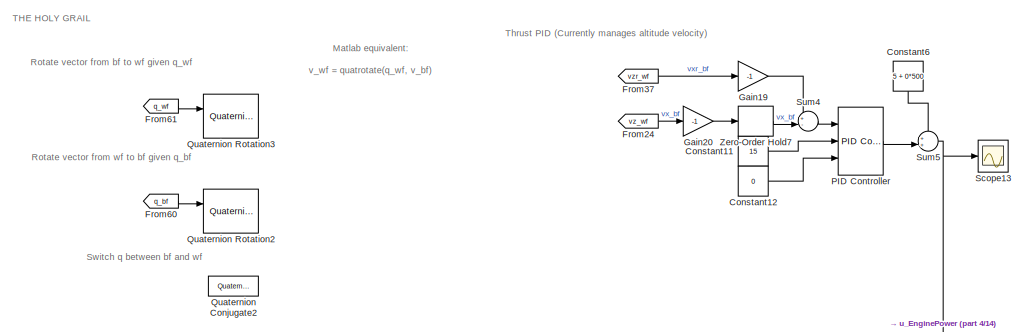
[diagram: root canvas - part 1/14, top right region]
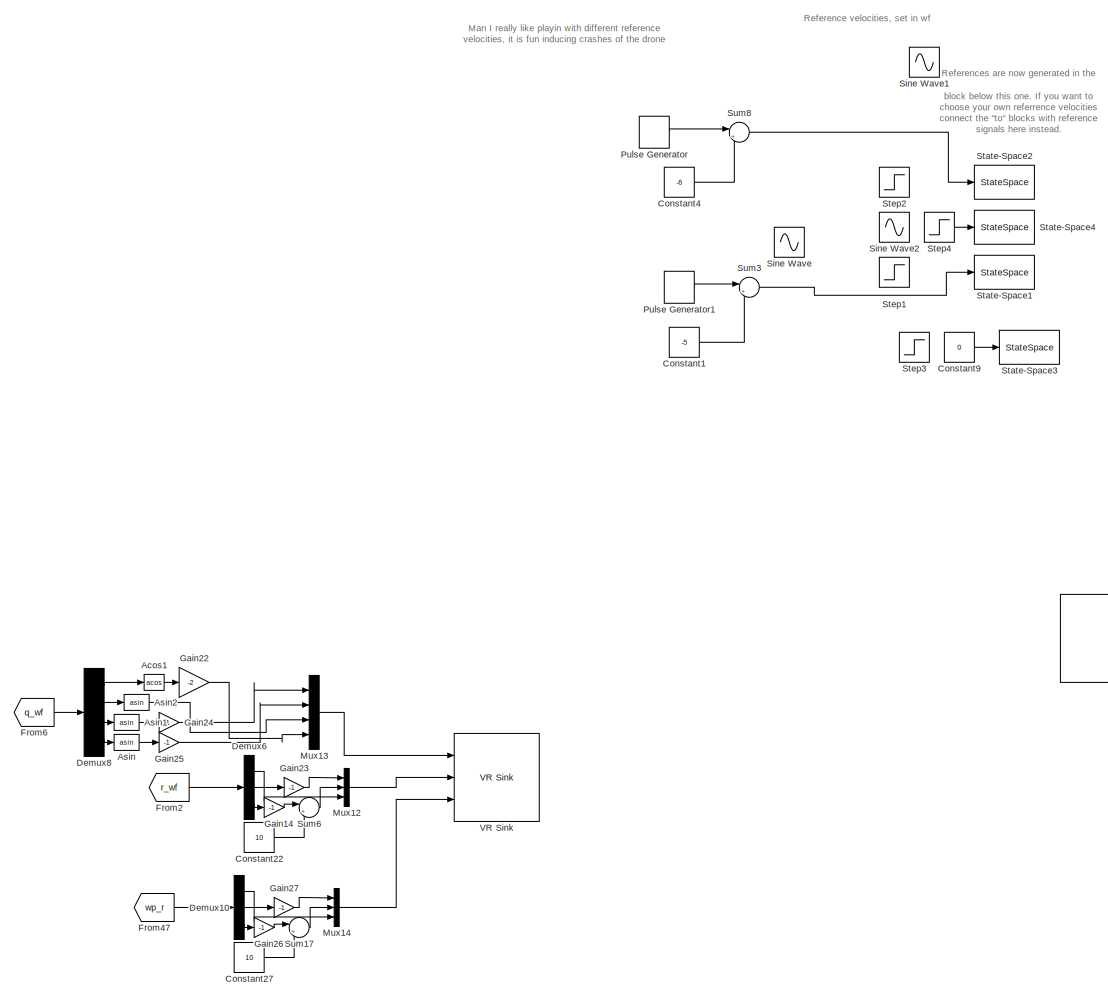
[diagram: root canvas - part 2/14, top center region]
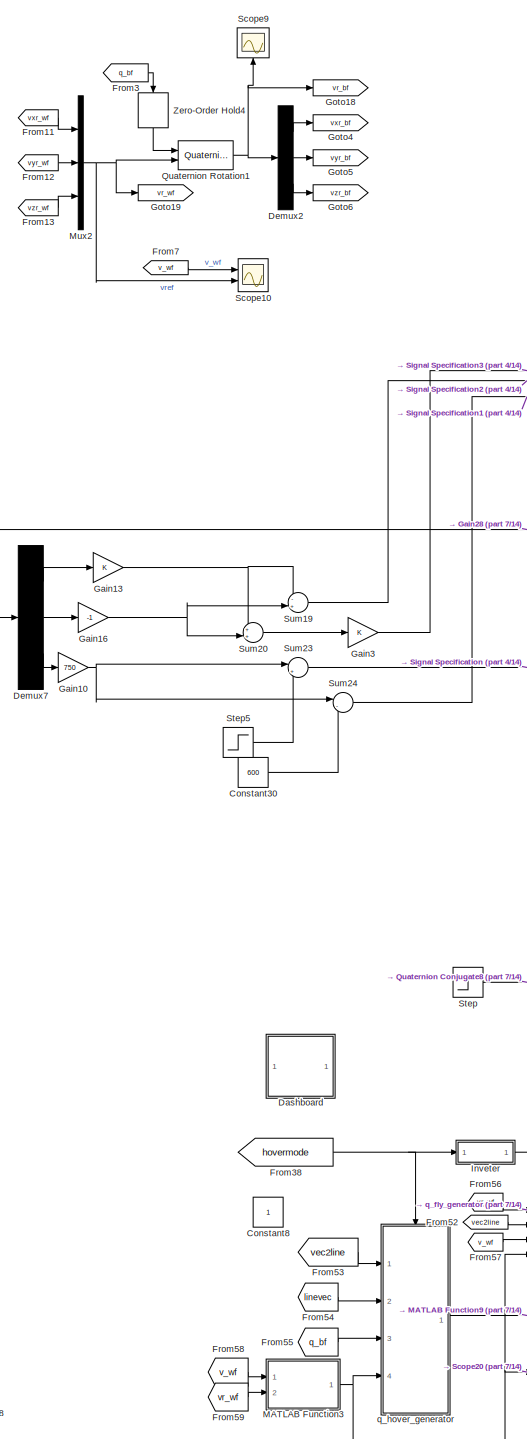
[diagram: root canvas - part 3/14, middle right region]
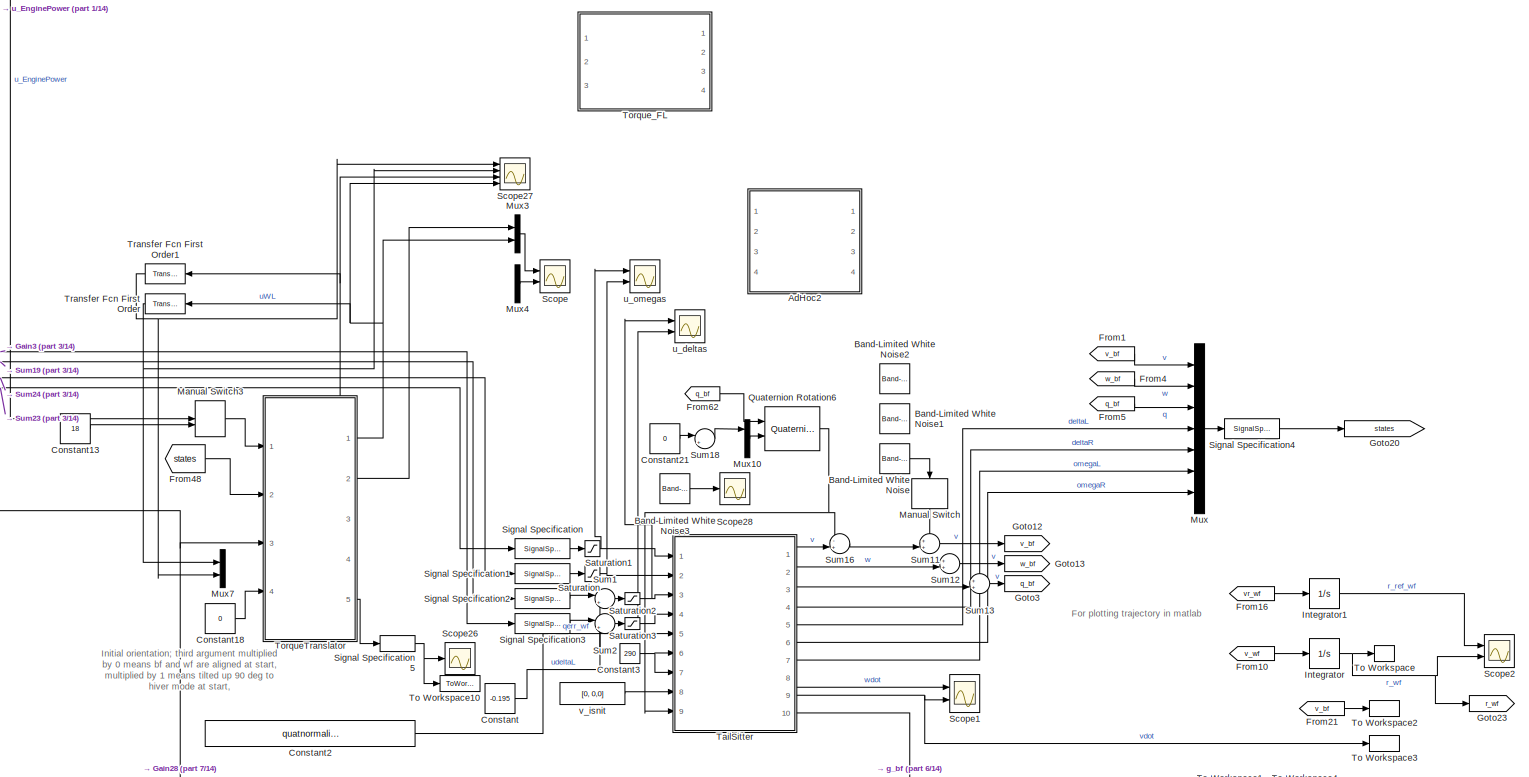
[diagram: root canvas - part 4/14, top right region]
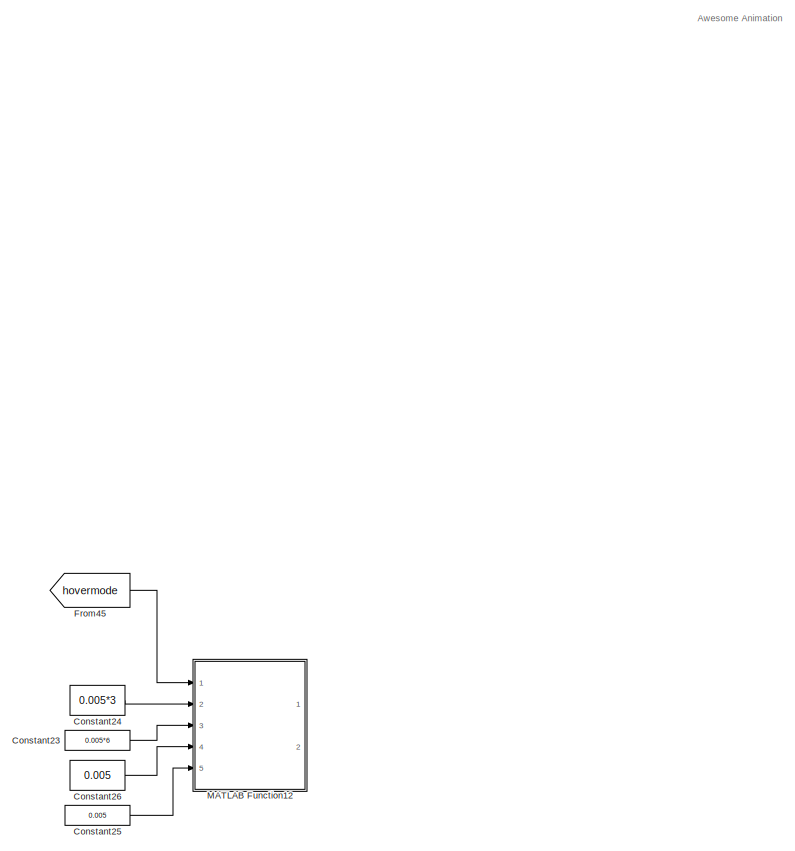
[diagram: root canvas - part 5/14, central region]
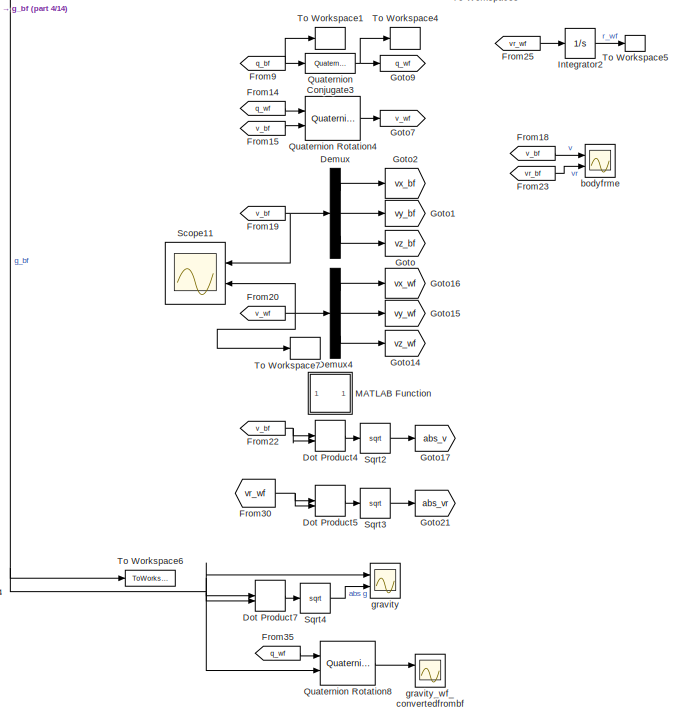
[diagram: root canvas - part 6/14, middle right region]
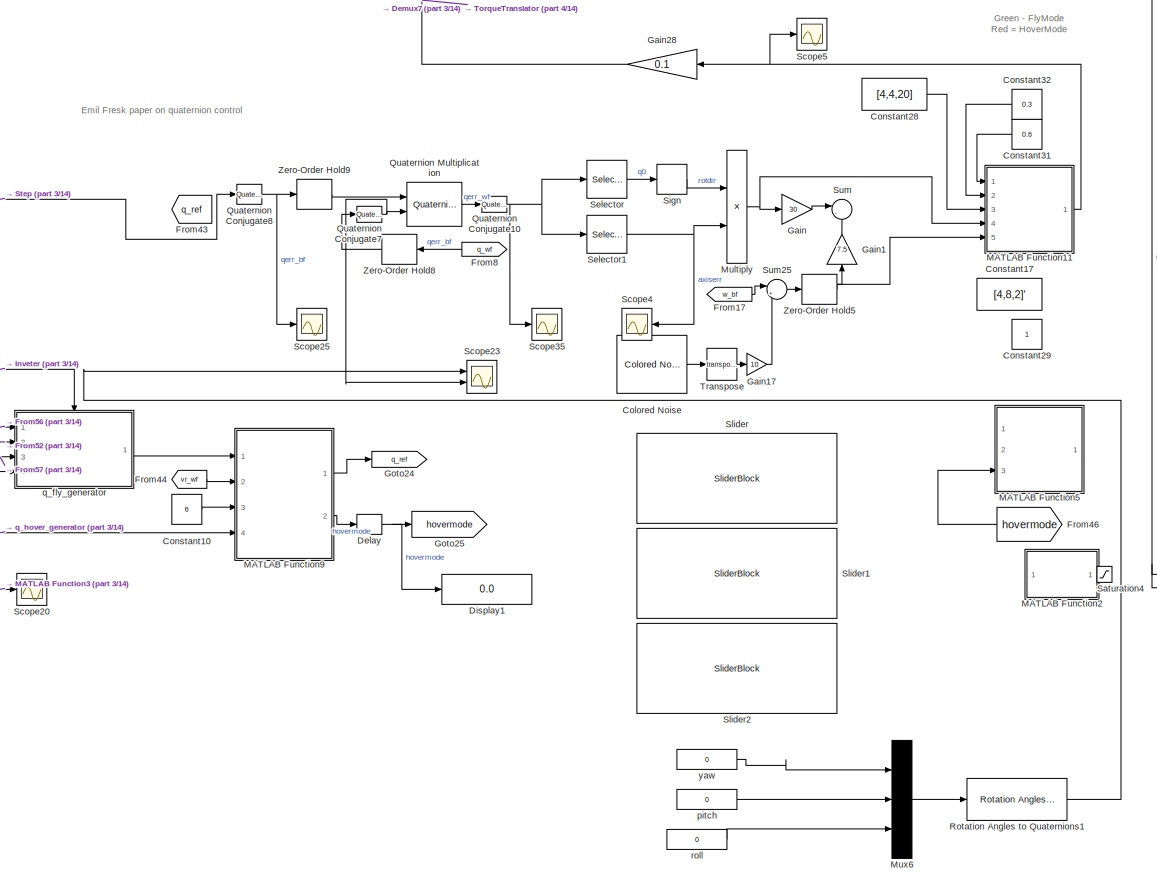
[diagram: root canvas - part 7/14, middle right region]
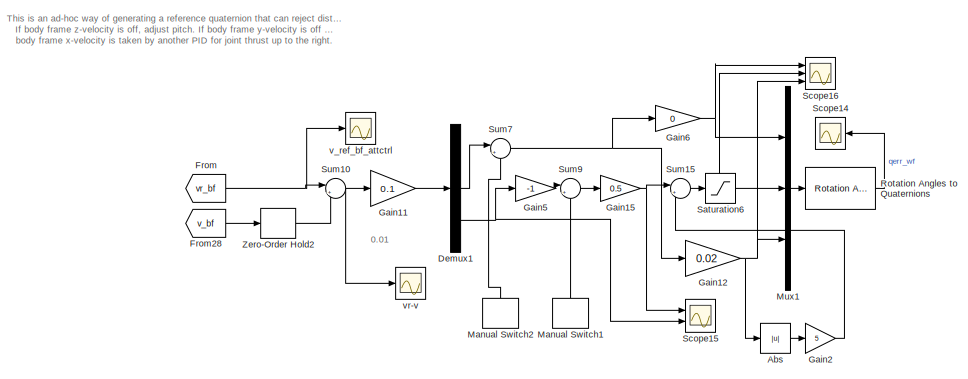
[diagram: root canvas - part 8/14, middle left region]
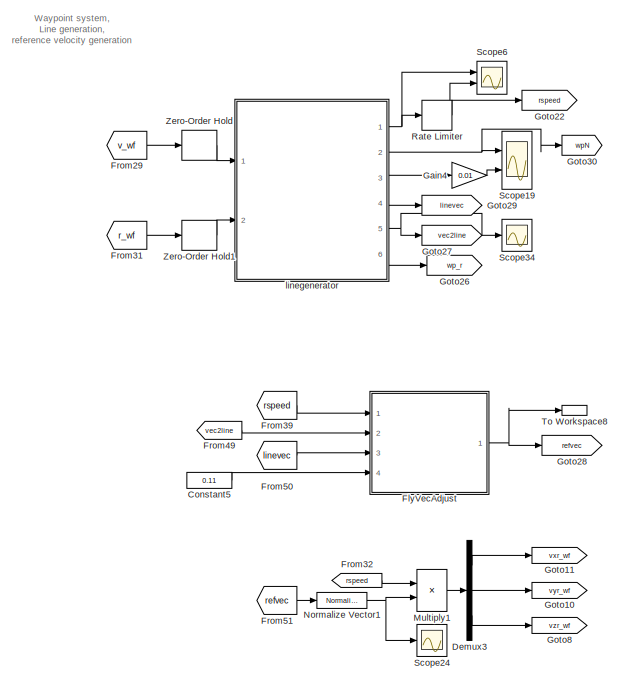
[diagram: root canvas - part 9/14, central region]
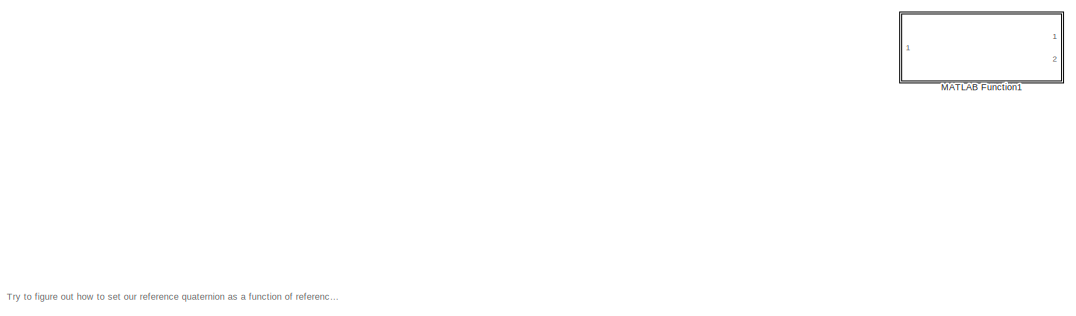
[diagram: root canvas - part 10/14, middle left region]
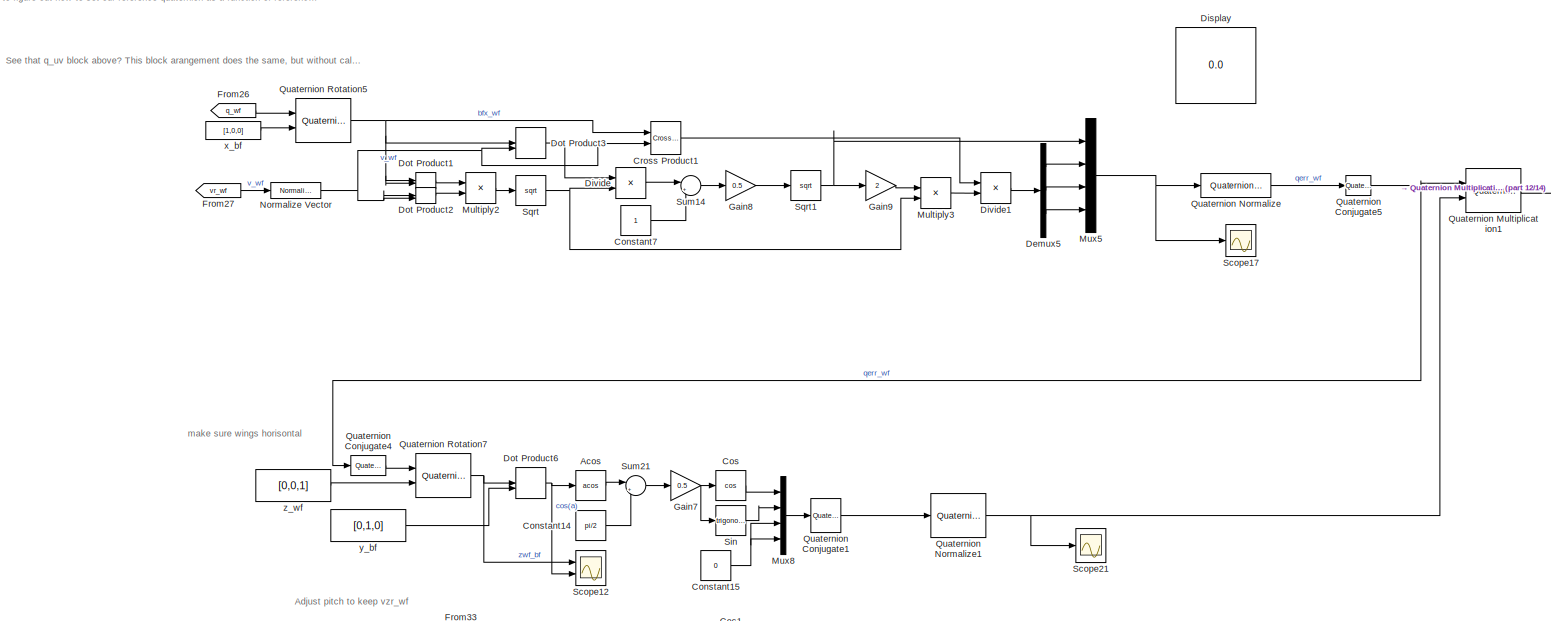
[diagram: root canvas - part 11/14, bottom left region]
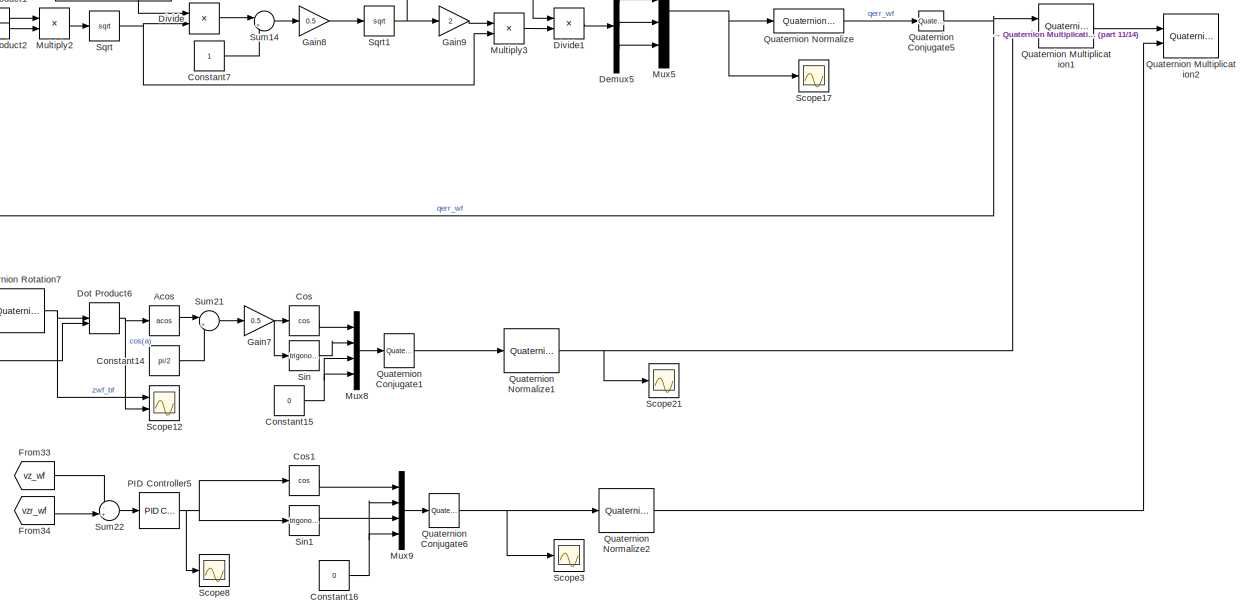
[diagram: root canvas - part 12/14, bottom left region]
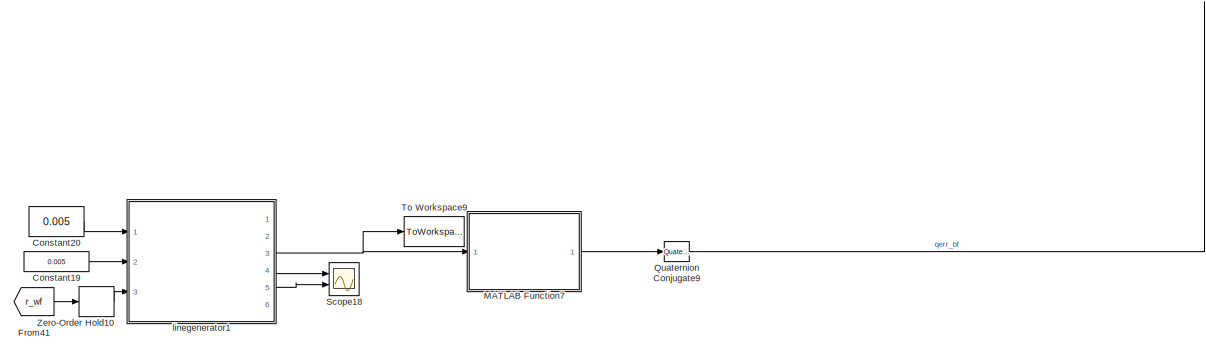
[diagram: root canvas - part 13/14, bottom left region]
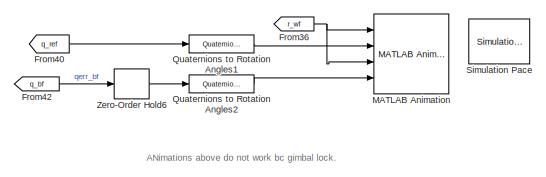
[diagram: root canvas - part 14/14, bottom left region]
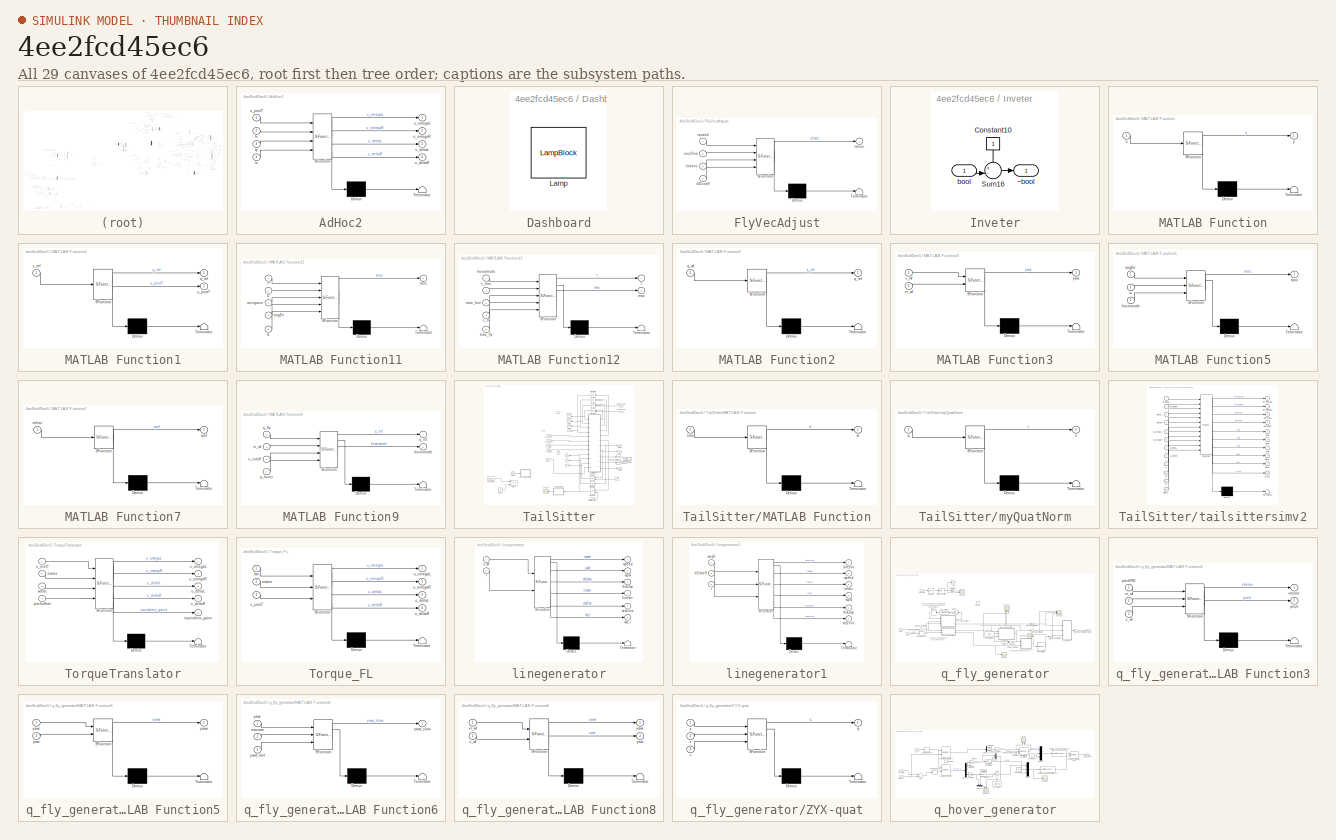
[diagram: thumbnail index - all 29 canvases of the model, root first then tree order]
MODEL slx_4ee2fcd45ec6
KIND model
CONFIG AbsTol = auto
CONFIG EnableMultiTasking = off
CONFIG FixedStep = auto
CONFIG MaxStep = auto
CONFIG MinStep = auto
CONFIG RelTol = 1e-3
CONFIG SampleTimeConstraint = Unconstrained
CONFIG Solver = VariableStepAuto
CONFIG SolverName = VariableStepAuto
CONFIG StartTime = 0.0
CONFIG StopTime = 30
BLOCK [Abs] Abs
  Commented = on
  SaturateOnIntegerOverflow = off
BLOCK [Trigonometry] Acos
  Commented = on
  Operator = acos
  Ports = [1, 1]
BLOCK [Trigonometry] Acos1
  Operator = acos
  Ports = [1, 1]
BLOCK [SubSystem] AdHoc2
  Commented = on
  ErrorFcn = Stateflow.Translate.translate
  PermitHierarchicalResolution = ExplicitOnly
  Ports = [4, 4]
  RequestExecContextInheritance = off
  SFBlockType = MATLAB Function
  TreatAsAtomicUnit = on
BLOCK [Demux] AdHoc2/ Demux 
  Outputs = 1
  Ports = [1, 1]
BLOCK [S-Function] AdHoc2/ SFunction 
  EnableBusSupport = on
  FunctionName = sf_sfun
  PortCounts = [4 5]
  Ports = [4, 5]
  SFcnIsStateOwnerBlock = off
  SFunctionDeploymentMode = off
  Tag = Stateflow S-Function 21
BLOCK [Terminator] AdHoc2/ Terminator 
BLOCK [Inport] AdHoc2/tx
  IconDisplay = Port number
  Port = 2
BLOCK [Inport] AdHoc2/ty
  IconDisplay = Port number
  Port = 3
BLOCK [Inport] AdHoc2/tz
  IconDisplay = Port number
  Port = 4
BLOCK [Outport] AdHoc2/u_deltaL
  IconDisplay = Port number
  Port = 3
  VectorParamsAs1DForOutWhenUnconnected = off
BLOCK [Outport] AdHoc2/u_deltaR
  IconDisplay = Port number
  Port = 4
  VectorParamsAs1DForOutWhenUnconnected = off
BLOCK [Inport] AdHoc2/u_jointT
  IconDisplay = Port number
BLOCK [Outport] AdHoc2/u_omegaL
  IconDisplay = Port number
  VectorParamsAs1DForOutWhenUnconnected = off
BLOCK [Outport] AdHoc2/u_omegaR
  IconDisplay = Port number
  Port = 2
  VectorParamsAs1DForOutWhenUnconnected = off
BLOCK [Trigonometry] Asin
  Operator = asin
  Ports = [1, 1]
BLOCK [Trigonometry] Asin1
  Operator = asin
  Ports = [1, 1]
BLOCK [Trigonometry] Asin2
  Operator = asin
  Ports = [1, 1]
BLOCK [Reference] Band-Limited White Noise  REF=simulink/Sources/Band-Limited
White Noise
  Commented = on
  Ports = [0, 1]
  SourceBlock = simulink/Sources/Band-Limited\nWhite Noise
  SourceProductBaseCode = SL
  SourceProductName = Simulink
  SourceType = Band-Limited White Noise.
BLOCK [Reference] Band-Limited White Noise1  REF=simulink/Sources/Band-Limited
White Noise
  Commented = on
  Ports = [0, 1]
  SourceBlock = simulink/Sources/Band-Limited\nWhite Noise
  SourceProductBaseCode = SL
  SourceProductName = Simulink
  SourceType = Band-Limited White Noise.
BLOCK [Reference] Band-Limited White Noise2  REF=simulink/Sources/Band-Limited
White Noise
  Commented = on
  Ports = [0, 1]
  SourceBlock = simulink/Sources/Band-Limited\nWhite Noise
  SourceProductBaseCode = SL
  SourceProductName = Simulink
  SourceType = Band-Limited White Noise.
BLOCK [Reference] Band-Limited White Noise3  REF=simulink/Sources/Band-Limited
White Noise
  Ports = [0, 1]
  SourceBlock = simulink/Sources/Band-Limited\nWhite Noise
  SourceProductBaseCode = SL
  SourceProductName = Simulink
  SourceType = Band-Limited White Noise.
BLOCK [Reference] Colored Noise  REF=dspsrcs4/Colored Noise
  Ports = [0, 1]
  SourceBlock = dspsrcs4/Colored Noise
  SourceProductBaseCode = DS
  SourceProductName = DSP System Toolbox
  SourceType = dsp.simulink.ColoredNoise
BLOCK [Constant] Constant
  Commented = on
  Value = -0.195
BLOCK [Constant] Constant1
  Commented = on
  Value = -5
BLOCK [Constant] Constant10
  Value = 6
BLOCK [Constant] Constant11
  Value = 15
BLOCK [Constant] Constant12
  Value = 0
BLOCK [Constant] Constant13
  SampleTime = p.Ts
  Value = 18
BLOCK [Constant] Constant14
  Commented = on
  Value = pi/2
BLOCK [Constant] Constant15
  Commented = on
  Value = 0
BLOCK [Constant] Constant16
  Commented = on
  Value = 0
BLOCK [Constant] Constant17
  Value = [4,8,2]'
BLOCK [Constant] Constant18
  Value = 0
BLOCK [Constant] Constant19
  Commented = on
  SampleTime = p.Ts
  Value = 0.005
BLOCK [Constant] Constant2
  Value = quatnormalize([cosd(60/2),0, 1*sind(60/2),0])
  VectorParams1D = off
BLOCK [Constant] Constant20
  Commented = on
  SampleTime = p.Ts
  Value = 0.005
BLOCK [Constant] Constant21
  Value = 0
BLOCK [Constant] Constant22
  Value = 10
BLOCK [Constant] Constant23
  Commented = on
  SampleTime = p.Ts
  Value = 0.005*6
BLOCK [Constant] Constant24
  Commented = on
  SampleTime = p.Ts
  Value = 0.005*3
BLOCK [Constant] Constant25
  Commented = on
  SampleTime = p.Ts
  Value = 0.005
BLOCK [Constant] Constant26
  Commented = on
  SampleTime = p.Ts
  Value = 0.005
BLOCK [Constant] Constant27
  Value = 10
BLOCK [Constant] Constant28
  Value = [4,4,20]
  VectorParams1D = off
BLOCK [Constant] Constant29
BLOCK [Constant] Constant3
  Value = 290
BLOCK [Constant] Constant30
  SampleTime = p.Ts
  Value = 600
BLOCK [Constant] Constant31
  Value = 0.6
BLOCK [Constant] Constant32
  Value = 0.3
BLOCK [Constant] Constant4
  Commented = on
  Value = -6
BLOCK [Constant] Constant5
  SampleTime = p.Ts
  Value = 0.11
BLOCK [Constant] Constant6
  Commented = on
  Value = 5 + 0*500
BLOCK [Constant] Constant7
  Commented = on
BLOCK [Constant] Constant8
BLOCK [Constant] Constant9
  Commented = on
  Value = 0
BLOCK [Trigonometry] Cos
  Commented = on
  Operator = cos
  Ports = [1, 1]
BLOCK [Trigonometry] Cos1
  Commented = on
  Operator = cos
  Ports = [1, 1]
BLOCK [Reference] Cross Product1  REF=vrlib/Utilities/Cross Product
  Commented = on
  Ports = [2, 1]
  SourceBlock = vrlib/Utilities/Cross Product
  SourceProductBaseCode = VR
  SourceProductName = Simulink 3D Animation
  SourceType = Cross Product
BLOCK [SubSystem] Dashboard
  Ports = []
  RequestExecContextInheritance = off
BLOCK [LampBlock] Dashboard/Lamp
BLOCK [Delay] Delay
  DelayLength = 1
  InputPortMap = u0
  Ports = [1, 1]
BLOCK [Demux] Demux
  DisplayOption = bar
  Outputs = 3
  Ports = [1, 3]
BLOCK [Demux] Demux1
  Commented = on
  DisplayOption = bar
  Outputs = 3
  Ports = [1, 3]
BLOCK [Demux] Demux10
  DisplayOption = bar
  Outputs = 3
  Ports = [1, 3]
BLOCK [Demux] Demux2
  DisplayOption = bar
  Outputs = 3
  Ports = [1, 3]
BLOCK [Demux] Demux3
  DisplayOption = bar
  Outputs = 3
  Ports = [1, 3]
BLOCK [Demux] Demux4
  DisplayOption = bar
  Outputs = 3
  Ports = [1, 3]
BLOCK [Demux] Demux5
  Commented = on
  DisplayOption = bar
  Outputs = 3
  Ports = [1, 3]
BLOCK [Demux] Demux6
  DisplayOption = bar
  Outputs = 3
  Ports = [1, 3]
BLOCK [Demux] Demux7
  DisplayOption = bar
  Outputs = 3
  Ports = [1, 3]
BLOCK [Demux] Demux8
  DisplayOption = bar
  Ports = [1, 4]
BLOCK [Display] Display
  Commented = on
  Decimation = 1
  Ports = [1]
BLOCK [Display] Display1
  Decimation = 1
  Ports = [1]
BLOCK [Product] Divide
  Commented = on
  InputSameDT = off
  Inputs = */
  OutDataTypeStr = Inherit: Inherit via internal rule
  Ports = [2, 1]
  RndMeth = Floor
  SaturateOnIntegerOverflow = off
BLOCK [Product] Divide1
  Commented = on
  InputSameDT = off
  Inputs = */
  OutDataTypeStr = Inherit: Inherit via internal rule
  Ports = [2, 1]
  RndMeth = Floor
  SaturateOnIntegerOverflow = off
BLOCK [DotProduct] Dot Product1
  Commented = on
  OutDataTypeStr = Inherit: Inherit via internal rule
BLOCK [DotProduct] Dot Product2
  Commented = on
  OutDataTypeStr = Inherit: Inherit via internal rule
BLOCK [DotProduct] Dot Product3
  Commented = on
  OutDataTypeStr = Inherit: Inherit via internal rule
BLOCK [DotProduct] Dot Product4
  OutDataTypeStr = Inherit: Inherit via internal rule
BLOCK [DotProduct] Dot Product5
  OutDataTypeStr = Inherit: Inherit via internal rule
BLOCK [DotProduct] Dot Product6
  Commented = on
  OutDataTypeStr = Inherit: Inherit via internal rule
BLOCK [DotProduct] Dot Product7
  OutDataTypeStr = Inherit: Inherit via internal rule
BLOCK [SubSystem] FlyVecAdjust
  ErrorFcn = Stateflow.Translate.translate
  PermitHierarchicalResolution = ExplicitOnly
  Ports = [4, 1]
  RequestExecContextInheritance = off
  SFBlockType = MATLAB Function
  TreatAsAtomicUnit = on
BLOCK [Demux] FlyVecAdjust/ Demux 
  Outputs = 1
  Ports = [1, 1]
BLOCK [S-Function] FlyVecAdjust/ SFunction 
  EnableBusSupport = on
  FunctionName = sf_sfun
  PortCounts = [4 2]
  Ports = [4, 2]
  SFcnIsStateOwnerBlock = off
  SFunctionDeploymentMode = off
  Tag = Stateflow S-Function 18
BLOCK [Terminator] FlyVecAdjust/ Terminator 
BLOCK [Inport] FlyVecAdjust/d2lcoeff
  IconDisplay = Port number
  Port = 4
BLOCK [Inport] FlyVecAdjust/linevec
  IconDisplay = Port number
  Port = 3
BLOCK [Outport] FlyVecAdjust/refvec
  IconDisplay = Port number
  VectorParamsAs1DForOutWhenUnconnected = off
BLOCK [Inport] FlyVecAdjust/rspeed
  IconDisplay = Port number
BLOCK [Inport] FlyVecAdjust/vec2line
  IconDisplay = Port number
  Port = 2
BLOCK [From] From
  Commented = on
  GotoTag = vr_bf
BLOCK [From] From1
  GotoTag = v_bf
BLOCK [From] From10
  GotoTag = v_wf
BLOCK [From] From11
  GotoTag = vxr_wf
BLOCK [From] From12
  GotoTag = vyr_wf
BLOCK [From] From13
  GotoTag = vzr_wf
BLOCK [From] From14
  GotoTag = q_wf
BLOCK [From] From15
  GotoTag = v_bf
BLOCK [From] From16
  GotoTag = vr_wf
BLOCK [From] From17
  GotoTag = w_bf
BLOCK [From] From18
  GotoTag = v_bf
BLOCK [From] From19
  GotoTag = v_bf
BLOCK [From] From2
  GotoTag = r_wf
BLOCK [From] From20
  GotoTag = v_wf
BLOCK [From] From21
  GotoTag = v_bf
BLOCK [From] From22
  GotoTag = v_bf
BLOCK [From] From23
  GotoTag = vr_bf
BLOCK [From] From24
  GotoTag = vz_wf
BLOCK [From] From25
  GotoTag = vr_wf
BLOCK [From] From26
  Commented = on
  GotoTag = q_wf
BLOCK [From] From27
  Commented = on
  GotoTag = vr_wf
BLOCK [From] From28
  Commented = on
  GotoTag = v_bf
BLOCK [From] From29
  GotoTag = v_wf
BLOCK [From] From3
  GotoTag = q_bf
BLOCK [From] From30
  GotoTag = vr_wf
BLOCK [From] From31
  GotoTag = r_wf
BLOCK [From] From32
  GotoTag = rspeed
BLOCK [From] From33
  Commented = on
  GotoTag = vz_wf
BLOCK [From] From34
  Commented = on
  GotoTag = vzr_wf
BLOCK [From] From35
  GotoTag = q_wf
BLOCK [From] From36
  Commented = on
  GotoTag = r_wf
BLOCK [From] From37
  GotoTag = vzr_wf
BLOCK [From] From38
  GotoTag = hovermode
BLOCK [From] From39
  GotoTag = rspeed
BLOCK [From] From4
  GotoTag = w_bf
BLOCK [From] From40
  Commented = on
  GotoTag = q_ref
BLOCK [From] From41
  Commented = on
  GotoTag = r_wf
BLOCK [From] From42
  Commented = on
  GotoTag = q_bf
BLOCK [From] From43
  GotoTag = q_ref
BLOCK [From] From44
  GotoTag = vr_wf
BLOCK [From] From45
  Commented = on
  GotoTag = hovermode
BLOCK [From] From46
  Commented = on
  GotoTag = hovermode
BLOCK [From] From47
  GotoTag = wp_r
BLOCK [From] From48
  GotoTag = states
BLOCK [From] From49
  GotoTag = vec2line
BLOCK [From] From5
  GotoTag = q_bf
BLOCK [From] From50
  GotoTag = linevec
BLOCK [From] From51
  GotoTag = refvec
BLOCK [From] From52
  GotoTag = vec2line
BLOCK [From] From53
  GotoTag = vec2line
BLOCK [From] From54
  GotoTag = linevec
BLOCK [From] From55
  GotoTag = q_bf
BLOCK [From] From56
  GotoTag = vr_wf
BLOCK [From] From57
  GotoTag = v_wf
BLOCK [From] From58
  GotoTag = v_wf
BLOCK [From] From59
  GotoTag = vr_wf
BLOCK [From] From6
  GotoTag = q_wf
BLOCK [From] From60
  Commented = on
  GotoTag = q_bf
BLOCK [From] From61
  Commented = on
  GotoTag = q_wf
BLOCK [From] From62
  GotoTag = q_bf
BLOCK [From] From7
  GotoTag = v_wf
BLOCK [From] From8
  GotoTag = q_wf
BLOCK [From] From9
  GotoTag = q_bf
BLOCK [Gain] Gain
  Commented = on
  Gain = 30
  OutDataTypeStr = Inherit: Inherit via internal rule
  ParamDataTypeStr = Inherit: Inherit via internal rule
  SaturateOnIntegerOverflow = off
BLOCK [Gain] Gain1
  Commented = on
  Gain = 7.5
  OutDataTypeStr = Inherit: Inherit via internal rule
  ParamDataTypeStr = Inherit: Inherit via internal rule
  SaturateOnIntegerOverflow = off
BLOCK [Gain] Gain10
  Gain = 750
  OutDataTypeStr = Inherit: Inherit via internal rule
  ParamDataTypeStr = Inherit: Inherit via internal rule
  SaturateOnIntegerOverflow = off
BLOCK [Gain] Gain11
  Commented = on
  Gain = 0.1
  OutDataTypeStr = Inherit: Inherit via internal rule
  ParamDataTypeStr = Inherit: Inherit via internal rule
  SaturateOnIntegerOverflow = off
BLOCK [Gain] Gain12
  Commented = on
  Gain = 0.02
  OutDataTypeStr = Inherit: Inherit via internal rule
  ParamDataTypeStr = Inherit: Inherit via internal rule
  SaturateOnIntegerOverflow = off
BLOCK [Gain] Gain13
  OutDataTypeStr = Inherit: Inherit via internal rule
  ParamDataTypeStr = Inherit: Inherit via internal rule
  SaturateOnIntegerOverflow = off
BLOCK [Gain] Gain14
  Gain = -1
  OutDataTypeStr = Inherit: Inherit via internal rule
  ParamDataTypeStr = Inherit: Inherit via internal rule
  SaturateOnIntegerOverflow = off
BLOCK [Gain] Gain15
  Commented = on
  Gain = 0.5
  OutDataTypeStr = Inherit: Inherit via internal rule
  ParamDataTypeStr = Inherit: Inherit via internal rule
  SaturateOnIntegerOverflow = off
BLOCK [Gain] Gain16
  Gain = -1
  OutDataTypeStr = Inherit: Inherit via internal rule
  ParamDataTypeStr = Inherit: Inherit via internal rule
  SaturateOnIntegerOverflow = off
BLOCK [Gain] Gain17
  Gain = 10
  OutDataTypeStr = Inherit: Inherit via internal rule
  ParamDataTypeStr = Inherit: Inherit via internal rule
  SaturateOnIntegerOverflow = off
BLOCK [Gain] Gain19
  Gain = -1
  OutDataTypeStr = Inherit: Inherit via internal rule
  ParamDataTypeStr = Inherit: Inherit via internal rule
  SaturateOnIntegerOverflow = off
BLOCK [Gain] Gain2
  Commented = on
  Gain = 5
  OutDataTypeStr = Inherit: Inherit via internal rule
  ParamDataTypeStr = Inherit: Inherit via internal rule
  SaturateOnIntegerOverflow = off
BLOCK [Gain] Gain20
  Gain = -1
  OutDataTypeStr = Inherit: Inherit via internal rule
  ParamDataTypeStr = Inherit: Inherit via internal rule
  SaturateOnIntegerOverflow = off
BLOCK [Gain] Gain22
  Gain = -2
  OutDataTypeStr = Inherit: Inherit via internal rule
  ParamDataTypeStr = Inherit: Inherit via internal rule
  SaturateOnIntegerOverflow = off
BLOCK [Gain] Gain23
  Gain = -1
  OutDataTypeStr = Inherit: Inherit via internal rule
  ParamDataTypeStr = Inherit: Inherit via internal rule
  SaturateOnIntegerOverflow = off
BLOCK [Gain] Gain24
  Gain = -1
  OutDataTypeStr = Inherit: Inherit via internal rule
  ParamDataTypeStr = Inherit: Inherit via internal rule
  SaturateOnIntegerOverflow = off
BLOCK [Gain] Gain25
  Gain = -1
  OutDataTypeStr = Inherit: Inherit via internal rule
  ParamDataTypeStr = Inherit: Inherit via internal rule
  SaturateOnIntegerOverflow = off
BLOCK [Gain] Gain26
  Gain = -1
  OutDataTypeStr = Inherit: Inherit via internal rule
  ParamDataTypeStr = Inherit: Inherit via internal rule
  SaturateOnIntegerOverflow = off
BLOCK [Gain] Gain27
  Gain = -1
  OutDataTypeStr = Inherit: Inherit via internal rule
  ParamDataTypeStr = Inherit: Inherit via internal rule
  SaturateOnIntegerOverflow = off
BLOCK [Gain] Gain28
  Gain = 0.1
  OutDataTypeStr = Inherit: Inherit via internal rule
  ParamDataTypeStr = Inherit: Inherit via internal rule
  SaturateOnIntegerOverflow = off
BLOCK [Gain] Gain3
  OutDataTypeStr = Inherit: Inherit via internal rule
  ParamDataTypeStr = Inherit: Inherit via internal rule
  SaturateOnIntegerOverflow = off
BLOCK [Gain] Gain4
  Gain = 0.01
  OutDataTypeStr = Inherit: Inherit via internal rule
  ParamDataTypeStr = Inherit: Inherit via internal rule
  SaturateOnIntegerOverflow = off
BLOCK [Gain] Gain5
  Commented = on
  Gain = -1
  OutDataTypeStr = Inherit: Inherit via internal rule
  ParamDataTypeStr = Inherit: Inherit via internal rule
  SaturateOnIntegerOverflow = off
BLOCK [Gain] Gain6
  Commented = on
  Gain = 0
  OutDataTypeStr = Inherit: Inherit via internal rule
  ParamDataTypeStr = Inherit: Inherit via internal rule
  SaturateOnIntegerOverflow = off
BLOCK [Gain] Gain7
  Commented = on
  Gain = 0.5
  OutDataTypeStr = Inherit: Inherit via internal rule
  ParamDataTypeStr = Inherit: Inherit via internal rule
  SaturateOnIntegerOverflow = off
BLOCK [Gain] Gain8
  Commented = on
  Gain = 0.5
  OutDataTypeStr = Inherit: Inherit via internal rule
  ParamDataTypeStr = Inherit: Inherit via internal rule
  SaturateOnIntegerOverflow = off
BLOCK [Gain] Gain9
  Commented = on
  Gain = 2
  OutDataTypeStr = Inherit: Inherit via internal rule
  ParamDataTypeStr = Inherit: Inherit via internal rule
  SaturateOnIntegerOverflow = off
BLOCK [Goto] Goto
  GotoTag = vz_bf
BLOCK [Goto] Goto1
  GotoTag = vy_bf
BLOCK [Goto] Goto10
  GotoTag = vyr_wf
BLOCK [Goto] Goto11
  GotoTag = vxr_wf
BLOCK [Goto] Goto12
  GotoTag = v_bf
BLOCK [Goto] Goto13
  GotoTag = w_bf
BLOCK [Goto] Goto14
  GotoTag = vz_wf
BLOCK [Goto] Goto15
  GotoTag = vy_wf
BLOCK [Goto] Goto16
  GotoTag = vx_wf
BLOCK [Goto] Goto17
  GotoTag = abs_v
BLOCK [Goto] Goto18
  GotoTag = vr_bf
BLOCK [Goto] Goto19
  GotoTag = vr_wf
BLOCK [Goto] Goto2
  GotoTag = vx_bf
BLOCK [Goto] Goto20
  GotoTag = states
BLOCK [Goto] Goto21
  GotoTag = abs_vr
BLOCK [Goto] Goto22
  GotoTag = rspeed
BLOCK [Goto] Goto23
  GotoTag = r_wf
BLOCK [Goto] Goto24
  GotoTag = q_ref
BLOCK [Goto] Goto25
  GotoTag = hovermode
BLOCK [Goto] Goto26
  GotoTag = wp_r
BLOCK [Goto] Goto27
  GotoTag = vec2line
BLOCK [Goto] Goto28
  GotoTag = refvec
BLOCK [Goto] Goto29
  GotoTag = linevec
BLOCK [Goto] Goto3
  GotoTag = q_bf
BLOCK [Goto] Goto30
  GotoTag = wpN
BLOCK [Goto] Goto4
  GotoTag = vxr_bf
BLOCK [Goto] Goto5
  GotoTag = vyr_bf
BLOCK [Goto] Goto6
  GotoTag = vzr_bf
BLOCK [Goto] Goto7
  GotoTag = v_wf
BLOCK [Goto] Goto8
  GotoTag = vzr_wf
BLOCK [Goto] Goto9
  GotoTag = q_wf
BLOCK [Integrator] Integrator
  Ports = [1, 1]
BLOCK [Integrator] Integrator1
  Ports = [1, 1]
BLOCK [Integrator] Integrator2
  Ports = [1, 1]
BLOCK [SubSystem] Inveter
  Ports = [1, 1]
  RequestExecContextInheritance = off
BLOCK [Constant] Inveter/Constant10
BLOCK [Sum] Inveter/Sum16
  IconShape = round
  InputSameDT = off
  Inputs = +-|
  OutDataTypeStr = Inherit: Inherit via internal rule
  Ports = [2, 1]
  SaturateOnIntegerOverflow = off
BLOCK [Inport] Inveter/bool
  IconDisplay = Port number
BLOCK [Outport] Inveter/~bool
  IconDisplay = Port number
  VectorParamsAs1DForOutWhenUnconnected = off
BLOCK [Reference] MATLAB Animation  REF=aerolibanim/MATLAB
Animation
  Commented = on
  Ports = [4]
  SourceBlock = aerolibanim/MATLAB\nAnimation
  SourceProductBaseCode = AE
  SourceProductName = Aerospace Blockset
  SourceType = AeroMATLABAnimation
  Tag = Matlab Animation 6 DOF
BLOCK [SubSystem] MATLAB Function
  Commented = on
  ErrorFcn = Stateflow.Translate.translate
  PermitHierarchicalResolution = ExplicitOnly
  Ports = [1, 1]
  RequestExecContextInheritance = off
  SFBlockType = MATLAB Function
  TreatAsAtomicUnit = on
BLOCK [Demux] MATLAB Function/ Demux 
  Outputs = 1
  Ports = [1, 1]
BLOCK [S-Function] MATLAB Function/ SFunction 
  EnableBusSupport = on
  FunctionName = sf_sfun
  PortCounts = [1 2]
  Ports = [1, 2]
  SFcnIsStateOwnerBlock = off
  SFunctionDeploymentMode = off
  Tag = Stateflow S-Function 4
BLOCK [Terminator] MATLAB Function/ Terminator 
BLOCK [Inport] MATLAB Function/u
  IconDisplay = Port number
BLOCK [Outport] MATLAB Function/y
  IconDisplay = Port number
  VectorParamsAs1DForOutWhenUnconnected = off
BLOCK [SubSystem] MATLAB Function1
  Commented = on
  ErrorFcn = Stateflow.Translate.translate
  PermitHierarchicalResolution = ExplicitOnly
  Ports = [1, 2]
  RequestExecContextInheritance = off
  SFBlockType = MATLAB Function
  TreatAsAtomicUnit = on
BLOCK [Demux] MATLAB Function1/ Demux 
  Outputs = 1
  Ports = [1, 1]
BLOCK [S-Function] MATLAB Function1/ SFunction 
  EnableBusSupport = on
  FunctionName = sf_sfun
  PortCounts = [1 3]
  Ports = [1, 3]
  SFcnIsStateOwnerBlock = off
  SFunctionDeploymentMode = off
  Tag = Stateflow S-Function 7
BLOCK [Terminator] MATLAB Function1/ Terminator 
BLOCK [Outport] MATLAB Function1/q_ref
  IconDisplay = Port number
  VectorParamsAs1DForOutWhenUnconnected = off
BLOCK [Outport] MATLAB Function1/u_jointT
  IconDisplay = Port number
  Port = 2
  VectorParamsAs1DForOutWhenUnconnected = off
BLOCK [Inport] MATLAB Function1/v_ref
  IconDisplay = Port number
BLOCK [SubSystem] MATLAB Function11
  ErrorFcn = Stateflow.Translate.translate
  PermitHierarchicalResolution = ExplicitOnly
  Ports = [5, 1]
  RequestExecContextInheritance = off
  SFBlockType = MATLAB Function
  TreatAsAtomicUnit = on
BLOCK [Demux] MATLAB Function11/ Demux 
  Outputs = 1
  Ports = [1, 1]
BLOCK [S-Function] MATLAB Function11/ SFunction 
  EnableBusSupport = on
  FunctionName = sf_sfun
  PortCounts = [5 2]
  Ports = [5, 2]
  SFcnIsStateOwnerBlock = off
  SFunctionDeploymentMode = off
  Tag = Stateflow S-Function 19
BLOCK [Terminator] MATLAB Function11/ Terminator 
BLOCK [Inport] MATLAB Function11/D
  IconDisplay = Port number
  Port = 2
BLOCK [Inport] MATLAB Function11/P
  IconDisplay = Port number
BLOCK [Inport] MATLAB Function11/angErr
  IconDisplay = Port number
  Port = 4
BLOCK [Inport] MATLAB Function11/axisgains
  IconDisplay = Port number
  Port = 3
BLOCK [Outport] MATLAB Function11/taos
  IconDisplay = Port number
  VectorParamsAs1DForOutWhenUnconnected = off
BLOCK [Inport] MATLAB Function11/w
  IconDisplay = Port number
  Port = 5
BLOCK [SubSystem] MATLAB Function12
  Commented = on
  ErrorFcn = Stateflow.Translate.translate
  PermitHierarchicalResolution = ExplicitOnly
  Ports = [5, 2]
  RequestExecContextInheritance = off
  SFBlockType = MATLAB Function
  TreatAsAtomicUnit = on
BLOCK [Demux] MATLAB Function12/ Demux 
  Outputs = 1
  Ports = [1, 1]
BLOCK [S-Function] MATLAB Function12/ SFunction 
  EnableBusSupport = on
  FunctionName = sf_sfun
  PortCounts = [5 3]
  Ports = [5, 3]
  SFcnIsStateOwnerBlock = off
  SFunctionDeploymentMode = off
  Tag = Stateflow S-Function 20
BLOCK [Terminator] MATLAB Function12/ Terminator 
BLOCK [Outport] MATLAB Function12/c
  IconDisplay = Port number
  VectorParamsAs1DForOutWhenUnconnected = off
BLOCK [Inport] MATLAB Function12/c_fly
  IconDisplay = Port number
  Port = 4
BLOCK [Inport] MATLAB Function12/c_hov
  IconDisplay = Port number
  Port = 2
BLOCK [Inport] MATLAB Function12/hovermode
  IconDisplay = Port number
BLOCK [Outport] MATLAB Function12/max
  IconDisplay = Port number
  Port = 2
  VectorParamsAs1DForOutWhenUnconnected = off
BLOCK [Inport] MATLAB Function12/max_fly
  IconDisplay = Port number
  Port = 5
BLOCK [Inport] MATLAB Function12/max_hov
  IconDisplay = Port number
  Port = 3
BLOCK [SubSystem] MATLAB Function2
  Commented = through
  ErrorFcn = Stateflow.Translate.translate
  PermitHierarchicalResolution = ExplicitOnly
  Ports = [1, 1]
  RequestExecContextInheritance = off
  SFBlockType = MATLAB Function
  TreatAsAtomicUnit = on
BLOCK [Demux] MATLAB Function2/ Demux 
  Outputs = 1
  Ports = [1, 1]
BLOCK [S-Function] MATLAB Function2/ SFunction 
  EnableBusSupport = on
  FunctionName = sf_sfun
  PortCounts = [1 2]
  Ports = [1, 2]
  SFcnIsStateOwnerBlock = off
  SFunctionDeploymentMode = off
  Tag = Stateflow S-Function 6
BLOCK [Terminator] MATLAB Function2/ Terminator 
BLOCK [Outport] MATLAB Function2/q_ref
  IconDisplay = Port number
  VectorParamsAs1DForOutWhenUnconnected = off
BLOCK [Inport] MATLAB Function2/q_wf
  IconDisplay = Port number
BLOCK [SubSystem] MATLAB Function3
  ErrorFcn = Stateflow.Translate.translate
  PermitHierarchicalResolution = ExplicitOnly
  Ports = [2, 1]
  RequestExecContextInheritance = off
  SFBlockType = MATLAB Function
  TreatAsAtomicUnit = on
BLOCK [Demux] MATLAB Function3/ Demux 
  Outputs = 1
  Ports = [1, 1]
BLOCK [S-Function] MATLAB Function3/ SFunction 
  EnableBusSupport = on
  FunctionName = sf_sfun
  PortCounts = [2 2]
  Ports = [2, 2]
  SFcnIsStateOwnerBlock = off
  SFunctionDeploymentMode = off
  Tag = Stateflow S-Function 22
BLOCK [Terminator] MATLAB Function3/ Terminator 
BLOCK [Inport] MATLAB Function3/v_wf
  IconDisplay = Port number
BLOCK [Inport] MATLAB Function3/vr_wf
  IconDisplay = Port number
  Port = 2
BLOCK [Outport] MATLAB Function3/yaw
  IconDisplay = Port number
  VectorParamsAs1DForOutWhenUnconnected = off
BLOCK [SubSystem] MATLAB Function5
  Commented = on
  ErrorFcn = Stateflow.Translate.translate
  PermitHierarchicalResolution = ExplicitOnly
  Ports = [3, 1]
  RequestExecContextInheritance = off
  SFBlockType = MATLAB Function
  TreatAsAtomicUnit = on
BLOCK [Demux] MATLAB Function5/ Demux 
  Outputs = 1
  Ports = [1, 1]
BLOCK [S-Function] MATLAB Function5/ SFunction 
  EnableBusSupport = on
  FunctionName = sf_sfun
  PortCounts = [3 2]
  Ports = [3, 2]
  SFcnIsStateOwnerBlock = off
  SFunctionDeploymentMode = off
  Tag = Stateflow S-Function 24
BLOCK [Terminator] MATLAB Function5/ Terminator 
BLOCK [Inport] MATLAB Function5/angErr
  IconDisplay = Port number
BLOCK [Inport] MATLAB Function5/hovermode
  IconDisplay = Port number
  Port = 3
BLOCK [Outport] MATLAB Function5/taos
  IconDisplay = Port number
  VectorParamsAs1DForOutWhenUnconnected = off
BLOCK [Inport] MATLAB Function5/w
  IconDisplay = Port number
  Port = 2
BLOCK [SubSystem] MATLAB Function7
  Commented = on
  ErrorFcn = Stateflow.Translate.translate
  PermitHierarchicalResolution = ExplicitOnly
  Ports = [1, 1]
  RequestExecContextInheritance = off
  SFBlockType = MATLAB Function
  TreatAsAtomicUnit = on
BLOCK [Demux] MATLAB Function7/ Demux 
  Outputs = 1
  Ports = [1, 1]
BLOCK [S-Function] MATLAB Function7/ SFunction 
  EnableBusSupport = on
  FunctionName = sf_sfun
  PortCounts = [1 2]
  Ports = [1, 2]
  SFcnIsStateOwnerBlock = off
  SFunctionDeploymentMode = off
  Tag = Stateflow S-Function 16
BLOCK [Terminator] MATLAB Function7/ Terminator 
BLOCK [Outport] MATLAB Function7/qref
  IconDisplay = Port number
  VectorParamsAs1DForOutWhenUnconnected = off
BLOCK [Inport] MATLAB Function7/refvec
  IconDisplay = Port number
BLOCK [SubSystem] MATLAB Function9
  ErrorFcn = Stateflow.Translate.translate
  PermitHierarchicalResolution = ExplicitOnly
  Ports = [4, 2]
  RequestExecContextInheritance = off
  SFBlockType = MATLAB Function
  TreatAsAtomicUnit = on
BLOCK [Demux] MATLAB Function9/ Demux 
  Outputs = 1
  Ports = [1, 1]
BLOCK [S-Function] MATLAB Function9/ SFunction 
  EnableBusSupport = on
  FunctionName = sf_sfun
  PortCounts = [4 3]
  Ports = [4, 3]
  SFcnIsStateOwnerBlock = off
  SFunctionDeploymentMode = off
  Tag = Stateflow S-Function 11
BLOCK [Terminator] MATLAB Function9/ Terminator 
BLOCK [Outport] MATLAB Function9/hovermode
  IconDisplay = Port number
  Port = 2
  VectorParamsAs1DForOutWhenUnconnected = off
BLOCK [Inport] MATLAB Function9/q_fly
  IconDisplay = Port number
BLOCK [Inport] MATLAB Function9/q_hover
  IconDisplay = Port number
  Port = 4
BLOCK [Outport] MATLAB Function9/q_ref
  IconDisplay = Port number
  VectorParamsAs1DForOutWhenUnconnected = off
BLOCK [Inport] MATLAB Function9/v_cutoff
  IconDisplay = Port number
  Port = 3
BLOCK [Inport] MATLAB Function9/vr_wf
  IconDisplay = Port number
  Port = 2
BLOCK [ManualSwitch] Manual Switch
  Commented = on
BLOCK [ManualSwitch] Manual Switch1
  Commented = on
  CurrentSetting = 0
BLOCK [ManualSwitch] Manual Switch2
  Commented = on
  CurrentSetting = 0
BLOCK [ManualSwitch] Manual Switch3
BLOCK [Product] Multiply
  InputSameDT = off
  OutDataTypeStr = Inherit: Inherit via internal rule
  Ports = [2, 1]
  RndMeth = Floor
  SaturateOnIntegerOverflow = off
BLOCK [Product] Multiply1
  InputSameDT = off
  OutDataTypeStr = Inherit: Inherit via internal rule
  Ports = [2, 1]
  RndMeth = Floor
  SaturateOnIntegerOverflow = off
BLOCK [Product] Multiply2
  Commented = on
  InputSameDT = off
  OutDataTypeStr = Inherit: Inherit via internal rule
  Ports = [2, 1]
  RndMeth = Floor
  SaturateOnIntegerOverflow = off
BLOCK [Product] Multiply3
  Commented = on
  InputSameDT = off
  OutDataTypeStr = Inherit: Inherit via internal rule
  Ports = [2, 1]
  RndMeth = Floor
  SaturateOnIntegerOverflow = off
BLOCK [Mux] Mux
  DisplayOption = bar
  Inputs = 7
  Ports = [7, 1]
BLOCK [Mux] Mux1
  Commented = on
  DisplayOption = bar
  Inputs = 3
  Ports = [3, 1]
BLOCK [Mux] Mux10
  DisplayOption = bar
  Inputs = 3
  Ports = [3, 1]
BLOCK [Mux] Mux12
  DisplayOption = bar
  Inputs = 3
  Ports = [3, 1]
BLOCK [Mux] Mux13
  DisplayOption = bar
  Ports = [4, 1]
BLOCK [Mux] Mux14
  DisplayOption = bar
  Inputs = 3
  Ports = [3, 1]
BLOCK [Mux] Mux2
  DisplayOption = bar
  Inputs = 3
  Ports = [3, 1]
BLOCK [Mux] Mux3
  DisplayOption = bar
  Inputs = 2
  Ports = [2, 1]
BLOCK [Mux] Mux4
  DisplayOption = bar
  Inputs = 2
  Ports = [2, 1]
BLOCK [Mux] Mux5
  Commented = on
  DisplayOption = bar
  Ports = [4, 1]
BLOCK [Mux] Mux6
  DisplayOption = bar
  Inputs = 3
  Ports = [3, 1]
BLOCK [Mux] Mux7
  DisplayOption = bar
  Inputs = 2
  Ports = [2, 1]
BLOCK [Mux] Mux8
  Commented = on
  DisplayOption = bar
  Ports = [4, 1]
BLOCK [Mux] Mux9
  Commented = on
  DisplayOption = bar
  Ports = [4, 1]
BLOCK [Reference] Normalize Vector  REF=vrlib/Utilities/Normalize Vector
  Commented = on
  Ports = [1, 1]
  SourceBlock = vrlib/Utilities/Normalize Vector
  SourceProductBaseCode = VR
  SourceProductName = Simulink 3D Animation
  SourceType = Normalize Vector
BLOCK [Reference] Normalize Vector1  REF=vrlib/Utilities/Normalize Vector
  Ports = [1, 1]
  SourceBlock = vrlib/Utilities/Normalize Vector
  SourceProductBaseCode = VR
  SourceProductName = Simulink 3D Animation
  SourceType = Normalize Vector
BLOCK [Reference] PID Controller  REF=simulink/Continuous/PID Controller
  Ports = [3, 1]
  SourceBlock = simulink/Continuous/PID Controller
  SourceProductBaseCode = SL
  SourceProductName = Simulink
  SourceType = PID 1dof
BLOCK [Reference] PID Controller5  REF=simulink/Continuous/PID Controller
  Commented = on
  Ports = [1, 1]
  SourceBlock = simulink/Continuous/PID Controller
  SourceProductBaseCode = SL
  SourceProductName = Simulink
  SourceType = PID 1dof
BLOCK [DiscretePulseGenerator] Pulse Generator
  Amplitude = 12
  Commented = on
  Period = 50
  Ports = [0, 1]
  PulseType = Time based
  PulseWidth = 50
BLOCK [DiscretePulseGenerator] Pulse Generator1
  Amplitude = 8
  Commented = on
  Period = 60
  PhaseDelay = 30
  Ports = [0, 1]
  PulseType = Time based
  PulseWidth = 50
BLOCK [Reference] Quaternion Conjugate1  REF=aerolibutil/Quaternion
Conjugate
  Commented = on
  Ports = [1, 1]
  SourceBlock = aerolibutil/Quaternion\nConjugate
  SourceProductBaseCode = AE
  SourceProductName = Aerospace Blockset
  SourceType = Quaternion Conjugate
BLOCK [Reference] Quaternion Conjugate10  REF=aerolibutil/Quaternion
Conjugate
  Commented = through
  Ports = [1, 1]
  SourceBlock = aerolibutil/Quaternion\nConjugate
  SourceProductBaseCode = AE
  SourceProductName = Aerospace Blockset
  SourceType = Quaternion Conjugate
BLOCK [Reference] Quaternion Conjugate2  REF=aerolibutil/Quaternion
Conjugate
  Commented = on
  Ports = [1, 1]
  SourceBlock = aerolibutil/Quaternion\nConjugate
  SourceProductBaseCode = AE
  SourceProductName = Aerospace Blockset
  SourceType = Quaternion Conjugate
BLOCK [Reference] Quaternion Conjugate3  REF=aerolibutil/Quaternion
Conjugate
  Ports = [1, 1]
  SourceBlock = aerolibutil/Quaternion\nConjugate
  SourceProductBaseCode = AE
  SourceProductName = Aerospace Blockset
  SourceType = Quaternion Conjugate
BLOCK [Reference] Quaternion Conjugate4  REF=aerolibutil/Quaternion
Conjugate
  Commented = on
  Ports = [1, 1]
  SourceBlock = aerolibutil/Quaternion\nConjugate
  SourceProductBaseCode = AE
  SourceProductName = Aerospace Blockset
  SourceType = Quaternion Conjugate
BLOCK [Reference] Quaternion Conjugate5  REF=aerolibutil/Quaternion
Conjugate
  Commented = on
  Ports = [1, 1]
  SourceBlock = aerolibutil/Quaternion\nConjugate
  SourceProductBaseCode = AE
  SourceProductName = Aerospace Blockset
  SourceType = Quaternion Conjugate
BLOCK [Reference] Quaternion Conjugate6  REF=aerolibutil/Quaternion
Conjugate
  Commented = on
  Ports = [1, 1]
  SourceBlock = aerolibutil/Quaternion\nConjugate
  SourceProductBaseCode = AE
  SourceProductName = Aerospace Blockset
  SourceType = Quaternion Conjugate
BLOCK [Reference] Quaternion Conjugate7  REF=aerolibutil/Quaternion
Conjugate
  Ports = [1, 1]
  SourceBlock = aerolibutil/Quaternion\nConjugate
  SourceProductBaseCode = AE
  SourceProductName = Aerospace Blockset
  SourceType = Quaternion Conjugate
BLOCK [Reference] Quaternion Conjugate8  REF=aerolibutil/Quaternion
Conjugate
  Ports = [1, 1]
  SourceBlock = aerolibutil/Quaternion\nConjugate
  SourceProductBaseCode = AE
  SourceProductName = Aerospace Blockset
  SourceType = Quaternion Conjugate
BLOCK [Reference] Quaternion Conjugate9  REF=aerolibutil/Quaternion
Conjugate
  Commented = on
  Ports = [1, 1]
  SourceBlock = aerolibutil/Quaternion\nConjugate
  SourceProductBaseCode = AE
  SourceProductName = Aerospace Blockset
  SourceType = Quaternion Conjugate
BLOCK [Reference] Quaternion Multiplication  REF=aerolibutil/Quaternion
Multiplication
  Ports = [2, 1]
  SourceBlock = aerolibutil/Quaternion\nMultiplication
  SourceProductBaseCode = AE
  SourceProductName = Aerospace Blockset
  SourceType = Quaternion Multiplication
BLOCK [Reference] Quaternion Multiplication1  REF=aerolibutil/Quaternion
Multiplication
  Commented = on
  Ports = [2, 1]
  SourceBlock = aerolibutil/Quaternion\nMultiplication
  SourceProductBaseCode = AE
  SourceProductName = Aerospace Blockset
  SourceType = Quaternion Multiplication
BLOCK [Reference] Quaternion Multiplication2  REF=aerolibutil/Quaternion
Multiplication
  Commented = on
  Ports = [2, 1]
  SourceBlock = aerolibutil/Quaternion\nMultiplication
  SourceProductBaseCode = AE
  SourceProductName = Aerospace Blockset
  SourceType = Quaternion Multiplication
BLOCK [Reference] Quaternion Normalize  REF=sharedutil/Quaternion
Normalize
  Commented = on
  Ports = [1, 1]
  SourceBlock = sharedutil/Quaternion\nNormalize
  SourceProductBaseCode = AE
  SourceProductName = Aerospace Blockset
  SourceType = Quaternion Normalize
BLOCK [Reference] Quaternion Normalize1  REF=sharedutil/Quaternion
Normalize
  Commented = on
  Ports = [1, 1]
  SourceBlock = sharedutil/Quaternion\nNormalize
  SourceProductBaseCode = AE
  SourceProductName = Aerospace Blockset
  SourceType = Quaternion Normalize
BLOCK [Reference] Quaternion Normalize2  REF=sharedutil/Quaternion
Normalize
  Commented = on
  Ports = [1, 1]
  SourceBlock = sharedutil/Quaternion\nNormalize
  SourceProductBaseCode = AE
  SourceProductName = Aerospace Blockset
  SourceType = Quaternion Normalize
BLOCK [Reference] Quaternion Rotation1  REF=aerolibutil/Quaternion
Rotation
  Ports = [2, 1]
  SourceBlock = aerolibutil/Quaternion\nRotation
  SourceProductBaseCode = AE
  SourceProductName = Aerospace Blockset
  SourceType = Quaternion Rotation
BLOCK [Reference] Quaternion Rotation2  REF=aerolibutil/Quaternion
Rotation
  Commented = on
  Ports = [2, 1]
  SourceBlock = aerolibutil/Quaternion\nRotation
  SourceProductBaseCode = AE
  SourceProductName = Aerospace Blockset
  SourceType = Quaternion Rotation
BLOCK [Reference] Quaternion Rotation3  REF=aerolibutil/Quaternion
Rotation
  Commented = on
  Ports = [2, 1]
  SourceBlock = aerolibutil/Quaternion\nRotation
  SourceProductBaseCode = AE
  SourceProductName = Aerospace Blockset
  SourceType = Quaternion Rotation
BLOCK [Reference] Quaternion Rotation4  REF=aerolibutil/Quaternion
Rotation
  Ports = [2, 1]
  SourceBlock = aerolibutil/Quaternion\nRotation
  SourceProductBaseCode = AE
  SourceProductName = Aerospace Blockset
  SourceType = Quaternion Rotation
BLOCK [Reference] Quaternion Rotation5  REF=aerolibutil/Quaternion
Rotation
  Commented = on
  Ports = [2, 1]
  SourceBlock = aerolibutil/Quaternion\nRotation
  SourceProductBaseCode = AE
  SourceProductName = Aerospace Blockset
  SourceType = Quaternion Rotation
BLOCK [Reference] Quaternion Rotation6  REF=aerolibutil/Quaternion
Rotation
  Ports = [2, 1]
  SourceBlock = aerolibutil/Quaternion\nRotation
  SourceProductBaseCode = AE
  SourceProductName = Aerospace Blockset
  SourceType = Quaternion Rotation
BLOCK [Reference] Quaternion Rotation7  REF=aerolibutil/Quaternion
Rotation
  Commented = on
  Ports = [2, 1]
  SourceBlock = aerolibutil/Quaternion\nRotation
  SourceProductBaseCode = AE
  SourceProductName = Aerospace Blockset
  SourceType = Quaternion Rotation
BLOCK [Reference] Quaternion Rotation8  REF=aerolibutil/Quaternion
Rotation
  Ports = [2, 1]
  SourceBlock = aerolibutil/Quaternion\nRotation
  SourceProductBaseCode = AE
  SourceProductName = Aerospace Blockset
  SourceType = Quaternion Rotation
BLOCK [Reference] Quaternions to Rotation Angles1  REF=sharedtransform/Quaternions to Rotation Angles
  AttributesFormatString = Rotation Order: %<rotationOrder>
  Commented = on
  Ports = [1, 1]
  SourceBlock = sharedtransform/Quaternions to Rotation Angles
  SourceProductBaseCode = AE
  SourceProductName = Aerospace Blockset
  SourceType = Quat2Ang
BLOCK [Reference] Quaternions to Rotation Angles2  REF=sharedtransform/Quaternions to Rotation Angles
  AttributesFormatString = Rotation Order: %<rotationOrder>
  Commented = on
  Ports = [1, 1]
  SourceBlock = sharedtransform/Quaternions to Rotation Angles
  SourceProductBaseCode = AE
  SourceProductName = Aerospace Blockset
  SourceType = Quat2Ang
BLOCK [RateLimiter] Rate Limiter
  InitialCondition = 0.01
  SampleTimeMode = inherited
BLOCK [Reference] Rotation Angles to Quaternions  REF=sharedtransform/Rotation Angles to Quaternions
  AttributesFormatString = Rotation Order: %<rotationOrder>
  Commented = on
  Ports = [1, 1]
  SourceBlock = sharedtransform/Rotation Angles to Quaternions
  SourceProductBaseCode = AE
  SourceProductName = Aerospace Blockset
  SourceType = Ang2Quat
BLOCK [Reference] Rotation Angles to Quaternions1  REF=sharedtransform/Rotation Angles to Quaternions
  AttributesFormatString = Rotation Order: %<rotationOrder>
  Ports = [1, 1]
  SourceBlock = sharedtransform/Rotation Angles to Quaternions
  SourceProductBaseCode = AE
  SourceProductName = Aerospace Blockset
  SourceType = Ang2Quat
BLOCK [Saturate] Saturation
  InputPortMap = u0
  LowerLimit = 0
  Ports = [1, 1]
  UpperLimit = 1000
BLOCK [Saturate] Saturation1
  InputPortMap = u0
  LowerLimit = 0
  Ports = [1, 1]
  UpperLimit = 1000
BLOCK [Saturate] Saturation2
  InputPortMap = u0
  Ports = [1, 1]
BLOCK [Saturate] Saturation3
  InputPortMap = u0
  Ports = [1, 1]
BLOCK [Saturate] Saturation4
  Commented = through
  InputPortMap = u0
  Ports = [1, 1]
BLOCK [Saturate] Saturation6
  Commented = on
  InputPortMap = u0
  LowerLimit = -1
  Ports = [1, 1]
  UpperLimit = 1
BLOCK [Scope] Scope
  Floating = off
  NumInputPorts = 2
  Ports = [2]
  ScopeSpecificationString = Simulink.scopes.TimeScopeBlockCfg('CurrentConfiguration', extmgr.ConfigurationSet(extmgr.Configuration('Core','General UI',true),extmgr.Configuration('Core','Source UI',true),extmgr.Configuration('Sources','WiredSimulink',true,'DataLoggingVariableName','ScopeData1'),extmgr.Configuration('Visuals','Time Domain',true,'SerializedDisplays',{struct('MinYLimReal','-131.47183','MaxYLimReal','1183.24648',...<+2260ch>
BLOCK [Scope] Scope1
  Commented = on
  Floating = off
  NumInputPorts = 2
  Ports = [2]
  ScopeSpecificationString = Simulink.scopes.TimeScopeBlockCfg('CurrentConfiguration', extmgr.ConfigurationSet(extmgr.Configuration('Core','General UI',true),extmgr.Configuration('Core','Source UI',true),extmgr.Configuration('Sources','WiredSimulink',true,'DataLoggingVariableName','ScopeData2'),extmgr.Configuration('Visuals','Time Domain',true,'SerializedDisplays',{struct('MinYLimReal','-9.99248','MaxYLimReal','9.89043','YLab...<+2293ch>
BLOCK [Scope] Scope10
  Floating = off
  NumInputPorts = 2
  Ports = [2]
  ScopeSpecificationString = Simulink.scopes.TimeScopeBlockCfg('CurrentConfiguration', extmgr.ConfigurationSet(extmgr.Configuration('Core','General UI',true),extmgr.Configuration('Core','Source UI',true),extmgr.Configuration('Sources','WiredSimulink',true,'DataLoggingVariableName','ScopeData3'),extmgr.Configuration('Visuals','Time Domain',true,'SerializedDisplays',{struct('MinYLimReal','-27.04687','MaxYLimReal','9.53599','YLa...<+1619ch>
BLOCK [Scope] Scope11
  Commented = on
  Floating = off
  NumInputPorts = 2
  Ports = [2]
  ScopeSpecificationString = Simulink.scopes.TimeScopeBlockCfg('CurrentConfiguration', extmgr.ConfigurationSet(extmgr.Configuration('Core','General UI',true),extmgr.Configuration('Core','Source UI',true),extmgr.Configuration('Sources','WiredSimulink',true,'DataLoggingVariableName','ScopeData1'),extmgr.Configuration('Visuals','Time Domain',true,'SerializedDisplays',{struct('MinYLimReal','-1.00000','MaxYLimReal','1.00000','YLab...<+2130ch>
BLOCK [Scope] Scope12
  Commented = on
  Floating = off
  NumInputPorts = 2
  Ports = [2]
  ScopeSpecificationString = Simulink.scopes.TimeScopeBlockCfg('CurrentConfiguration', extmgr.ConfigurationSet(extmgr.Configuration('Core','General UI',true),extmgr.Configuration('Core','Source UI',true),extmgr.Configuration('Sources','WiredSimulink',true,'DataLoggingVariableName','ScopeData1'),extmgr.Configuration('Visuals','Time Domain',true,'SerializedDisplays',{struct('MinYLimReal','-0.97905','MaxYLimReal','1.21989','YLab...<+1662ch>
BLOCK [Scope] Scope13
  Floating = off
  NumInputPorts = 1
  Ports = [1]
  ScopeSpecificationString = Simulink.scopes.TimeScopeBlockCfg('CurrentConfiguration', extmgr.ConfigurationSet(extmgr.Configuration('Core','General UI',true),extmgr.Configuration('Core','Source UI',true),extmgr.Configuration('Sources','WiredSimulink',true,'DataLoggingVariableName','ScopeData10'),extmgr.Configuration('Visuals','Time Domain',true,'SerializedDisplays',{struct('MinYLimReal','-0.84579','MaxYLimReal','25.34307','YL...<+1448ch>
BLOCK [Scope] Scope14
  Commented = on
  Floating = off
  NumInputPorts = 1
  Ports = [1]
  ScopeSpecificationString = Simulink.scopes.TimeScopeBlockCfg('CurrentConfiguration', extmgr.ConfigurationSet(extmgr.Configuration('Core','General UI',true),extmgr.Configuration('Core','Source UI',true),extmgr.Configuration('Sources','WiredSimulink',true,'DataLoggingVariableName','ScopeData1'),extmgr.Configuration('Visuals','Time Domain',true,'SerializedDisplays',{struct('MinYLimReal','-0.12755','MaxYLimReal','1.12528','YLab...<+1594ch>
BLOCK [Scope] Scope15
  Commented = on
  Floating = off
  NumInputPorts = 2
  Ports = [2]
  ScopeSpecificationString = Simulink.scopes.TimeScopeBlockCfg('CurrentConfiguration', extmgr.ConfigurationSet(extmgr.Configuration('Core','General UI',true),extmgr.Configuration('Core','Source UI',true),extmgr.Configuration('Sources','WiredSimulink',true,'DataLoggingVariableName','ScopeData2'),extmgr.Configuration('Visuals','Time Domain',true,'SerializedDisplays',{struct('MinYLimReal','-4.30982','MaxYLimReal','5.6173','YLabe...<+1418ch>
BLOCK [Scope] Scope16
  Commented = on
  Floating = off
  NumInputPorts = 3
  Ports = [3]
  ScopeSpecificationString = Simulink.scopes.TimeScopeBlockCfg('CurrentConfiguration', extmgr.ConfigurationSet(extmgr.Configuration('Core','General UI',true),extmgr.Configuration('Core','Source UI',true),extmgr.Configuration('Sources','WiredSimulink',true,'DataLoggingVariableName','ScopeData3'),extmgr.Configuration('Visuals','Time Domain',true,'SerializedDisplays',{struct('MinYLimReal','-1.16445','MaxYLimReal','0.48001','YLab...<+1459ch>
BLOCK [Scope] Scope17
  Commented = on
  Floating = off
  NumInputPorts = 1
  Ports = [1]
  ScopeSpecificationString = Simulink.scopes.TimeScopeBlockCfg('CurrentConfiguration', extmgr.ConfigurationSet(extmgr.Configuration('Core','General UI',true),extmgr.Configuration('Core','Source UI',true),extmgr.Configuration('Sources','WiredSimulink',true,'DataLoggingVariableName','ScopeData2'),extmgr.Configuration('Visuals','Time Domain',true,'SerializedDisplays',{struct('MinYLimReal','-1.25','MaxYLimReal','1.25','YLabelReal...<+1556ch>
BLOCK [Scope] Scope18
  Commented = on
  Floating = off
  NumInputPorts = 2
  Ports = [2]
  ScopeSpecificationString = Simulink.scopes.TimeScopeBlockCfg('CurrentConfiguration', extmgr.ConfigurationSet(extmgr.Configuration('Core','General UI',true),extmgr.Configuration('Core','Source UI',true),extmgr.Configuration('Sources','WiredSimulink',true,'DataLoggingVariableName','ScopeData2'),extmgr.Configuration('Visuals','Time Domain',true,'SerializedDisplays',{struct('MinYLimReal','-146.88255','MaxYLimReal','1321.94294',...<+1499ch>
BLOCK [Scope] Scope19
  Floating = off
  NumInputPorts = 2
  Ports = [2]
  ScopeSpecificationString = Simulink.scopes.TimeScopeBlockCfg('CurrentConfiguration', extmgr.ConfigurationSet(extmgr.Configuration('Core','General UI',true),extmgr.Configuration('Core','Source UI',true),extmgr.Configuration('Sources','WiredSimulink',true,'DataLoggingVariableName','ScopeData1'),extmgr.Configuration('Visuals','Time Domain',true,'SerializedDisplays',{struct('MinYLimReal','-2.50267','MaxYLimReal','22.61837','YLa...<+1485ch>
BLOCK [Scope] Scope2
  Floating = off
  NumInputPorts = 2
  Ports = [2]
  ScopeSpecificationString = Simulink.scopes.TimeScopeBlockCfg('CurrentConfiguration', extmgr.ConfigurationSet(extmgr.Configuration('Core','General UI',true),extmgr.Configuration('Core','Source UI',true),extmgr.Configuration('Sources','WiredSimulink',true,'DataLoggingVariableName','ScopeData2'),extmgr.Configuration('Visuals','Time Domain',true,'SerializedDisplays',{struct('MinYLimReal','-2310.6838','MaxYLimReal','3796.15422',...<+1629ch>
BLOCK [Scope] Scope20
  Floating = off
  NumInputPorts = 1
  Ports = [1]
  ScopeSpecificationString = Simulink.scopes.TimeScopeBlockCfg('CurrentConfiguration', extmgr.ConfigurationSet(extmgr.Configuration('Core','General UI',true),extmgr.Configuration('Core','Source UI',true),extmgr.Configuration('Sources','WiredSimulink',true,'DataLoggingVariableName','ScopeData5'),extmgr.Configuration('Visuals','Time Domain',true,'SerializedDisplays',{struct('MinYLimReal','-3.92672','MaxYLimReal','3.92694','YLab...<+1426ch>
BLOCK [Scope] Scope21
  Commented = on
  Floating = off
  NumInputPorts = 1
  Ports = [1]
  ScopeSpecificationString = Simulink.scopes.TimeScopeBlockCfg('CurrentConfiguration', extmgr.ConfigurationSet(extmgr.Configuration('Core','General UI',true),extmgr.Configuration('Core','Source UI',true),extmgr.Configuration('Sources','WiredSimulink',true,'DataLoggingVariableName','ScopeData3'),extmgr.Configuration('Visuals','Time Domain',true,'SerializedDisplays',{struct('MinYLimReal','-0.125','MaxYLimReal','1.125','YLabelRe...<+1664ch>
BLOCK [Scope] Scope23
  Floating = off
  NumInputPorts = 2
  Ports = [2]
  ScopeSpecificationString = Simulink.scopes.TimeScopeBlockCfg('CurrentConfiguration', extmgr.ConfigurationSet(extmgr.Configuration('Core','General UI',true),extmgr.Configuration('Core','Source UI',true),extmgr.Configuration('Sources','WiredSimulink',true,'DataLoggingVariableName','ScopeData1'),extmgr.Configuration('Visuals','Time Domain',true,'SerializedDisplays',{struct('MinYLimReal','-0.31417','MaxYLimReal','1.14602','YLab...<+1859ch>
BLOCK [Scope] Scope24
  Floating = off
  NumInputPorts = 1
  Ports = [1]
  ScopeSpecificationString = Simulink.scopes.TimeScopeBlockCfg('CurrentConfiguration', extmgr.ConfigurationSet(extmgr.Configuration('Core','General UI',true),extmgr.Configuration('Core','Source UI',true),extmgr.Configuration('Sources','WiredSimulink',true,'DataLoggingVariableName','ScopeData5'),extmgr.Configuration('Visuals','Time Domain',true,'SerializedDisplays',{struct('MinYLimReal','-1.25','MaxYLimReal','1.25','YLabelReal...<+1522ch>
BLOCK [Scope] Scope25
  Floating = off
  NumInputPorts = 1
  Ports = [1]
  ScopeSpecificationString = Simulink.scopes.TimeScopeBlockCfg('CurrentConfiguration', extmgr.ConfigurationSet(extmgr.Configuration('Core','General UI',true),extmgr.Configuration('Core','Source UI',true),extmgr.Configuration('Sources','WiredSimulink',true,'DataLoggingVariableName','ScopeData7'),extmgr.Configuration('Visuals','Time Domain',true,'SerializedDisplays',{struct('MinYLimReal','-0.94062','MaxYLimReal','1.11152','YLab...<+1563ch>
BLOCK [Scope] Scope26
  Floating = off
  NumInputPorts = 1
  Ports = [1]
  ScopeSpecificationString = Simulink.scopes.TimeScopeBlockCfg('CurrentConfiguration', extmgr.ConfigurationSet(extmgr.Configuration('Core','General UI',true),extmgr.Configuration('Core','Source UI',true),extmgr.Configuration('Sources','WiredSimulink',true,'DataLoggingVariableName','ScopeData2'),extmgr.Configuration('Visuals','Time Domain',true,'SerializedDisplays',{struct('MinYLimReal','-2199.41523','MaxYLimReal','642.68275',...<+1550ch>
BLOCK [Scope] Scope27
  Floating = off
  NumInputPorts = 4
  Ports = [4]
  ScopeSpecificationString = Simulink.scopes.TimeScopeBlockCfg('CurrentConfiguration', extmgr.ConfigurationSet(extmgr.Configuration('Core','General UI',true),extmgr.Configuration('Core','Source UI',true),extmgr.Configuration('Sources','WiredSimulink',true,'DataLoggingVariableName','ScopeData3'),extmgr.Configuration('Visuals','Time Domain',true,'SerializedDisplays',{struct('MinYLimReal','-21.24122','MaxYLimReal','1080.42204','...<+1532ch>
BLOCK [Scope] Scope28
  Floating = off
  NumInputPorts = 1
  Ports = [1]
  ScopeSpecificationString = Simulink.scopes.TimeScopeBlockCfg('CurrentConfiguration', extmgr.ConfigurationSet(extmgr.Configuration('Core','General UI',true),extmgr.Configuration('Core','Source UI',true),extmgr.Configuration('Sources','WiredSimulink',true,'DataLoggingVariableName','ScopeData4'),extmgr.Configuration('Visuals','Time Domain',true,'SerializedDisplays',{struct('MinYLimReal','-0.29809','MaxYLimReal','0.62609','YLab...<+1458ch>
BLOCK [Scope] Scope3
  Commented = on
  Floating = off
  NumInputPorts = 1
  Ports = [1]
  ScopeSpecificationString = Simulink.scopes.TimeScopeBlockCfg('CurrentConfiguration', extmgr.ConfigurationSet(extmgr.Configuration('Core','General UI',true),extmgr.Configuration('Core','Source UI',true),extmgr.Configuration('Sources','WiredSimulink',true,'DataLoggingVariableName','ScopeData4'),extmgr.Configuration('Visuals','Time Domain',true,'SerializedDisplays',{struct('MinYLimReal','-0.18182','MaxYLimReal','1.13131','YLab...<+1487ch>
BLOCK [Scope] Scope34
  Floating = off
  NumInputPorts = 1
  Ports = [1]
  ScopeSpecificationString = Simulink.scopes.TimeScopeBlockCfg('CurrentConfiguration', extmgr.ConfigurationSet(extmgr.Configuration('Core','General UI',true),extmgr.Configuration('Core','Source UI',true),extmgr.Configuration('Sources','WiredSimulink',true,'DataLoggingVariableName','ScopeData2'),extmgr.Configuration('Visuals','Time Domain',true,'SerializedDisplays',{struct('MinYLimReal','-6.97065','MaxYLimReal','6.91957','YLab...<+1479ch>
BLOCK [Scope] Scope35
  Floating = off
  NumInputPorts = 1
  Ports = [1]
  ScopeSpecificationString = Simulink.scopes.TimeScopeBlockCfg('CurrentConfiguration', extmgr.ConfigurationSet(extmgr.Configuration('Core','General UI',true),extmgr.Configuration('Core','Source UI',true),extmgr.Configuration('Sources','WiredSimulink',true,'DataLoggingVariableName','ScopeData4'),extmgr.Configuration('Visuals','Time Domain',true,'SerializedDisplays',{struct('MinYLimReal','-1.23834','MaxYLimReal','1.24807','YLab...<+1533ch>
BLOCK [Scope] Scope4
  Floating = off
  NumInputPorts = 1
  Ports = [1]
  ScopeSpecificationString = Simulink.scopes.TimeScopeBlockCfg('CurrentConfiguration', extmgr.ConfigurationSet(extmgr.Configuration('Core','General UI',true),extmgr.Configuration('Core','Source UI',true),extmgr.Configuration('Sources','WiredSimulink',true,'DataLoggingVariableName','ScopeData5'),extmgr.Configuration('Visuals','Time Domain',true,'SerializedDisplays',{struct('MinYLimReal','-0.37663','MaxYLimReal','0.80146','YLab...<+1556ch>
BLOCK [Scope] Scope5
  Floating = off
  NumInputPorts = 1
  Ports = [1]
  ScopeSpecificationString = Simulink.scopes.TimeScopeBlockCfg('CurrentConfiguration', extmgr.ConfigurationSet(extmgr.Configuration('Core','General UI',true),extmgr.Configuration('Core','Source UI',true),extmgr.Configuration('Sources','WiredSimulink',true,'DataLoggingVariableName','ScopeData6'),extmgr.Configuration('Visuals','Time Domain',true,'SerializedDisplays',{struct('MinYLimReal','-95.93663','MaxYLimReal','60.98879','YL...<+1499ch>
BLOCK [Scope] Scope6
  Floating = off
  NumInputPorts = 2
  Ports = [2]
  ScopeSpecificationString = Simulink.scopes.TimeScopeBlockCfg('CurrentConfiguration', extmgr.ConfigurationSet(extmgr.Configuration('Core','General UI',true),extmgr.Configuration('Core','Source UI',true),extmgr.Configuration('Sources','WiredSimulink',true,'DataLoggingVariableName','ScopeData4'),extmgr.Configuration('Visuals','Time Domain',true,'SerializedDisplays',{struct('MinYLimReal','-2.4325','MaxYLimReal','22.4925','YLabe...<+1466ch>
BLOCK [Scope] Scope8
  Commented = on
  Floating = off
  NumInputPorts = 1
  Ports = [1]
  ScopeSpecificationString = Simulink.scopes.TimeScopeBlockCfg('CurrentConfiguration', extmgr.ConfigurationSet(extmgr.Configuration('Core','General UI',true),extmgr.Configuration('Core','Source UI',true),extmgr.Configuration('Sources','WiredSimulink',true,'DataLoggingVariableName','ScopeData9'),extmgr.Configuration('Visuals','Time Domain',true,'SerializedDisplays',{struct('MinYLimReal','-0.74803','MaxYLimReal','0.13926','YLab...<+1374ch>
BLOCK [Scope] Scope9
  Commented = on
  Floating = off
  NumInputPorts = 1
  Ports = [1]
  ScopeSpecificationString = Simulink.scopes.TimeScopeBlockCfg('CurrentConfiguration', extmgr.ConfigurationSet(extmgr.Configuration('Core','General UI',true),extmgr.Configuration('Core','Source UI',true),extmgr.Configuration('Sources','WiredSimulink',true,'DataLoggingVariableName','ScopeData2'),extmgr.Configuration('Visuals','Time Domain',true,'SerializedDisplays',{struct('MinYLimReal','-1.00000','MaxYLimReal','1.00000','YLab...<+1552ch>
BLOCK [Selector] Selector
  IndexMode = Zero-based
  IndexOptions = Index vector (dialog)
  Indices = [0 ]
  InputPortWidth = 4
  OutputSizes = 1
  Ports = [1, 1]
BLOCK [Selector] Selector1
  IndexMode = Zero-based
  IndexOptions = Index vector (dialog)
  Indices = [1:3]
  InputPortWidth = 4
  OutputSizes = 1
  Ports = [1, 1]
BLOCK [Signum] Sign
BLOCK [SignalSpecification] Signal Specification
  Dimensions = 1
BLOCK [SignalSpecification] Signal Specification1
  Dimensions = 1
BLOCK [SignalSpecification] Signal Specification2
  Dimensions = 1
BLOCK [SignalSpecification] Signal Specification3
  Dimensions = 1
BLOCK [SignalSpecification] Signal Specification4
  Commented = through
  Dimensions = 14
BLOCK [SignalSpecification] Signal Specification5
  Commented = through
  Dimensions = [1 3]
BLOCK [Reference] Simulation Pace  REF=aerolibanimutils/Simulation Pace
  AttributesFormatString = %<SleepMode>\n%<SimulationPace> sec/sec
  Commented = on
  Ports = []
  SourceBlock = aerolibanimutils/Simulation Pace
  SourceProductBaseCode = AE
  SourceProductName = Aerospace Blockset
  SourceType = Simulation Pace
BLOCK [Trigonometry] Sin
  Commented = on
  Ports = [1, 1]
BLOCK [Trigonometry] Sin1
  Commented = on
  Ports = [1, 1]
BLOCK [Sin] Sine Wave
  Amplitude = -2
  Commented = on
  Frequency = 1/15
  Phase = pi/2
  Ports = [0, 1]
  SampleTime = 0
BLOCK [Sin] Sine Wave1
  Amplitude = -8
  Commented = on
  Frequency = 1/20
  Ports = [0, 1]
  SampleTime = 0
BLOCK [Sin] Sine Wave2
  Amplitude = 10
  Commented = on
  Frequency = 1/45
  Ports = [0, 1]
  SampleTime = 0
BLOCK [SliderBlock] Slider
  ScaleMax = 3.1400000000000001
  ScaleMin = -3.1400000000000001
BLOCK [SliderBlock] Slider1
  ScaleMax = 3.1400000000000001
  ScaleMin = -3.1400000000000001
BLOCK [SliderBlock] Slider2
  ScaleMax = 3
  ScaleMin = -3
BLOCK [Sqrt] Sqrt
  Commented = on
BLOCK [Sqrt] Sqrt1
  Commented = on
BLOCK [Sqrt] Sqrt2
BLOCK [Sqrt] Sqrt3
BLOCK [Sqrt] Sqrt4
BLOCK [StateSpace] State-Space1
  A = -1/5
  B = 1/5
  Commented = on
  D = 0
  InitialCondition = 0
  Ports = [1, 1]
BLOCK [StateSpace] State-Space2
  A = -1/15
  B = 1/15
  Commented = on
  D = 0
  InitialCondition = 0
  Ports = [1, 1]
BLOCK [StateSpace] State-Space3
  A = -1/15
  B = 1/15
  Commented = on
  D = 0
  InitialCondition = 0
  Ports = [1, 1]
BLOCK [StateSpace] State-Space4
  A = -1/15
  B = 1/15
  Commented = on
  D = 0
  InitialCondition = 0
  Ports = [1, 1]
BLOCK [Step] Step
  After = [1,0,0,0]
  Before = [cos(pi/4),0,sin(pi/4),0]
  SampleTime = 0
  Time = 20
BLOCK [Step] Step1
  After = -10
  Commented = on
  SampleTime = 0
  Time = 20
BLOCK [Step] Step2
  After = 5
  Commented = on
  SampleTime = 0
  Time = 100
BLOCK [Step] Step3
  After = 0
  Before = -1
  Commented = on
  SampleTime = 0
  Time = 30
BLOCK [Step] Step4
  After = 18
  Commented = on
  SampleTime = 0
  Time = 60
BLOCK [Step] Step5
  After = 580
  Before = 600
  SampleTime = p.Ts
  Time = 5
BLOCK [Sum] Sum
  Commented = on
  IconShape = round
  InputSameDT = off
  Inputs = |--
  OutDataTypeStr = Inherit: Inherit via internal rule
  Ports = [2, 1]
  SaturateOnIntegerOverflow = off
BLOCK [Sum] Sum1
  IconShape = round
  InputSameDT = off
  Inputs = |++
  OutDataTypeStr = Inherit: Inherit via internal rule
  Ports = [2, 1]
  SaturateOnIntegerOverflow = off
BLOCK [Sum] Sum10
  Commented = on
  IconShape = round
  InputSameDT = off
  Inputs = |+-
  OutDataTypeStr = Inherit: Inherit via internal rule
  Ports = [2, 1]
  SaturateOnIntegerOverflow = off
BLOCK [Sum] Sum11
  IconShape = round
  InputSameDT = off
  Inputs = ++|
  OutDataTypeStr = Inherit: Inherit via internal rule
  Ports = [2, 1]
  SaturateOnIntegerOverflow = off
BLOCK [Sum] Sum12
  IconShape = round
  InputSameDT = off
  Inputs = ++|
  OutDataTypeStr = Inherit: Inherit via internal rule
  Ports = [2, 1]
  SaturateOnIntegerOverflow = off
BLOCK [Sum] Sum13
  IconShape = round
  InputSameDT = off
  Inputs = ++|
  OutDataTypeStr = Inherit: Inherit via internal rule
  Ports = [2, 1]
  SaturateOnIntegerOverflow = off
BLOCK [Sum] Sum14
  Commented = on
  IconShape = round
  InputSameDT = off
  Inputs = |++
  OutDataTypeStr = Inherit: Inherit via internal rule
  Ports = [2, 1]
  SaturateOnIntegerOverflow = off
BLOCK [Sum] Sum15
  Commented = on
  IconShape = round
  InputSameDT = off
  Inputs = |++
  OutDataTypeStr = Inherit: Inherit via internal rule
  Ports = [2, 1]
  SaturateOnIntegerOverflow = off
BLOCK [Sum] Sum16
  IconShape = round
  InputSameDT = off
  Inputs = -+|
  OutDataTypeStr = Inherit: Inherit via internal rule
  Ports = [2, 1]
  SaturateOnIntegerOverflow = off
BLOCK [Sum] Sum17
  IconShape = round
  InputSameDT = off
  Inputs = |++
  OutDataTypeStr = Inherit: Inherit via internal rule
  Ports = [2, 1]
  SaturateOnIntegerOverflow = off
BLOCK [Sum] Sum18
  IconShape = round
  InputSameDT = off
  Inputs = |++
  OutDataTypeStr = Inherit: Inherit via internal rule
  Ports = [2, 1]
  SaturateOnIntegerOverflow = off
BLOCK [Sum] Sum19
  IconShape = round
  InputSameDT = off
  Inputs = -+|
  OutDataTypeStr = Inherit: Inherit via internal rule
  Ports = [2, 1]
  SaturateOnIntegerOverflow = off
BLOCK [Sum] Sum2
  IconShape = round
  InputSameDT = off
  Inputs = |++
  OutDataTypeStr = Inherit: Inherit via internal rule
  Ports = [2, 1]
  SaturateOnIntegerOverflow = off
BLOCK [Sum] Sum20
  IconShape = round
  InputSameDT = off
  Inputs = ++|
  OutDataTypeStr = Inherit: Inherit via internal rule
  Ports = [2, 1]
  SaturateOnIntegerOverflow = off
BLOCK [Sum] Sum21
  Commented = on
  IconShape = round
  InputSameDT = off
  Inputs = |+-
  OutDataTypeStr = Inherit: Inherit via internal rule
  Ports = [2, 1]
  SaturateOnIntegerOverflow = off
BLOCK [Sum] Sum22
  Commented = on
  IconShape = round
  InputSameDT = off
  Inputs = -+|
  OutDataTypeStr = Inherit: Inherit via internal rule
  Ports = [2, 1]
  SaturateOnIntegerOverflow = off
BLOCK [Sum] Sum23
  IconShape = round
  InputSameDT = off
  Inputs = |++
  OutDataTypeStr = Inherit: Inherit via internal rule
  Ports = [2, 1]
  SaturateOnIntegerOverflow = off
BLOCK [Sum] Sum24
  IconShape = round
  InputSameDT = off
  Inputs = |-+
  OutDataTypeStr = Inherit: Inherit via internal rule
  Ports = [2, 1]
  SaturateOnIntegerOverflow = off
BLOCK [Sum] Sum25
  IconShape = round
  InputSameDT = off
  Inputs = |++
  OutDataTypeStr = Inherit: Inherit via internal rule
  Ports = [2, 1]
  SaturateOnIntegerOverflow = off
BLOCK [Sum] Sum3
  Commented = on
  IconShape = round
  InputSameDT = off
  Inputs = |++
  OutDataTypeStr = Inherit: Inherit via internal rule
  Ports = [2, 1]
  SaturateOnIntegerOverflow = off
BLOCK [Sum] Sum4
  IconShape = round
  InputSameDT = off
  Inputs = +-|
  OutDataTypeStr = Inherit: Inherit via internal rule
  Ports = [2, 1]
  SaturateOnIntegerOverflow = off
BLOCK [Sum] Sum5
  IconShape = round
  InputSameDT = off
  Inputs = ++|
  OutDataTypeStr = Inherit: Inherit via internal rule
  Ports = [2, 1]
  SaturateOnIntegerOverflow = off
BLOCK [Sum] Sum6
  IconShape = round
  InputSameDT = off
  Inputs = |++
  OutDataTypeStr = Inherit: Inherit via internal rule
  Ports = [2, 1]
  SaturateOnIntegerOverflow = off
BLOCK [Sum] Sum7
  Commented = on
  IconShape = round
  InputSameDT = off
  Inputs = |++
  OutDataTypeStr = Inherit: Inherit via internal rule
  Ports = [2, 1]
  SaturateOnIntegerOverflow = off
BLOCK [Sum] Sum8
  Commented = on
  IconShape = round
  InputSameDT = off
  Inputs = |++
  OutDataTypeStr = Inherit: Inherit via internal rule
  Ports = [2, 1]
  SaturateOnIntegerOverflow = off
BLOCK [Sum] Sum9
  Commented = on
  IconShape = round
  InputSameDT = off
  Inputs = |++
  OutDataTypeStr = Inherit: Inherit via internal rule
  Ports = [2, 1]
  SaturateOnIntegerOverflow = off
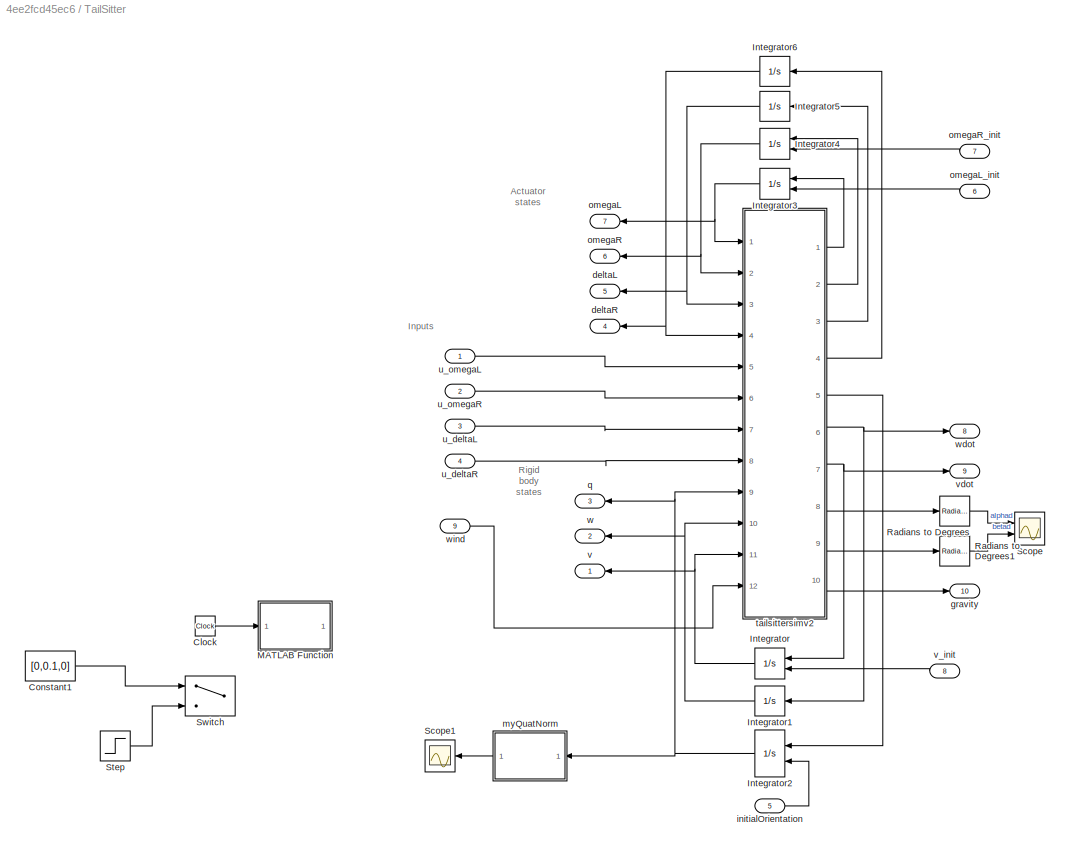
BLOCK [SubSystem] TailSitter
  Ports = [9, 10]
  RequestExecContextInheritance = off
BLOCK [Clock] TailSitter/Clock
  Commented = on
BLOCK [Constant] TailSitter/Constant1
  Commented = on
  Value = [0,0.1,0]
BLOCK [Integrator] TailSitter/Integrator
  InitialCondition = [0,0,0]
  InitialConditionSource = external
  Ports = [2, 1]
BLOCK [Integrator] TailSitter/Integrator1
  InitialCondition = [0,0,0]
  Ports = [1, 1]
BLOCK [Integrator] TailSitter/Integrator2
  InitialConditionSource = external
  Ports = [2, 1]
BLOCK [Integrator] TailSitter/Integrator3
  InitialConditionSource = external
  Ports = [2, 1]
BLOCK [Integrator] TailSitter/Integrator4
  InitialConditionSource = external
  Ports = [2, 1]
BLOCK [Integrator] TailSitter/Integrator5
  Ports = [1, 1]
BLOCK [Integrator] TailSitter/Integrator6
  Ports = [1, 1]
BLOCK [SubSystem] TailSitter/MATLAB Function
  Commented = on
  ErrorFcn = Stateflow.Translate.translate
  PermitHierarchicalResolution = ExplicitOnly
  Ports = [1, 1]
  RequestExecContextInheritance = off
  SFBlockType = MATLAB Function
  TreatAsAtomicUnit = on
BLOCK [Demux] TailSitter/MATLAB Function/ Demux 
  Outputs = 1
  Ports = [1, 1]
BLOCK [S-Function] TailSitter/MATLAB Function/ SFunction 
  EnableBusSupport = on
  FunctionName = sf_sfun
  PortCounts = [1 2]
  Ports = [1, 2]
  SFcnIsStateOwnerBlock = off
  SFunctionDeploymentMode = off
  Tag = Stateflow S-Function 5
BLOCK [Terminator] TailSitter/MATLAB Function/ Terminator 
BLOCK [Inport] TailSitter/MATLAB Function/time
  IconDisplay = Port number
BLOCK [Outport] TailSitter/MATLAB Function/w
  IconDisplay = Port number
  VectorParamsAs1DForOutWhenUnconnected = off
BLOCK [Reference] TailSitter/Radians to Degrees  REF=simulink_extras/Transformations/Radians
to Degrees
  Ports = [1, 1]
  SourceBlock = simulink_extras/Transformations/Radians\nto Degrees
  SourceProductBaseCode = SL
  SourceProductName = Simulink
  SourceType = RadiansToDegrees
BLOCK [Reference] TailSitter/Radians to Degrees1  REF=simulink_extras/Transformations/Radians
to Degrees
  Ports = [1, 1]
  SourceBlock = simulink_extras/Transformations/Radians\nto Degrees
  SourceProductBaseCode = SL
  SourceProductName = Simulink
  SourceType = RadiansToDegrees
BLOCK [Scope] TailSitter/Scope
  Floating = off
  NumInputPorts = 2
  Ports = [2]
  ScopeSpecificationString = Simulink.scopes.TimeScopeBlockCfg('CurrentConfiguration', extmgr.ConfigurationSet(extmgr.Configuration('Core','General UI',true),extmgr.Configuration('Core','Source UI',true),extmgr.Configuration('Sources','WiredSimulink',true,'DataLoggingVariableName','ScopeData1'),extmgr.Configuration('Visuals','Time Domain',true,'SerializedDisplays',{struct('MinYLimReal','-4.55199','MaxYLimReal','6.54782','YLab...<+1444ch>
BLOCK [Scope] TailSitter/Scope1
  Commented = on
  Floating = off
  NumInputPorts = 1
  Ports = [1]
  ScopeSpecificationString = Simulink.scopes.TimeScopeBlockCfg('CurrentConfiguration', extmgr.ConfigurationSet(extmgr.Configuration('Core','General UI',true),extmgr.Configuration('Core','Source UI',true),extmgr.Configuration('Sources','WiredSimulink',true,'DataLoggingVariableName','ScopeData2'),extmgr.Configuration('Visuals','Time Domain',true,'SerializedDisplays',{struct('MinYLimReal','0.95387','MaxYLimReal','1.00519','YLabe...<+1444ch>
BLOCK [Step] TailSitter/Step
  After = [0,0,0.1]
  Before = [0.1,0,0]
  Commented = on
  SampleTime = 0
  Time = 10
BLOCK [Switch] TailSitter/Switch
  Commented = on
  Criteria = u2 > Threshold
  InputSameDT = off
  SaturateOnIntegerOverflow = off
  Threshold = 20
BLOCK [Outport] TailSitter/deltaL
  IconDisplay = Port number
  Port = 5
  VectorParamsAs1DForOutWhenUnconnected = off
BLOCK [Outport] TailSitter/deltaR
  IconDisplay = Port number
  Port = 4
  VectorParamsAs1DForOutWhenUnconnected = off
BLOCK [Outport] TailSitter/gravity
  IconDisplay = Port number
  Port = 10
  PortDimensions = 3
  VectorParamsAs1DForOutWhenUnconnected = off
BLOCK [Inport] TailSitter/initialOrientation
  IconDisplay = Port number
  Port = 5
BLOCK [SubSystem] TailSitter/myQuatNorm
  Commented = on
  ErrorFcn = Stateflow.Translate.translate
  PermitHierarchicalResolution = ExplicitOnly
  Ports = [1, 1]
  RequestExecContextInheritance = off
  SFBlockType = MATLAB Function
  TreatAsAtomicUnit = on
BLOCK [Demux] TailSitter/myQuatNorm/ Demux 
  Outputs = 1
  Ports = [1, 1]
BLOCK [S-Function] TailSitter/myQuatNorm/ SFunction 
  EnableBusSupport = on
  FunctionName = sf_sfun
  PortCounts = [1 2]
  Ports = [1, 2]
  SFcnIsStateOwnerBlock = off
  SFunctionDeploymentMode = off
  Tag = Stateflow S-Function 3
BLOCK [Terminator] TailSitter/myQuatNorm/ Terminator 
BLOCK [Outport] TailSitter/myQuatNorm/n
  IconDisplay = Port number
  VectorParamsAs1DForOutWhenUnconnected = off
BLOCK [Inport] TailSitter/myQuatNorm/q
  IconDisplay = Port number
BLOCK [Outport] TailSitter/omegaL
  IconDisplay = Port number
  Port = 7
  VectorParamsAs1DForOutWhenUnconnected = off
BLOCK [Inport] TailSitter/omegaL_init
  IconDisplay = Port number
  Port = 6
BLOCK [Outport] TailSitter/omegaR
  IconDisplay = Port number
  Port = 6
  VectorParamsAs1DForOutWhenUnconnected = off
BLOCK [Inport] TailSitter/omegaR_init
  IconDisplay = Port number
  Port = 7
BLOCK [Outport] TailSitter/q
  IconDisplay = Port number
  Port = 3
  VectorParamsAs1DForOutWhenUnconnected = off
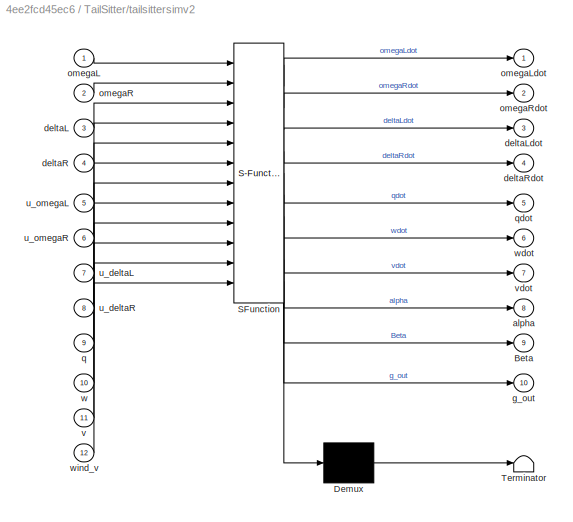
BLOCK [SubSystem] TailSitter/tailsittersimv2
  ErrorFcn = Stateflow.Translate.translate
  PermitHierarchicalResolution = ExplicitOnly
  Ports = [12, 10]
  RequestExecContextInheritance = off
  SFBlockType = MATLAB Function
  TreatAsAtomicUnit = on
BLOCK [Demux] TailSitter/tailsittersimv2/ Demux 
  Outputs = 1
  Ports = [1, 1]
BLOCK [S-Function] TailSitter/tailsittersimv2/ SFunction 
  EnableBusSupport = on
  FunctionName = sf_sfun
  Parameters = p
  PortCounts = [12 11]
  Ports = [12, 11]
  SFcnIsStateOwnerBlock = off
  SFunctionDeploymentMode = off
  Tag = Stateflow S-Function 2
BLOCK [Terminator] TailSitter/tailsittersimv2/ Terminator 
BLOCK [Outport] TailSitter/tailsittersimv2/Beta
  IconDisplay = Port number
  Port = 9
  VectorParamsAs1DForOutWhenUnconnected = off
BLOCK [Outport] TailSitter/tailsittersimv2/alpha
  IconDisplay = Port number
  Port = 8
  VectorParamsAs1DForOutWhenUnconnected = off
BLOCK [Inport] TailSitter/tailsittersimv2/deltaL
  IconDisplay = Port number
  Port = 3
BLOCK [Outport] TailSitter/tailsittersimv2/deltaLdot
  IconDisplay = Port number
  Port = 3
  VectorParamsAs1DForOutWhenUnconnected = off
BLOCK [Inport] TailSitter/tailsittersimv2/deltaR
  IconDisplay = Port number
  Port = 4
BLOCK [Outport] TailSitter/tailsittersimv2/deltaRdot
  IconDisplay = Port number
  Port = 4
  VectorParamsAs1DForOutWhenUnconnected = off
BLOCK [Outport] TailSitter/tailsittersimv2/g_out
  IconDisplay = Port number
  Port = 10
  VectorParamsAs1DForOutWhenUnconnected = off
BLOCK [Inport] TailSitter/tailsittersimv2/omegaL
  IconDisplay = Port number
BLOCK [Outport] TailSitter/tailsittersimv2/omegaLdot
  IconDisplay = Port number
  VectorParamsAs1DForOutWhenUnconnected = off
BLOCK [Inport] TailSitter/tailsittersimv2/omegaR
  IconDisplay = Port number
  Port = 2
BLOCK [Outport] TailSitter/tailsittersimv2/omegaRdot
  IconDisplay = Port number
  Port = 2
  VectorParamsAs1DForOutWhenUnconnected = off
BLOCK [Inport] TailSitter/tailsittersimv2/q
  IconDisplay = Port number
  Port = 9
BLOCK [Outport] TailSitter/tailsittersimv2/qdot
  IconDisplay = Port number
  Port = 5
  VectorParamsAs1DForOutWhenUnconnected = off
BLOCK [Inport] TailSitter/tailsittersimv2/u_deltaL
  IconDisplay = Port number
  Port = 7
BLOCK [Inport] TailSitter/tailsittersimv2/u_deltaR
  IconDisplay = Port number
  Port = 8
BLOCK [Inport] TailSitter/tailsittersimv2/u_omegaL
  IconDisplay = Port number
  Port = 5
BLOCK [Inport] TailSitter/tailsittersimv2/u_omegaR
  IconDisplay = Port number
  Port = 6
BLOCK [Inport] TailSitter/tailsittersimv2/v
  IconDisplay = Port number
  Port = 11
BLOCK [Outport] TailSitter/tailsittersimv2/vdot
  IconDisplay = Port number
  Port = 7
  VectorParamsAs1DForOutWhenUnconnected = off
BLOCK [Inport] TailSitter/tailsittersimv2/w
  IconDisplay = Port number
  Port = 10
BLOCK [Outport] TailSitter/tailsittersimv2/wdot
  IconDisplay = Port number
  Port = 6
  VectorParamsAs1DForOutWhenUnconnected = off
BLOCK [Inport] TailSitter/tailsittersimv2/wind_v
  IconDisplay = Port number
  Port = 12
BLOCK [Inport] TailSitter/u_deltaL
  IconDisplay = Port number
  Port = 3
BLOCK [Inport] TailSitter/u_deltaR
  IconDisplay = Port number
  Port = 4
BLOCK [Inport] TailSitter/u_omegaL
  IconDisplay = Port number
BLOCK [Inport] TailSitter/u_omegaR
  IconDisplay = Port number
  Port = 2
BLOCK [Outport] TailSitter/v
  IconDisplay = Port number
  VectorParamsAs1DForOutWhenUnconnected = off
BLOCK [Inport] TailSitter/v_init
  IconDisplay = Port number
  Port = 8
BLOCK [Outport] TailSitter/vdot
  IconDisplay = Port number
  Port = 9
  PortDimensions = 3
  VectorParamsAs1DForOutWhenUnconnected = off
BLOCK [Outport] TailSitter/w
  IconDisplay = Port number
  Port = 2
  VectorParamsAs1DForOutWhenUnconnected = off
BLOCK [Outport] TailSitter/wdot
  IconDisplay = Port number
  Port = 8
  PortDimensions = 3
  VectorParamsAs1DForOutWhenUnconnected = off
BLOCK [Inport] TailSitter/wind
  IconDisplay = Port number
  Port = 9
BLOCK [ToWorkspace] To Workspace
  FixptAsFi = on
  MaxDataPoints = inf
  Ports = [1]
  SampleTime = p.Ts_log
  SaveFormat = Timeseries
  VariableName = r
BLOCK [ToWorkspace] To Workspace1
  FixptAsFi = on
  MaxDataPoints = inf
  Ports = [1]
  SampleTime = p.Ts_log
  SaveFormat = Timeseries
  VariableName = q_bf
BLOCK [ToWorkspace] To Workspace10
  FixptAsFi = on
  MaxDataPoints = inf
  Ports = [1]
  SampleTime = -1
  SaveFormat = Timeseries
  VariableName = eq_gains
BLOCK [ToWorkspace] To Workspace2
  FixptAsFi = on
  MaxDataPoints = inf
  Ports = [1]
  SampleTime = p.Ts_log
  SaveFormat = Timeseries
  VariableName = v_bf
BLOCK [ToWorkspace] To Workspace3
  FixptAsFi = on
  MaxDataPoints = inf
  Ports = [1]
  SampleTime = p.Ts_log
  SaveFormat = Timeseries
  VariableName = a_bf
BLOCK [ToWorkspace] To Workspace4
  FixptAsFi = on
  MaxDataPoints = inf
  Ports = [1]
  SampleTime = p.Ts_log
  SaveFormat = Timeseries
  VariableName = q_wf
BLOCK [ToWorkspace] To Workspace5
  FixptAsFi = on
  MaxDataPoints = inf
  Ports = [1]
  SampleTime = p.Ts_log
  SaveFormat = Timeseries
  VariableName = rr
BLOCK [ToWorkspace] To Workspace6
  FixptAsFi = on
  MaxDataPoints = inf
  Ports = [1]
  SampleTime = p.Ts_log
  SaveFormat = Timeseries
  VariableName = gravity_bf
BLOCK [ToWorkspace] To Workspace7
  FixptAsFi = on
  MaxDataPoints = inf
  Ports = [1]
  SampleTime = p.Ts_log
  SaveFormat = Timeseries
  VariableName = v_wf
BLOCK [ToWorkspace] To Workspace8
  FixptAsFi = on
  MaxDataPoints = inf
  Ports = [1]
  SampleTime = p.Ts_log
  SaveFormat = Timeseries
  VariableName = refvec
BLOCK [ToWorkspace] To Workspace9
  Commented = on
  FixptAsFi = on
  MaxDataPoints = inf
  Ports = [1]
  SampleTime = p.Ts_log
  SaveFormat = Timeseries
  VariableName = refvec1
BLOCK [SubSystem] TorqueTranslator
  ErrorFcn = Stateflow.Translate.translate
  PermitHierarchicalResolution = ExplicitOnly
  Ports = [4, 5]
  RequestExecContextInheritance = off
  SFBlockType = MATLAB Function
  TreatAsAtomicUnit = on
BLOCK [Demux] TorqueTranslator/ Demux 
  Outputs = 1
  Ports = [1, 1]
BLOCK [S-Function] TorqueTranslator/ SFunction 
  EnableBusSupport = on
  FunctionName = sf_sfun
  Parameters = p
  PortCounts = [4 6]
  Ports = [4, 6]
  SFcnIsStateOwnerBlock = off
  SFunctionDeploymentMode = off
  Tag = Stateflow S-Function 23
BLOCK [Terminator] TorqueTranslator/ Terminator 
BLOCK [Outport] TorqueTranslator/equivalent_gains
  IconDisplay = Port number
  Port = 5
  VectorParamsAs1DForOutWhenUnconnected = off
BLOCK [Inport] TorqueTranslator/pitchoffset
  IconDisplay = Port number
  Port = 4
BLOCK [Inport] TorqueTranslator/states
  IconDisplay = Port number
  Port = 2
BLOCK [Outport] TorqueTranslator/u_deltaL
  IconDisplay = Port number
  Port = 3
  VectorParamsAs1DForOutWhenUnconnected = off
BLOCK [Outport] TorqueTranslator/u_deltaR
  IconDisplay = Port number
  Port = 4
  VectorParamsAs1DForOutWhenUnconnected = off
BLOCK [Inport] TorqueTranslator/u_jointT
  IconDisplay = Port number
BLOCK [Outport] TorqueTranslator/u_omegaL
  IconDisplay = Port number
  VectorParamsAs1DForOutWhenUnconnected = off
BLOCK [Outport] TorqueTranslator/u_omegaR
  IconDisplay = Port number
  Port = 2
  VectorParamsAs1DForOutWhenUnconnected = off
BLOCK [Inport] TorqueTranslator/wdots
  IconDisplay = Port number
  Port = 3
BLOCK [SubSystem] Torque_FL
  Commented = on
  ErrorFcn = Stateflow.Translate.translate
  PermitHierarchicalResolution = ExplicitOnly
  Ports = [3, 4]
  RequestExecContextInheritance = off
  SFBlockType = MATLAB Function
  TreatAsAtomicUnit = on
BLOCK [Demux] Torque_FL/ Demux 
  Outputs = 1
  Ports = [1, 1]
BLOCK [S-Function] Torque_FL/ SFunction 
  EnableBusSupport = on
  FunctionName = sf_sfun
  Parameters = p
  PortCounts = [3 5]
  Ports = [3, 5]
  SFcnIsStateOwnerBlock = off
  SFunctionDeploymentMode = off
  Tag = Stateflow S-Function 1
BLOCK [Terminator] Torque_FL/ Terminator 
BLOCK [Inport] Torque_FL/states
  IconDisplay = Port number
  Port = 2
BLOCK [Inport] Torque_FL/tao
  IconDisplay = Port number
BLOCK [Outport] Torque_FL/u_deltaL
  IconDisplay = Port number
  Port = 3
  VectorParamsAs1DForOutWhenUnconnected = off
BLOCK [Outport] Torque_FL/u_deltaR
  IconDisplay = Port number
  Port = 4
  VectorParamsAs1DForOutWhenUnconnected = off
BLOCK [Inport] Torque_FL/u_jointT
  IconDisplay = Port number
  Port = 3
BLOCK [Outport] Torque_FL/u_omegaL
  IconDisplay = Port number
  VectorParamsAs1DForOutWhenUnconnected = off
BLOCK [Outport] Torque_FL/u_omegaR
  IconDisplay = Port number
  Port = 2
  VectorParamsAs1DForOutWhenUnconnected = off
BLOCK [Reference] Transfer Fcn First Order  REF=simulink/Discrete/Transfer Fcn
First Order
  Commented = on
  Ports = [1, 1]
  SourceBlock = simulink/Discrete/Transfer Fcn\nFirst Order
  SourceProductBaseCode = SL
  SourceProductName = Simulink
  SourceType = First Order Transfer Fcn
BLOCK [Reference] Transfer Fcn First Order1  REF=simulink/Discrete/Transfer Fcn
First Order
  Commented = on
  Ports = [1, 1]
  SourceBlock = simulink/Discrete/Transfer Fcn\nFirst Order
  SourceProductBaseCode = SL
  SourceProductName = Simulink
  SourceType = First Order Transfer Fcn
BLOCK [Math] Transpose
  Operator = transpose
  Ports = [1, 1]
  SignedPower = off
BLOCK [Reference] VR Sink  REF=vrlib/VR Sink
  InstantiateOnLoad = on
  Ports = [3, 1]
  SourceBlock = vrlib/VR Sink
  SourceProductBaseCode = VR
  SourceProductName = Simulink 3D Animation
  SourceType = Virtual Reality Sink
BLOCK [ZeroOrderHold] Zero-Order Hold
  SampleTime = p.Ts
BLOCK [ZeroOrderHold] Zero-Order Hold1
  SampleTime = p.Ts
BLOCK [ZeroOrderHold] Zero-Order Hold10
  Commented = on
  SampleTime = p.Ts
BLOCK [ZeroOrderHold] Zero-Order Hold2
  Commented = on
  SampleTime = p.Ts
BLOCK [ZeroOrderHold] Zero-Order Hold4
  SampleTime = p.Ts
BLOCK [ZeroOrderHold] Zero-Order Hold5
  SampleTime = p.Ts
BLOCK [ZeroOrderHold] Zero-Order Hold6
  Commented = on
  SampleTime = p.Ts
BLOCK [ZeroOrderHold] Zero-Order Hold7
  SampleTime = p.Ts
BLOCK [ZeroOrderHold] Zero-Order Hold8
  SampleTime = p.Ts
BLOCK [ZeroOrderHold] Zero-Order Hold9
  SampleTime = p.Ts
BLOCK [Scope] bodyfrme
  Floating = off
  NumInputPorts = 2
  Ports = [2]
  ScopeSpecificationString = Simulink.scopes.TimeScopeBlockCfg('CurrentConfiguration', extmgr.ConfigurationSet(extmgr.Configuration('Core','General UI',true),extmgr.Configuration('Core','Source UI',true),extmgr.Configuration('Sources','WiredSimulink',true,'DataLoggingVariableName','ScopeData3'),extmgr.Configuration('Visuals','Time Domain',true,'SerializedDisplays',{struct('MinYLimReal','-11.40255','MaxYLimReal','54.5467','YLa...<+1612ch>
BLOCK [Scope] gravity
  Floating = off
  NumInputPorts = 2
  Ports = [2]
  ScopeSpecificationString = Simulink.scopes.TimeScopeBlockCfg('CurrentConfiguration', extmgr.ConfigurationSet(extmgr.Configuration('Core','General UI',true),extmgr.Configuration('Core','Source UI',true),extmgr.Configuration('Sources','WiredSimulink',true,'DataLoggingVariableName','ScopeData5'),extmgr.Configuration('Visuals','Time Domain',true,'SerializedDisplays',{struct('MinYLimReal','-12.27502','MaxYLimReal','12.27514','YL...<+1583ch>
BLOCK [Scope] gravity_wf_convertedfrombf
  Floating = off
  NumInputPorts = 2
  Ports = [2]
  ScopeSpecificationString = Simulink.scopes.TimeScopeBlockCfg('CurrentConfiguration', extmgr.ConfigurationSet(extmgr.Configuration('Core','General UI',true),extmgr.Configuration('Core','Source UI',true),extmgr.Configuration('Sources','WiredSimulink',true,'DataLoggingVariableName','ScopeData6'),extmgr.Configuration('Visuals','Time Domain',true,'SerializedDisplays',{struct('MinYLimReal','-1.22752','MaxYLimReal','11.04764','YLa...<+1591ch>
BLOCK [SubSystem] linegenerator
  ErrorFcn = Stateflow.Translate.translate
  PermitHierarchicalResolution = ExplicitOnly
  Ports = [2, 6]
  RequestExecContextInheritance = off
  SFBlockType = MATLAB Function
  TreatAsAtomicUnit = on
BLOCK [Demux] linegenerator/ Demux 
  Outputs = 1
  Ports = [1, 1]
BLOCK [S-Function] linegenerator/ SFunction 
  EnableBusSupport = on
  FunctionName = sf_sfun
  Parameters = p
  PortCounts = [2 7]
  Ports = [2, 7]
  SFcnIsStateOwnerBlock = off
  SFunctionDeploymentMode = off
  Tag = Stateflow S-Function 8
BLOCK [Terminator] linegenerator/ Terminator 
BLOCK [Outport] linegenerator/dist2wp
  IconDisplay = Port number
  Port = 3
  VectorParamsAs1DForOutWhenUnconnected = off
BLOCK [Outport] linegenerator/linevec
  IconDisplay = Port number
  Port = 4
  VectorParamsAs1DForOutWhenUnconnected = off
BLOCK [Inport] linegenerator/r
  IconDisplay = Port number
  Port = 2
BLOCK [Outport] linegenerator/rspeed
  IconDisplay = Port number
  VectorParamsAs1DForOutWhenUnconnected = off
BLOCK [Inport] linegenerator/v_wf
  IconDisplay = Port number
BLOCK [Outport] linegenerator/vec2line
  IconDisplay = Port number
  Port = 5
  VectorParamsAs1DForOutWhenUnconnected = off
BLOCK [Outport] linegenerator/wpN
  IconDisplay = Port number
  Port = 2
  VectorParamsAs1DForOutWhenUnconnected = off
BLOCK [Outport] linegenerator/wp_r
  IconDisplay = Port number
  Port = 6
  VectorParamsAs1DForOutWhenUnconnected = off
BLOCK [SubSystem] linegenerator1
  Commented = on
  ErrorFcn = Stateflow.Translate.translate
  PermitHierarchicalResolution = ExplicitOnly
  Ports = [3, 6]
  RequestExecContextInheritance = off
  SFBlockType = MATLAB Function
  TreatAsAtomicUnit = on
BLOCK [Demux] linegenerator1/ Demux 
  Outputs = 1
  Ports = [1, 1]
BLOCK [S-Function] linegenerator1/ SFunction 
  EnableBusSupport = on
  FunctionName = sf_sfun
  Parameters = p
  PortCounts = [3 7]
  Ports = [3, 7]
  SFcnIsStateOwnerBlock = off
  SFunctionDeploymentMode = off
  Tag = Stateflow S-Function 12
BLOCK [Terminator] linegenerator1/ Terminator 
BLOCK [Outport] linegenerator1/altError
  IconDisplay = Port number
  VectorParamsAs1DForOutWhenUnconnected = off
BLOCK [Inport] linegenerator1/d2lcoeff
  IconDisplay = Port number
  Port = 2
BLOCK [Outport] linegenerator1/dist2wp
  IconDisplay = Port number
  Port = 5
  VectorParamsAs1DForOutWhenUnconnected = off
BLOCK [Inport] linegenerator1/max2l
  IconDisplay = Port number
BLOCK [Inport] linegenerator1/r
  IconDisplay = Port number
  Port = 3
BLOCK [Outport] linegenerator1/refvec
  IconDisplay = Port number
  Port = 3
  VectorParamsAs1DForOutWhenUnconnected = off
BLOCK [Outport] linegenerator1/rspeed
  IconDisplay = Port number
  Port = 2
  VectorParamsAs1DForOutWhenUnconnected = off
BLOCK [Outport] linegenerator1/vec2line
  IconDisplay = Port number
  Port = 6
  VectorParamsAs1DForOutWhenUnconnected = off
BLOCK [Outport] linegenerator1/wpN
  IconDisplay = Port number
  Port = 4
  VectorParamsAs1DForOutWhenUnconnected = off
BLOCK [Constant] pitch
  Value = 0
BLOCK [SubSystem] q_fly_generator
  Ports = [4, 1, 1]
  RequestExecContextInheritance = off
BLOCK [Reference] q_fly_generator/Altitude controller  REF=simulink/Continuous/PID Controller
  Commented = on
  Ports = [1, 1]
  SourceBlock = simulink/Continuous/PID Controller
  SourceProductBaseCode = SL
  SourceProductName = Simulink
  SourceType = PID 1dof
BLOCK [Constant] q_fly_generator/Constant11
  Value = 0.15
BLOCK [Delay] q_fly_generator/Delay
  DelayLength = 1
  InitialConditionSource = Input port
  InputPortMap = u0,p4
  Ports = [2, 1]
BLOCK [Delay] q_fly_generator/Delay1
  DelayLength = 1
  InputPortMap = u0
  Ports = [1, 1]
BLOCK [EnablePort] q_fly_generator/Enable
  Ports = []
  StatesWhenEnabling = reset
BLOCK [Gain] q_fly_generator/Gain
  Commented = on
  Gain = -1
  OutDataTypeStr = Inherit: Inherit via internal rule
  ParamDataTypeStr = Inherit: Inherit via internal rule
  SaturateOnIntegerOverflow = off
BLOCK [Gain] q_fly_generator/Gain21
  Gain = -0.01
  OutDataTypeStr = Inherit: Inherit via internal rule
  ParamDataTypeStr = Inherit: Inherit via internal rule
  SaturateOnIntegerOverflow = off
BLOCK [SubSystem] q_fly_generator/MATLAB Function3
  ErrorFcn = Stateflow.Translate.translate
  PermitHierarchicalResolution = ExplicitOnly
  Ports = [3, 2]
  RequestExecContextInheritance = off
  SFBlockType = MATLAB Function
  TreatAsAtomicUnit = on
BLOCK [Demux] q_fly_generator/MATLAB Function3/ Demux 
  Outputs = 1
  Ports = [1, 1]
BLOCK [S-Function] q_fly_generator/MATLAB Function3/ SFunction 
  EnableBusSupport = on
  FunctionName = sf_sfun
  PortCounts = [3 3]
  Ports = [3, 3]
  SFcnIsStateOwnerBlock = off
  SFunctionDeploymentMode = off
  Tag = Stateflow S-Function 10
BLOCK [Terminator] q_fly_generator/MATLAB Function3/ Terminator 
BLOCK [Outport] q_fly_generator/MATLAB Function3/pitch
  IconDisplay = Port number
  Port = 2
  VectorParamsAs1DForOutWhenUnconnected = off
BLOCK [Inport] q_fly_generator/MATLAB Function3/pitchPID
  IconDisplay = Port number
BLOCK [Inport] q_fly_generator/MATLAB Function3/v_wf
  IconDisplay = Port number
  Port = 3
BLOCK [Outport] q_fly_generator/MATLAB Function3/vherror
  IconDisplay = Port number
  VectorParamsAs1DForOutWhenUnconnected = off
BLOCK [Inport] q_fly_generator/MATLAB Function3/vr_wf
  IconDisplay = Port number
  Port = 2
BLOCK [SubSystem] q_fly_generator/MATLAB Function5
  ErrorFcn = Stateflow.Translate.translate
  PermitHierarchicalResolution = ExplicitOnly
  Ports = [2, 1]
  RequestExecContextInheritance = off
  SFBlockType = MATLAB Function
  TreatAsAtomicUnit = on
BLOCK [Demux] q_fly_generator/MATLAB Function5/ Demux 
  Outputs = 1
  Ports = [1, 1]
BLOCK [S-Function] q_fly_generator/MATLAB Function5/ SFunction 
  EnableBusSupport = on
  FunctionName = sf_sfun
  PortCounts = [2 2]
  Ports = [2, 2]
  SFcnIsStateOwnerBlock = off
  SFunctionDeploymentMode = off
  Tag = Stateflow S-Function 14
BLOCK [Terminator] q_fly_generator/MATLAB Function5/ Terminator 
BLOCK [Inport] q_fly_generator/MATLAB Function5/yaw
  IconDisplay = Port number
  Port = 2
BLOCK [Outport] q_fly_generator/MATLAB Function5/yawe
  IconDisplay = Port number
  VectorParamsAs1DForOutWhenUnconnected = off
BLOCK [Inport] q_fly_generator/MATLAB Function5/yawr
  IconDisplay = Port number
BLOCK [SubSystem] q_fly_generator/MATLAB Function6
  ErrorFcn = Stateflow.Translate.translate
  PermitHierarchicalResolution = ExplicitOnly
  Ports = [3, 1]
  RequestExecContextInheritance = off
  SFBlockType = MATLAB Function
  TreatAsAtomicUnit = on
BLOCK [Demux] q_fly_generator/MATLAB Function6/ Demux 
  Outputs = 1
  Ports = [1, 1]
BLOCK [S-Function] q_fly_generator/MATLAB Function6/ SFunction 
  EnableBusSupport = on
  FunctionName = sf_sfun
  Parameters = p
  PortCounts = [3 2]
  Ports = [3, 2]
  SFcnIsStateOwnerBlock = off
  SFunctionDeploymentMode = off
  Tag = Stateflow S-Function 15
BLOCK [Terminator] q_fly_generator/MATLAB Function6/ Terminator 
BLOCK [Inport] q_fly_generator/MATLAB Function6/maxrate
  IconDisplay = Port number
  Port = 2
BLOCK [Inport] q_fly_generator/MATLAB Function6/yawr
  IconDisplay = Port number
BLOCK [Inport] q_fly_generator/MATLAB Function6/yawr_last
  IconDisplay = Port number
  Port = 3
BLOCK [Outport] q_fly_generator/MATLAB Function6/yawr_slow
  IconDisplay = Port number
  VectorParamsAs1DForOutWhenUnconnected = off
BLOCK [SubSystem] q_fly_generator/MATLAB Function8
  ErrorFcn = Stateflow.Translate.translate
  PermitHierarchicalResolution = ExplicitOnly
  Ports = [2, 2]
  RequestExecContextInheritance = off
  SFBlockType = MATLAB Function
  TreatAsAtomicUnit = on
BLOCK [Demux] q_fly_generator/MATLAB Function8/ Demux 
  Outputs = 1
  Ports = [1, 1]
BLOCK [S-Function] q_fly_generator/MATLAB Function8/ SFunction 
  EnableBusSupport = on
  FunctionName = sf_sfun
  PortCounts = [2 3]
  Ports = [2, 3]
  SFcnIsStateOwnerBlock = off
  SFunctionDeploymentMode = off
  Tag = Stateflow S-Function 17
BLOCK [Terminator] q_fly_generator/MATLAB Function8/ Terminator 
BLOCK [Inport] q_fly_generator/MATLAB Function8/v_wf
  IconDisplay = Port number
  Port = 2
BLOCK [Inport] q_fly_generator/MATLAB Function8/vr_wf
  IconDisplay = Port number
BLOCK [Outport] q_fly_generator/MATLAB Function8/yaw
  IconDisplay = Port number
  Port = 2
  VectorParamsAs1DForOutWhenUnconnected = off
BLOCK [Outport] q_fly_generator/MATLAB Function8/yawr
  IconDisplay = Port number
  VectorParamsAs1DForOutWhenUnconnected = off
BLOCK [Reference] q_fly_generator/PID Controller1  REF=simulink/Continuous/PID Controller
  Ports = [1, 1]
  SourceBlock = simulink/Continuous/PID Controller
  SourceProductBaseCode = SL
  SourceProductName = Simulink
  SourceType = PID 1dof
BLOCK [Reference] q_fly_generator/PID Controller2  REF=simulink/Continuous/PID Controller
  Ports = [1, 1]
  SourceBlock = simulink/Continuous/PID Controller
  SourceProductBaseCode = SL
  SourceProductName = Simulink
  SourceType = PID 1dof
BLOCK [Saturate] q_fly_generator/Saturation5
  Commented = on
  InputPortMap = u0
  LowerLimit = -0.01*5
  Ports = [1, 1]
  UpperLimit = 0.01*5
BLOCK [Scope] q_fly_generator/Scope
  Floating = off
  NumInputPorts = 1
  Ports = [1]
  ScopeSpecificationString = Simulink.scopes.TimeScopeBlockCfg('CurrentConfiguration', extmgr.ConfigurationSet(extmgr.Configuration('Core','General UI',true),extmgr.Configuration('Core','Source UI',true),extmgr.Configuration('Sources','WiredSimulink',true,'DataLoggingVariableName','ScopeData7'),extmgr.Configuration('Visuals','Time Domain',true,'SerializedDisplays',{struct('MinYLimReal','-0.58285','MaxYLimReal','3.36063','YLab...<+1427ch>
BLOCK [Scope] q_fly_generator/Scope20
  Floating = off
  NumInputPorts = 3
  Ports = [3]
  ScopeSpecificationString = Simulink.scopes.TimeScopeBlockCfg('CurrentConfiguration', extmgr.ConfigurationSet(extmgr.Configuration('Core','General UI',true),extmgr.Configuration('Core','Source UI',true),extmgr.Configuration('Sources','WiredSimulink',true,'DataLoggingVariableName','ScopeData1'),extmgr.Configuration('Visuals','Time Domain',true,'SerializedDisplays',{struct('MinYLimReal','-3.15128','MaxYLimReal','3.3585','YLabe...<+1495ch>
BLOCK [Scope] q_fly_generator/Scope22
  Floating = off
  NumInputPorts = 3
  Ports = [3]
  ScopeSpecificationString = Simulink.scopes.TimeScopeBlockCfg('CurrentConfiguration', extmgr.ConfigurationSet(extmgr.Configuration('Core','General UI',true),extmgr.Configuration('Core','Source UI',true),extmgr.Configuration('Sources','WiredSimulink',true,'DataLoggingVariableName','ScopeData3'),extmgr.Configuration('Visuals','Time Domain',true,'SerializedDisplays',{struct('MinYLimReal','-3.9242','MaxYLimReal','3.92561','YLabe...<+1544ch>
BLOCK [Scope] q_fly_generator/Scope23
  Floating = off
  NumInputPorts = 2
  Ports = [2]
  ScopeSpecificationString = Simulink.scopes.TimeScopeBlockCfg('CurrentConfiguration', extmgr.ConfigurationSet(extmgr.Configuration('Core','General UI',true),extmgr.Configuration('Core','Source UI',true),extmgr.Configuration('Sources','WiredSimulink',true,'DataLoggingVariableName','ScopeData1'),extmgr.Configuration('Visuals','Time Domain',true,'SerializedDisplays',{struct('MinYLimReal','-3.92164','MaxYLimReal','3.92609','YLab...<+1509ch>
BLOCK [Scope] q_fly_generator/Scope6
  Commented = on
  Floating = off
  NumInputPorts = 2
  Ports = [2]
  ScopeSpecificationString = Simulink.scopes.TimeScopeBlockCfg('CurrentConfiguration', extmgr.ConfigurationSet(extmgr.Configuration('Core','General UI',true),extmgr.Configuration('Core','Source UI',true),extmgr.Configuration('Sources','WiredSimulink',true,'DataLoggingVariableName','ScopeData3'),extmgr.Configuration('Visuals','Time Domain',true,'SerializedDisplays',{struct('MinYLimReal','-64.54833','MaxYLimReal','8.04265','YLa...<+1464ch>
BLOCK [Selector] q_fly_generator/Selector
  Commented = on
  IndexOptions = Index vector (dialog)
  Indices = [3]
  InputPortWidth = 3
  OutputSizes = 1
  Ports = [1, 1]
BLOCK [SignalSpecification] q_fly_generator/Signal Specification10
  Dimensions = 3
BLOCK [SignalSpecification] q_fly_generator/Signal Specification5
  Dimensions = 4
BLOCK [SignalSpecification] q_fly_generator/Signal Specification6
  Dimensions = 1
BLOCK [SignalSpecification] q_fly_generator/Signal Specification7
  Dimensions = 1
BLOCK [SignalSpecification] q_fly_generator/Signal Specification8
  Dimensions = 1
BLOCK [SignalSpecification] q_fly_generator/Signal Specification9
  Dimensions = 3
BLOCK [SubSystem] q_fly_generator/ZYX-quat
  ErrorFcn = Stateflow.Translate.translate
  PermitHierarchicalResolution = ExplicitOnly
  Ports = [3, 1]
  RequestExecContextInheritance = off
  SFBlockType = MATLAB Function
  TreatAsAtomicUnit = on
BLOCK [Demux] q_fly_generator/ZYX-quat/ Demux 
  Outputs = 1
  Ports = [1, 1]
BLOCK [S-Function] q_fly_generator/ZYX-quat/ SFunction 
  EnableBusSupport = on
  FunctionName = sf_sfun
  PortCounts = [3 2]
  Ports = [3, 2]
  SFcnIsStateOwnerBlock = off
  SFunctionDeploymentMode = off
  Tag = Stateflow S-Function 13
BLOCK [Terminator] q_fly_generator/ZYX-quat/ Terminator 
BLOCK [Outport] q_fly_generator/ZYX-quat/q
  IconDisplay = Port number
  VectorParamsAs1DForOutWhenUnconnected = off
BLOCK [Inport] q_fly_generator/ZYX-quat/x
  IconDisplay = Port number
  Port = 3
BLOCK [Inport] q_fly_generator/ZYX-quat/y
  IconDisplay = Port number
BLOCK [Inport] q_fly_generator/ZYX-quat/z
  IconDisplay = Port number
  Port = 2
BLOCK [ZeroOrderHold] q_fly_generator/Zero-Order Hold3
  SampleTime = p.Ts
BLOCK [Inport] q_fly_generator/current_heading
  IconDisplay = Port number
  Port = 4
BLOCK [Outport] q_fly_generator/q_ref_fly
  IconDisplay = Port number
  VectorParamsAs1DForOutWhenUnconnected = off
BLOCK [Inport] q_fly_generator/v_wf
  IconDisplay = Port number
  Port = 3
BLOCK [Inport] q_fly_generator/vec2line
  IconDisplay = Port number
  Port = 2
BLOCK [Inport] q_fly_generator/vr_wf
  IconDisplay = Port number
BLOCK [SubSystem] q_hover_generator
  Ports = [4, 1, 1]
  RequestExecContextInheritance = off
BLOCK [Sum] q_hover_generator/Add
  InputSameDT = off
  OutDataTypeStr = Inherit: Inherit via internal rule
  Ports = [2, 1]
  SaturateOnIntegerOverflow = off
BLOCK [Constant] q_hover_generator/Constant
  Value = 0
BLOCK [Constant] q_hover_generator/Constant28
  Value = pi/2-0.4
BLOCK [Constant] q_hover_generator/Constant30
  Value = 0
BLOCK [Constant] q_hover_generator/Constant8
  Value = 0
BLOCK [Demux] q_hover_generator/Demux11
  DisplayOption = bar
  Outputs = 3
  Ports = [1, 3]
BLOCK [Demux] q_hover_generator/Demux12
  DisplayOption = bar
  Outputs = 3
  Ports = [1, 3]
BLOCK [Reference] q_hover_generator/Discrete PID Controller1  REF=simulink/Continuous/PID Controller
  Ports = [1, 1]
  SourceBlock = simulink/Continuous/PID Controller
  SourceProductBaseCode = SL
  SourceProductName = Simulink
  SourceType = PID 1dof
BLOCK [Reference] q_hover_generator/Discrete PID Controller2  REF=simulink/Continuous/PID Controller
  Ports = [1, 1]
  SourceBlock = simulink/Continuous/PID Controller
  SourceProductBaseCode = SL
  SourceProductName = Simulink
  SourceType = PID 1dof
BLOCK [Reference] q_hover_generator/Discrete PID Controller3  REF=simulink/Continuous/PID Controller
  Ports = [3, 1]
  SourceBlock = simulink/Continuous/PID Controller
  SourceProductBaseCode = SL
  SourceProductName = Simulink
  SourceType = PID 1dof
BLOCK [EnablePort] q_hover_generator/Enable
  Ports = []
  StatesWhenEnabling = reset
BLOCK [Gain] q_hover_generator/Gain29
  Gain = -0.01
  OutDataTypeStr = Inherit: Inherit via internal rule
  ParamDataTypeStr = Inherit: Inherit via internal rule
  SaturateOnIntegerOverflow = off
BLOCK [Gain] q_hover_generator/Gain30
  Gain = 0.01
  OutDataTypeStr = Inherit: Inherit via internal rule
  ParamDataTypeStr = Inherit: Inherit via internal rule
  SaturateOnIntegerOverflow = off
BLOCK [Gain] q_hover_generator/Gain31
  Gain = 0.1
  OutDataTypeStr = Inherit: Inherit via internal rule
  ParamDataTypeStr = Inherit: Inherit via internal rule
  SaturateOnIntegerOverflow = off
BLOCK [Mux] q_hover_generator/Mux15
  DisplayOption = bar
  Inputs = 2
  Ports = [2, 1]
BLOCK [Mux] q_hover_generator/Mux16
  DisplayOption = bar
  Inputs = 3
  Ports = [3, 1]
BLOCK [Mux] q_hover_generator/Mux17
  DisplayOption = bar
  Inputs = 2
  Ports = [2, 1]
BLOCK [Mux] q_hover_generator/Mux18
  DisplayOption = bar
  Inputs = 3
  Ports = [3, 1]
BLOCK [Reference] q_hover_generator/Quaternion Multiplication5  REF=aerolibutil/Quaternion
Multiplication
  Ports = [2, 1]
  SourceBlock = aerolibutil/Quaternion\nMultiplication
  SourceProductBaseCode = AE
  SourceProductName = Aerospace Blockset
  SourceType = Quaternion Multiplication
BLOCK [Reference] q_hover_generator/Quaternion Rotation6  REF=aerolibutil/Quaternion
Rotation
  Ports = [2, 1]
  SourceBlock = aerolibutil/Quaternion\nRotation
  SourceProductBaseCode = AE
  SourceProductName = Aerospace Blockset
  SourceType = Quaternion Rotation
BLOCK [Reference] q_hover_generator/Quaternion Rotation9  REF=aerolibutil/Quaternion
Rotation
  Ports = [2, 1]
  SourceBlock = aerolibutil/Quaternion\nRotation
  SourceProductBaseCode = AE
  SourceProductName = Aerospace Blockset
  SourceType = Quaternion Rotation
BLOCK [Reference] q_hover_generator/Rotation Angles to Quaternions2  REF=sharedtransform/Rotation Angles to Quaternions
  AttributesFormatString = Rotation Order: %<rotationOrder>
  Ports = [1, 1]
  SourceBlock = sharedtransform/Rotation Angles to Quaternions
  SourceProductBaseCode = AE
  SourceProductName = Aerospace Blockset
  SourceType = Ang2Quat
BLOCK [Reference] q_hover_generator/Rotation Angles to Quaternions3  REF=sharedtransform/Rotation Angles to Quaternions
  AttributesFormatString = Rotation Order: %<rotationOrder>
  Ports = [1, 1]
  SourceBlock = sharedtransform/Rotation Angles to Quaternions
  SourceProductBaseCode = AE
  SourceProductName = Aerospace Blockset
  SourceType = Ang2Quat
BLOCK [Scope] q_hover_generator/Scope
  Floating = off
  NumInputPorts = 2
  Ports = [2]
  ScopeSpecificationString = Simulink.scopes.TimeScopeBlockCfg('CurrentConfiguration', extmgr.ConfigurationSet(extmgr.Configuration('Core','General UI',true),extmgr.Configuration('Core','Source UI',true),extmgr.Configuration('Sources','WiredSimulink',true,'DataLoggingVariableName','ScopeData2'),extmgr.Configuration('Visuals','Time Domain',true),extmgr.Configuration('Tools','Plot Navigation',true),extmgr.Configuration('Tools',...<+40ch>
BLOCK [Scope] q_hover_generator/Scope26
  Floating = off
  NumInputPorts = 2
  Ports = [2]
  ScopeSpecificationString = Simulink.scopes.TimeScopeBlockCfg('CurrentConfiguration', extmgr.ConfigurationSet(extmgr.Configuration('Core','General UI',true),extmgr.Configuration('Core','Source UI',true),extmgr.Configuration('Sources','WiredSimulink',true,'DataLoggingVariableName','ScopeData2'),extmgr.Configuration('Visuals','Time Domain',true,'SerializedDisplays',{struct('MinYLimReal','-0.87266','MaxYLimReal','0.87266','YLab...<+2169ch>
BLOCK [Scope] q_hover_generator/Scope27
  Floating = off
  NumInputPorts = 1
  Ports = [1]
  ScopeSpecificationString = Simulink.scopes.TimeScopeBlockCfg('CurrentConfiguration', extmgr.ConfigurationSet(extmgr.Configuration('Core','General UI',true),extmgr.Configuration('Core','Source UI',true),extmgr.Configuration('Sources','WiredSimulink',true,'DataLoggingVariableName','ScopeData1'),extmgr.Configuration('Visuals','Time Domain',true,'SerializedDisplays',{struct('MinYLimReal','-0.13593','MaxYLimReal','0.96101','YLab...<+1524ch>
BLOCK [Sum] q_hover_generator/Sum18
  IconShape = round
  InputSameDT = off
  Inputs = |++
  OutDataTypeStr = Inherit: Inherit via internal rule
  Ports = [2, 1]
  SaturateOnIntegerOverflow = off
BLOCK [Terminator] q_hover_generator/Terminator
BLOCK [Terminator] q_hover_generator/Terminator1
BLOCK [Terminator] q_hover_generator/Terminator2
BLOCK [ZeroOrderHold] q_hover_generator/Zero-Order Hold11
  SampleTime = p.Ts
BLOCK [ZeroOrderHold] q_hover_generator/Zero-Order Hold14
  SampleTime = p.Ts
BLOCK [Inport] q_hover_generator/current_heading
  IconDisplay = Port number
  Port = 4
BLOCK [Inport] q_hover_generator/linevec
  IconDisplay = Port number
  Port = 2
BLOCK [Inport] q_hover_generator/q_bf
  IconDisplay = Port number
  Port = 3
BLOCK [Outport] q_hover_generator/q_ref_hover
  IconDisplay = Port number
  VectorParamsAs1DForOutWhenUnconnected = off
BLOCK [Inport] q_hover_generator/vec2line
  IconDisplay = Port number
BLOCK [Constant] roll
  Value = 0
BLOCK [Scope] u_deltas
  Floating = off
  NumInputPorts = 2
  Ports = [2]
  ScopeSpecificationString = Simulink.scopes.TimeScopeBlockCfg('CurrentConfiguration', extmgr.ConfigurationSet(extmgr.Configuration('Core','General UI',true),extmgr.Configuration('Core','Source UI',true),extmgr.Configuration('Sources','WiredSimulink',true,'DataLoggingVariableName','ScopeData4'),extmgr.Configuration('Visuals','Time Domain',true,'SerializedDisplays',{struct('MinYLimReal','-0.625','MaxYLimReal','0.625','YLabelRe...<+1488ch>
BLOCK [Scope] u_omegas
  Floating = off
  NumInputPorts = 2
  Ports = [2]
  ScopeSpecificationString = Simulink.scopes.TimeScopeBlockCfg('CurrentConfiguration', extmgr.ConfigurationSet(extmgr.Configuration('Core','General UI',true),extmgr.Configuration('Core','Source UI',true),extmgr.Configuration('Sources','WiredSimulink',true,'DataLoggingVariableName','ScopeData4'),extmgr.Configuration('Visuals','Time Domain',true,'SerializedDisplays',{struct('MinYLimReal','-125.00000','MaxYLimReal','1125.00000',...<+1496ch>
BLOCK [Constant] v_isnit
  Value = [0, 0,0]
BLOCK [Scope] v_ref_bf_attctrl 
  Commented = on
  Floating = off
  NumInputPorts = 1
  Ports = [1]
  ScopeSpecificationString = Simulink.scopes.TimeScopeBlockCfg('CurrentConfiguration', extmgr.ConfigurationSet(extmgr.Configuration('Core','General UI',true),extmgr.Configuration('Core','Source UI',true),extmgr.Configuration('Sources','WiredSimulink',true,'DataLoggingVariableName','ScopeData1'),extmgr.Configuration('Visuals','Time Domain',true,'SerializedDisplays',{struct('MinYLimReal','-21.56474','MaxYLimReal','22.27139','YL...<+1508ch>
BLOCK [Scope] vr-v
  Commented = on
  Floating = off
  NumInputPorts = 1
  Ports = [1]
  ScopeSpecificationString = Simulink.scopes.TimeScopeBlockCfg('CurrentConfiguration', extmgr.ConfigurationSet(extmgr.Configuration('Core','General UI',true),extmgr.Configuration('Core','Source UI',true),extmgr.Configuration('Sources','WiredSimulink',true,'DataLoggingVariableName','ScopeData1'),extmgr.Configuration('Visuals','Time Domain',true,'SerializedDisplays',{struct('MinYLimReal','-36.23988','MaxYLimReal','15.80734','YL...<+1463ch>
BLOCK [Constant] x_bf
  Commented = on
  Value = [1,0,0]
BLOCK [Constant] y_bf
  Commented = on
  Value = [0,1,0]
BLOCK [Constant] yaw
  Value = 0
BLOCK [Constant] z_wf
  Commented = on
  Value = [0,0,1]
ANNOTATION (root): 0.01
ANNOTATION (root): ANimations above do not work bc gimbal lock.
ANNOTATION (root): Adjust pitch to keep vzr_wf
ANNOTATION (root): Awesome Animation
ANNOTATION (root): Emil Fresk paper on quaternion control
ANNOTATION (root): For plotting trajectory in matlab
ANNOTATION (root): Green - FlyMode Red = HoverMode
ANNOTATION (root): Initial orientation; third argument multiplied by 0 means bf and wf are aligned at start, multiplied by 1 means tilted up 90 deg to hiver mode at start,
ANNOTATION (root): Man I really like playin with different reference velocities, it is fun inducing crashes of the drone
ANNOTATION (root): Matlab equivalent: v_wf = quatrotate(q_wf, v_bf) v_bf = quatrotate(q_bf, v_wf) q_conj = quatconj(q)
ANNOTATION (root): Reference velocities, set in wf
ANNOTATION (root): References are now generated in the block below this one. If you want to choose your own referrence velocities connect the "to" blocks with reference signals here instead.
ANNOTATION (root): Rotate vector from bf to wf given q_wf
ANNOTATION (root): Rotate vector from wf to bf given q_bf
ANNOTATION (root): See that q_uv block above? This block arangement does the same, but without calling a custom matlab block which may slow down sims.
ANNOTATION (root): Switch q between bf and wf
ANNOTATION (root): THE HOLY GRAIL
ANNOTATION (root): This is an ad-hoc way of generating a reference quaternion that can reject disturbances. If body frame z-velocity is off, adjust pitch. If body frame y-velocity is off adjust yaw and roll. (This should be changed somehow) body frame x-velocity is taken by another PID for joint thrust up to the right.
ANNOTATION (root): Thrust PID (Currently manages altitude velocity)
ANNOTATION (root): Try to figure out how to set our reference quaternion as a function of reference velocity vector, current velocity, etc.
ANNOTATION (root): Waypoint system, Line generation, reference velocity generation
ANNOTATION (root): make sure wings horisontal
ANNOTATION TailSitter: Actuator states
ANNOTATION TailSitter: Inputs
ANNOTATION TailSitter: Rigid body states
ANNOTATION q_fly_generator: Use roll to adjust heading as well
ANNOTATION q_fly_generator: We have a rough idea of angle toward horizon for a certain speed, set that here but adjust it with PID.
ANNOTATION q_fly_generator: Yaw is easy, just get reference, and current, heading.
ANNOTATION q_fly_generator: make sure not to change yaw too quickly
LINE Abs:1 -> Gain2:1
LINE Acos1:1 -> Gain22:1
LINE Acos:1 -> Sum21:1
LINE Asin1:1 -> Gain24:1
LINE Asin2:1 -> Mux13:3
LINE Asin:1 -> Gain25:1
LINE Band-Limited White Noise3:1 -> Scope28:1
LINE Band-Limited White Noise:1 -> Manual Switch:1
LINE Colored Noise:1 -> Transpose:1
LINE Constant10:1 -> MATLAB Function9:3
LINE Constant11:1 -> PID Controller:2
LINE Constant12:1 -> PID Controller:3
LINE Constant13:1 -> Manual Switch3:2
LINE Constant14:1 -> Sum21:2
NET Constant15:1 -> Mux8:3, Mux8:4
NET Constant16:1 -> Mux9:2, Mux9:4
LINE Constant18:1 -> TorqueTranslator:4
LINE Constant19:1 -> linegenerator1:2
LINE Constant1:1 -> Sum3:2
LINE Constant20:1 -> linegenerator1:1
LINE Constant21:1 -> Sum18:1
LINE Constant22:1 -> Sum6:2
LINE Constant23:1 -> MATLAB Function12:3
LINE Constant24:1 -> MATLAB Function12:2
LINE Constant25:1 -> MATLAB Function12:5
LINE Constant26:1 -> MATLAB Function12:4
LINE Constant27:1 -> Sum17:2
LINE Constant28:1 -> MATLAB Function11:3
LINE Constant2:1 -> TailSitter:5
LINE Constant30:1 -> Sum24:2
LINE Constant31:1 -> MATLAB Function11:1
LINE Constant32:1 -> MATLAB Function11:2
NET Constant3:1 -> TailSitter:6, TailSitter:7
LINE Constant4:1 -> Sum8:2
LINE Constant5:1 -> FlyVecAdjust:4
LINE Constant6:1 -> Sum5:1
LINE Constant7:1 -> Sum14:2
LINE Constant9:1 -> State-Space3:1
NET Constant:1 -> Sum1:2, Sum2:2
LINE Cos1:1 -> Mux9:1
LINE Cos:1 -> Mux8:1
LINE Cross Product1:1 -> Divide1:1
NET Delay:1 -> Display1:1, Goto25:1
LINE Demux10:1 -> Mux14:3
LINE Demux10:2 -> Gain27:1
LINE Demux10:3 -> Gain26:1
LINE Demux1:2 -> Sum7:1
NET Demux1:3 -> Gain5:1, Scope15:2
LINE Demux2:1 -> Goto4:1
LINE Demux2:2 -> Goto5:1
LINE Demux2:3 -> Goto6:1
LINE Demux3:1 -> Goto11:1
LINE Demux3:2 -> Goto10:1
LINE Demux3:3 -> Goto8:1
LINE Demux4:1 -> Goto16:1
LINE Demux4:2 -> Goto15:1
LINE Demux4:3 -> Goto14:1
LINE Demux5:1 -> Mux5:2
LINE Demux5:2 -> Mux5:3
LINE Demux5:3 -> Mux5:4
LINE Demux6:1 -> Mux12:3
LINE Demux6:2 -> Gain23:1
LINE Demux6:3 -> Gain14:1
LINE Demux7:1 -> Gain13:1
LINE Demux7:2 -> Gain16:1
LINE Demux7:3 -> Gain10:1
LINE Demux8:1 -> Acos1:1
LINE Demux8:2 -> Asin2:1
LINE Demux8:3 -> Asin1:1
LINE Demux8:4 -> Asin:1
LINE Demux:1 -> Goto2:1
LINE Demux:2 -> Goto1:1
LINE Demux:3 -> Goto:1
LINE Divide1:1 -> Demux5:1
LINE Divide:1 -> Sum14:1
LINE Dot Product1:1 -> Multiply2:1
LINE Dot Product2:1 -> Multiply2:2
LINE Dot Product3:1 -> Divide:1
LINE Dot Product4:1 -> Sqrt2:1
LINE Dot Product5:1 -> Sqrt3:1
NET Dot Product6:1 -> Acos:1, Scope12:2
LINE Dot Product7:1 -> Sqrt4:1
NET FlyVecAdjust:1 -> Goto28:1, To Workspace8:1
LINE From10:1 -> Integrator:1
LINE From11:1 -> Mux2:1
LINE From12:1 -> Mux2:2
LINE From13:1 -> Mux2:3
LINE From14:1 -> Quaternion Rotation4:1
LINE From15:1 -> Quaternion Rotation4:2
LINE From16:1 -> Integrator1:1
LINE From17:1 -> Sum25:1
LINE From18:1 -> bodyfrme:1
NET From19:1 -> Demux:1, Scope11:1
LINE From1:1 -> Mux:1
NET From20:1 -> Demux4:1, Scope11:2, To Workspace7:1
LINE From21:1 -> To Workspace2:1
NET From22:1 -> Dot Product4:1, Dot Product4:2
LINE From23:1 -> bodyfrme:2
LINE From24:1 -> Gain20:1
LINE From25:1 -> Integrator2:1
LINE From26:1 -> Quaternion Rotation5:1
LINE From27:1 -> Normalize Vector:1
LINE From28:1 -> Zero-Order Hold2:1
LINE From29:1 -> Zero-Order Hold:1
LINE From2:1 -> Demux6:1
NET From30:1 -> Dot Product5:1, Dot Product5:2
LINE From31:1 -> Zero-Order Hold1:1
LINE From32:1 -> Multiply1:1
LINE From33:1 -> Sum22:1
LINE From34:1 -> Sum22:2
LINE From35:1 -> Quaternion Rotation8:1
NET From36:1 -> MATLAB Animation:1, MATLAB Animation:3
LINE From37:1 -> Gain19:1
NET From38:1 -> Inveter:1, q_hover_generator:enable
LINE From39:1 -> FlyVecAdjust:1
LINE From3:1 -> Zero-Order Hold4:1
LINE From40:1 -> Quaternions to Rotation Angles1:1
LINE From41:1 -> Zero-Order Hold10:1
LINE From42:1 -> Zero-Order Hold6:1
LINE From44:1 -> MATLAB Function9:2
LINE From45:1 -> MATLAB Function12:1
LINE From46:1 -> MATLAB Function5:3
LINE From47:1 -> Demux10:1
LINE From48:1 -> TorqueTranslator:2
LINE From49:1 -> FlyVecAdjust:2
LINE From4:1 -> Mux:2
LINE From50:1 -> FlyVecAdjust:3
LINE From51:1 -> Normalize Vector1:1
LINE From52:1 -> q_fly_generator:2
LINE From53:1 -> q_hover_generator:1
LINE From54:1 -> q_hover_generator:2
LINE From55:1 -> q_hover_generator:3
LINE From56:1 -> q_fly_generator:1
LINE From57:1 -> q_fly_generator:3
LINE From58:1 -> MATLAB Function3:1
LINE From59:1 -> MATLAB Function3:2
LINE From5:1 -> Mux:3
LINE From60:1 -> Quaternion Rotation2:1
LINE From61:1 -> Quaternion Rotation3:1
LINE From62:1 -> Quaternion Rotation6:1
LINE From6:1 -> Demux8:1
LINE From7:1 -> Scope10:1
LINE From8:1 -> Zero-Order Hold8:1
NET From9:1 -> Quaternion Conjugate3:1, To Workspace1:1
NET From:1 -> Sum10:1, v_ref_bf_attctrl :1
NET Gain10:1 -> Sum23:1, Sum24:1
LINE Gain11:1 -> Demux1:1
NET Gain12:1 -> Abs:1, Mux1:3, Scope16:3
NET Gain13:1 -> Sum19:1, Sum20:1
LINE Gain14:1 -> Sum6:1
NET Gain15:1 -> Scope15:1, Sum15:1
NET Gain16:1 -> Sum19:2, Sum20:2
LINE Gain17:1 -> Sum25:2
LINE Gain19:1 -> Sum4:1
LINE Gain1:1 -> Sum:2
LINE Gain20:1 -> Zero-Order Hold7:1
LINE Gain22:1 -> Mux13:4
LINE Gain23:1 -> Mux12:1
LINE Gain24:1 -> Mux13:1
LINE Gain25:1 -> Mux13:2
LINE Gain26:1 -> Sum17:1
LINE Gain27:1 -> Mux14:1
NET Gain28:1 -> Demux7:1, TorqueTranslator:3
LINE Gain2:1 -> Sum15:2
LINE Gain3:1 -> Signal Specification3:1
LINE Gain4:1 -> Scope19:2
LINE Gain5:1 -> Sum9:1
NET Gain6:1 -> Mux1:1, Scope16:1
NET Gain7:1 -> Cos:1, Sin:1
LINE Gain8:1 -> Sqrt1:1
LINE Gain9:1 -> Multiply3:1
LINE Gain:1 -> Sum:1
LINE Integrator1:1 -> Scope2:1
LINE Integrator2:1 -> To Workspace5:1
NET Integrator:1 -> Goto23:1, Scope2:2, To Workspace:1
LINE Inveter/Constant10:1 -> Inveter/Sum16:1
LINE Inveter/Sum16:1 -> Inveter/~bool:1
LINE Inveter/bool:1 -> Inveter/Sum16:2
LINE Inveter:1 -> q_fly_generator:enable
NET MATLAB Function11:1 -> Gain28:1, Scope5:1
NET MATLAB Function3:1 -> Scope20:1, q_fly_generator:4, q_hover_generator:4
LINE MATLAB Function7:1 -> Quaternion Conjugate9:1
LINE MATLAB Function9:1 -> Goto24:1
LINE MATLAB Function9:2 -> Delay:1
LINE Manual Switch1:1 -> Sum9:2
LINE Manual Switch2:1 -> Sum7:2
LINE Manual Switch3:1 -> TorqueTranslator:1
LINE Manual Switch:1 -> Sum11:1
LINE Multiply1:1 -> Demux3:1
LINE Multiply2:1 -> Sqrt:1
LINE Multiply3:1 -> Divide1:2
NET Multiply:1 -> Gain:1, MATLAB Function11:4
LINE Mux10:1 -> Quaternion Rotation6:2
LINE Mux12:1 -> VR Sink:2
LINE Mux13:1 -> VR Sink:1
LINE Mux14:1 -> VR Sink:3
LINE Mux1:1 -> Rotation Angles to Quaternions:1
NET Mux2:1 -> Goto19:1, Quaternion Rotation1:2, Scope10:2
LINE Mux3:1 -> Scope:1
LINE Mux4:1 -> Scope:2
NET Mux5:1 -> Quaternion Normalize:1, Scope17:1
LINE Mux6:1 -> Rotation Angles to Quaternions1:1
LINE Mux8:1 -> Quaternion Conjugate1:1
LINE Mux9:1 -> Quaternion Conjugate6:1
LINE Mux:1 -> Signal Specification4:1
NET Normalize Vector1:1 -> Multiply1:2, Scope24:1
NET Normalize Vector:1 -> Cross Product1:2, Dot Product2:1, Dot Product2:2, Dot Product3:2
NET PID Controller5:1 -> Cos1:1, Scope8:1, Sin1:1
LINE PID Controller:1 -> Sum5:2
LINE Pulse Generator1:1 -> Sum3:1
LINE Pulse Generator:1 -> Sum8:1
NET Quaternion Conjugate10:1 -> Scope35:1, Selector1:1, Selector:1
LINE Quaternion Conjugate1:1 -> Quaternion Normalize1:1
NET Quaternion Conjugate3:1 -> Goto9:1, To Workspace4:1
LINE Quaternion Conjugate4:1 -> Quaternion Rotation7:1
NET Quaternion Conjugate5:1 -> Quaternion Conjugate4:1, Quaternion Multiplication1:1
NET Quaternion Conjugate6:1 -> Quaternion Normalize2:1, Scope3:1
NET Quaternion Conjugate7:1 -> Quaternion Multiplication:2, Scope23:2
NET Quaternion Conjugate8:1 -> Scope25:1, Zero-Order Hold9:1
LINE Quaternion Multiplication1:1 -> Quaternion Multiplication2:1
LINE Quaternion Multiplication:1 -> Quaternion Conjugate10:1
NET Quaternion Normalize1:1 -> Quaternion Multiplication1:2, Scope21:1
LINE Quaternion Normalize2:1 -> Quaternion Multiplication2:2
LINE Quaternion Normalize:1 -> Quaternion Conjugate5:1
NET Quaternion Rotation1:1 -> Demux2:1, Goto18:1, Scope9:1
LINE Quaternion Rotation4:1 -> Goto7:1
NET Quaternion Rotation5:1 -> Cross Product1:1, Dot Product1:1, Dot Product1:2, Dot Product3:1
NET Quaternion Rotation6:1 -> Sum16:1, TailSitter:9
NET Quaternion Rotation7:1 -> Dot Product6:1, Scope12:1
LINE Quaternion Rotation8:1 -> gravity_wf_convertedfrombf:1
LINE Quaternions to Rotation Angles1:1 -> MATLAB Animation:2
LINE Quaternions to Rotation Angles2:1 -> MATLAB Animation:4
NET Rate Limiter:1 -> Goto22:1, Scope6:2
LINE Rotation Angles to Quaternions1:1 -> Scope23:1
LINE Rotation Angles to Quaternions:1 -> Scope14:1
NET Saturation1:1 -> TailSitter:1, u_omegas:1
NET Saturation2:1 -> TailSitter:3, u_deltas:1
NET Saturation3:1 -> TailSitter:4, u_deltas:2
NET Saturation6:1 -> Mux1:2, Scope16:2
NET Saturation:1 -> TailSitter:2, u_omegas:2
NET Selector1:1 -> Multiply:2, Scope4:1
LINE Selector:1 -> Sign:1
LINE Sign:1 -> Multiply:1
LINE Signal Specification1:1 -> Saturation:1
LINE Signal Specification2:1 -> Sum1:1
LINE Signal Specification3:1 -> Sum2:1
LINE Signal Specification4:1 -> Goto20:1
NET Signal Specification5:1 -> Scope26:1, To Workspace10:1
LINE Signal Specification:1 -> Saturation1:1
LINE Sin1:1 -> Mux9:3
LINE Sin:1 -> Mux8:2
NET Sqrt1:1 -> Gain9:1, Mux5:1
LINE Sqrt2:1 -> Goto17:1
LINE Sqrt3:1 -> Goto21:1
LINE Sqrt4:1 -> gravity:2
NET Sqrt:1 -> Divide:2, Multiply3:2
LINE Step4:1 -> State-Space4:1
LINE Step5:1 -> Sum23:2
LINE Step:1 -> Quaternion Conjugate8:1
NET Sum10:1 -> Gain11:1, vr-v:1
LINE Sum11:1 -> Goto12:1
LINE Sum12:1 -> Goto13:1
LINE Sum13:1 -> Goto3:1
LINE Sum14:1 -> Gain8:1
LINE Sum15:1 -> Saturation6:1
LINE Sum16:1 -> Sum11:2
LINE Sum17:1 -> Mux14:2
LINE Sum18:1 -> Mux10:1
LINE Sum19:1 -> Signal Specification2:1
LINE Sum1:1 -> Saturation2:1
LINE Sum20:1 -> Gain3:1
LINE Sum21:1 -> Gain7:1
LINE Sum22:1 -> PID Controller5:1
LINE Sum23:1 -> Signal Specification:1
LINE Sum24:1 -> Signal Specification1:1
LINE Sum25:1 -> Zero-Order Hold5:1
LINE Sum2:1 -> Saturation3:1
LINE Sum3:1 -> State-Space1:1
LINE Sum4:1 -> PID Controller:1
NET Sum5:1 -> Manual Switch3:1, Scope13:1
LINE Sum6:1 -> Mux12:2
NET Sum7:1 -> Gain12:1, Gain6:1
LINE Sum8:1 -> State-Space2:1
LINE Sum9:1 -> Gain15:1
LINE TailSitter/Clock:1 -> TailSitter/MATLAB Function:1
LINE TailSitter/Constant1:1 -> TailSitter/Switch:1
NET TailSitter/Integrator1:1 -> TailSitter/tailsittersimv2:10, TailSitter/w:1
NET TailSitter/Integrator2:1 -> TailSitter/myQuatNorm:1, TailSitter/q:1, TailSitter/tailsittersimv2:9
NET TailSitter/Integrator3:1 -> TailSitter/omegaL:1, TailSitter/tailsittersimv2:1
NET TailSitter/Integrator4:1 -> TailSitter/omegaR:1, TailSitter/tailsittersimv2:2
NET TailSitter/Integrator5:1 -> TailSitter/deltaL:1, TailSitter/tailsittersimv2:3
NET TailSitter/Integrator6:1 -> TailSitter/deltaR:1, TailSitter/tailsittersimv2:4
NET TailSitter/Integrator:1 -> TailSitter/tailsittersimv2:11, TailSitter/v:1
LINE TailSitter/Radians to Degrees1:1 -> TailSitter/Scope:2
LINE TailSitter/Radians to Degrees:1 -> TailSitter/Scope:1
LINE TailSitter/Step:1 -> TailSitter/Switch:3
LINE TailSitter/initialOrientation:1 -> TailSitter/Integrator2:2
LINE TailSitter/myQuatNorm:1 -> TailSitter/Scope1:1
LINE TailSitter/omegaL_init:1 -> TailSitter/Integrator3:2
LINE TailSitter/omegaR_init:1 -> TailSitter/Integrator4:2
LINE TailSitter/tailsittersimv2:1 -> TailSitter/Integrator3:1
LINE TailSitter/tailsittersimv2:10 -> TailSitter/gravity:1
LINE TailSitter/tailsittersimv2:2 -> TailSitter/Integrator4:1
LINE TailSitter/tailsittersimv2:3 -> TailSitter/Integrator5:1
LINE TailSitter/tailsittersimv2:4 -> TailSitter/Integrator6:1
LINE TailSitter/tailsittersimv2:5 -> TailSitter/Integrator2:1
NET TailSitter/tailsittersimv2:6 -> TailSitter/Integrator1:1, TailSitter/wdot:1
NET TailSitter/tailsittersimv2:7 -> TailSitter/Integrator:1, TailSitter/vdot:1
LINE TailSitter/tailsittersimv2:8 -> TailSitter/Radians to Degrees:1
LINE TailSitter/tailsittersimv2:9 -> TailSitter/Radians to Degrees1:1
LINE TailSitter/u_deltaL:1 -> TailSitter/tailsittersimv2:7
LINE TailSitter/u_deltaR:1 -> TailSitter/tailsittersimv2:8
LINE TailSitter/u_omegaL:1 -> TailSitter/tailsittersimv2:5
LINE TailSitter/u_omegaR:1 -> TailSitter/tailsittersimv2:6
LINE TailSitter/v_init:1 -> TailSitter/Integrator:2
LINE TailSitter/wind:1 -> TailSitter/tailsittersimv2:12
LINE TailSitter:1 -> Sum16:2
NET TailSitter:10 -> Dot Product7:1, Dot Product7:2, Quaternion Rotation8:2, To Workspace6:1, gravity:1
LINE TailSitter:2 -> Sum12:2
LINE TailSitter:3 -> Sum13:2
LINE TailSitter:4 -> Mux:5
LINE TailSitter:5 -> Mux:4
LINE TailSitter:6 -> Mux:7
LINE TailSitter:7 -> Mux:6
LINE TailSitter:8 -> Scope1:1
NET TailSitter:9 -> Scope1:2, To Workspace3:1
NET TorqueTranslator:1 -> Mux3:2, Scope27:4, Transfer Fcn First Order:1
NET TorqueTranslator:2 -> Mux3:1, Scope27:3, Transfer Fcn First Order1:1
LINE TorqueTranslator:5 -> Signal Specification5:1
NET Transfer Fcn First Order1:1 -> Mux7:2, Scope27:1
NET Transfer Fcn First Order:1 -> Mux7:1, Scope27:2
LINE Transpose:1 -> Gain17:1
LINE Zero-Order Hold10:1 -> linegenerator1:3
LINE Zero-Order Hold1:1 -> linegenerator:2
LINE Zero-Order Hold2:1 -> Sum10:2
LINE Zero-Order Hold4:1 -> Quaternion Rotation1:1
NET Zero-Order Hold5:1 -> Gain1:1, MATLAB Function11:5
LINE Zero-Order Hold6:1 -> Quaternions to Rotation Angles2:1
LINE Zero-Order Hold7:1 -> Sum4:2
LINE Zero-Order Hold8:1 -> Quaternion Conjugate7:1
LINE Zero-Order Hold9:1 -> Quaternion Multiplication:1
LINE Zero-Order Hold:1 -> linegenerator:1
NET linegenerator1:3 -> MATLAB Function7:1, To Workspace9:1
LINE linegenerator1:4 -> Scope18:1
LINE linegenerator1:5 -> Scope18:2
NET linegenerator:1 -> Rate Limiter:1, Scope6:1
NET linegenerator:2 -> Goto30:1, Scope19:1
LINE linegenerator:3 -> Gain4:1
LINE linegenerator:4 -> Goto29:1
NET linegenerator:5 -> Goto27:1, Scope34:1
LINE linegenerator:6 -> Goto26:1
LINE pitch:1 -> Mux6:2
NET q_fly_generator/Altitude controller:1 -> q_fly_generator/Gain:1, q_fly_generator/Saturation5:1, q_fly_generator/Scope6:2
LINE q_fly_generator/Constant11:1 -> q_fly_generator/MATLAB Function6:2
LINE q_fly_generator/Delay1:1 -> q_fly_generator/MATLAB Function3:1
NET q_fly_generator/Delay:1 -> q_fly_generator/MATLAB Function6:3, q_fly_generator/Scope22:3
LINE q_fly_generator/Gain21:1 -> q_fly_generator/PID Controller1:1
LINE q_fly_generator/MATLAB Function3:1 -> q_fly_generator/Gain21:1
LINE q_fly_generator/MATLAB Function3:2 -> q_fly_generator/Signal Specification6:1
NET q_fly_generator/MATLAB Function5:1 -> q_fly_generator/PID Controller2:1, q_fly_generator/Scope23:2
NET q_fly_generator/MATLAB Function6:1 -> q_fly_generator/Delay:1, q_fly_generator/MATLAB Function5:1, q_fly_generator/Scope22:2, q_fly_generator/Signal Specification7:1
NET q_fly_generator/MATLAB Function8:1 -> q_fly_generator/MATLAB Function6:1, q_fly_generator/Scope22:1
NET q_fly_generator/MATLAB Function8:2 -> q_fly_generator/MATLAB Function5:2, q_fly_generator/Scope:1
LINE q_fly_generator/PID Controller1:1 -> q_fly_generator/Delay1:1
NET q_fly_generator/PID Controller2:1 -> q_fly_generator/Scope23:1, q_fly_generator/Signal Specification8:1
LINE q_fly_generator/Saturation5:1 -> q_fly_generator/Scope6:1
LINE q_fly_generator/Selector:1 -> q_fly_generator/Altitude controller:1
LINE q_fly_generator/Signal Specification10:1 -> q_fly_generator/Zero-Order Hold3:1
LINE q_fly_generator/Signal Specification5:1 -> q_fly_generator/q_ref_fly:1
NET q_fly_generator/Signal Specification6:1 -> q_fly_generator/Scope20:2, q_fly_generator/ZYX-quat:1
NET q_fly_generator/Signal Specification7:1 -> q_fly_generator/Scope20:1, q_fly_generator/ZYX-quat:2
NET q_fly_generator/Signal Specification8:1 -> q_fly_generator/Scope20:3, q_fly_generator/ZYX-quat:3
NET q_fly_generator/Signal Specification9:1 -> q_fly_generator/MATLAB Function3:2, q_fly_generator/MATLAB Function8:1
LINE q_fly_generator/ZYX-quat:1 -> q_fly_generator/Signal Specification5:1
NET q_fly_generator/Zero-Order Hold3:1 -> q_fly_generator/MATLAB Function3:3, q_fly_generator/MATLAB Function8:2
LINE q_fly_generator/current_heading:1 -> q_fly_generator/Delay:2
LINE q_fly_generator/v_wf:1 -> q_fly_generator/Signal Specification10:1
LINE q_fly_generator/vec2line:1 -> q_fly_generator/Selector:1
LINE q_fly_generator/vr_wf:1 -> q_fly_generator/Signal Specification9:1
LINE q_fly_generator:1 -> MATLAB Function9:1
LINE q_hover_generator/Add:1 -> q_hover_generator/Zero-Order Hold11:1
LINE q_hover_generator/Constant28:1 -> q_hover_generator/Sum18:2
NET q_hover_generator/Constant30:1 -> q_hover_generator/Mux18:2, q_hover_generator/Mux18:3
LINE q_hover_generator/Constant8:1 -> q_hover_generator/Mux16:2
LINE q_hover_generator/Constant:1 -> q_hover_generator/Discrete PID Controller3:3
LINE q_hover_generator/Demux11:1 -> q_hover_generator/Terminator2:1
LINE q_hover_generator/Demux11:2 -> q_hover_generator/Gain30:1
LINE q_hover_generator/Demux11:3 -> q_hover_generator/Gain29:1
LINE q_hover_generator/Demux12:1 -> q_hover_generator/Terminator:1
LINE q_hover_generator/Demux12:2 -> q_hover_generator/Gain31:1
LINE q_hover_generator/Demux12:3 -> q_hover_generator/Terminator1:1
NET q_hover_generator/Discrete PID Controller1:1 -> q_hover_generator/Mux15:2, q_hover_generator/Sum18:1
NET q_hover_generator/Discrete PID Controller2:1 -> q_hover_generator/Mux16:3, q_hover_generator/Mux17:2
NET q_hover_generator/Discrete PID Controller3:1 -> q_hover_generator/Mux18:1, q_hover_generator/Scope:2
NET q_hover_generator/Gain29:1 -> q_hover_generator/Discrete PID Controller1:1, q_hover_generator/Mux15:1
NET q_hover_generator/Gain30:1 -> q_hover_generator/Discrete PID Controller2:1, q_hover_generator/Mux17:1
NET q_hover_generator/Gain31:1 -> q_hover_generator/Discrete PID Controller3:1, q_hover_generator/Scope:1
LINE q_hover_generator/Mux15:1 -> q_hover_generator/Scope26:1
NET q_hover_generator/Mux16:1 -> q_hover_generator/Rotation Angles to Quaternions2:1, q_hover_generator/Scope27:1
LINE q_hover_generator/Mux17:1 -> q_hover_generator/Scope26:2
LINE q_hover_generator/Mux18:1 -> q_hover_generator/Rotation Angles to Quaternions3:1
LINE q_hover_generator/Quaternion Multiplication5:1 -> q_hover_generator/q_ref_hover:1
LINE q_hover_generator/Quaternion Rotation6:1 -> q_hover_generator/Demux11:1
LINE q_hover_generator/Quaternion Rotation9:1 -> q_hover_generator/Demux12:1
LINE q_hover_generator/Rotation Angles to Quaternions2:1 -> q_hover_generator/Quaternion Multiplication5:2
LINE q_hover_generator/Rotation Angles to Quaternions3:1 -> q_hover_generator/Quaternion Multiplication5:1
LINE q_hover_generator/Sum18:1 -> q_hover_generator/Mux16:1
LINE q_hover_generator/Zero-Order Hold11:1 -> q_hover_generator/Quaternion Rotation6:2
NET q_hover_generator/Zero-Order Hold14:1 -> q_hover_generator/Quaternion Rotation6:1, q_hover_generator/Quaternion Rotation9:1
LINE q_hover_generator/current_heading:1 -> q_hover_generator/Discrete PID Controller3:2
NET q_hover_generator/linevec:1 -> q_hover_generator/Add:2, q_hover_generator/Quaternion Rotation9:2
LINE q_hover_generator/q_bf:1 -> q_hover_generator/Zero-Order Hold14:1
LINE q_hover_generator/vec2line:1 -> q_hover_generator/Add:1
LINE q_hover_generator:1 -> MATLAB Function9:4
LINE roll:1 -> Mux6:3
LINE v_isnit:1 -> TailSitter:8
LINE x_bf:1 -> Quaternion Rotation5:2
LINE y_bf:1 -> Dot Product6:2
LINE yaw:1 -> Mux6:1
LINE z_wf:1 -> Quaternion Rotation7:2
note: NET lines group one-source signal fan-out (src -> all destinations, sorted); 1:1 wires keep LINE
CHART Torque_FL states=1 transitions=1
  STATE_LABEL 'eML_blk_kernel()'
  STATE_LABEL 'SCRIPT:\nfunction [u_omegaL,u_omegaR, u_deltaL,u_deltaR]  = FL_torques(tao, states, u_jointT, p)\n\n\nwxr = tao(1); % I wonder if this comversion from omega to tao is right? Depends on Emil Fresk implementation\nwyr = tao(2);\nwzr = tao(3);\nv = states(1:3);\nvx = v(1);\nvy = v(2);\nvz = v(3);\nw = states(4:6);\nwx = w(1);\nwy = w(2);\nwz = w(3);\nq = states(7:10); % Possibly not needed?\nq0=q(1);\nq1=q(2);\nq2=q(3...<+2090ch>'
CHART TailSitter/tailsittersimv2 states=1 transitions=1
  STATE_LABEL 'eML_blk_kernel()'
  STATE_LABEL 'SCRIPT:\nfunction [ omegaLdot, omegaRdot, deltaLdot, deltaRdot, qdot,wdot,vdot, alpha, Beta, g_out] = ...\n    tailsitter_v2(omegaL, omegaR, deltaL, deltaR, u_omegaL, u_omegaR, u_deltaL, ...\n    u_deltaR, q,w,v, wind_v, p)\n\n% Set output port dim\nomegaLdot = 0;\nomegaRdot = 0;\ndeltaLdot = 0;\ndeltaRdot = 0;\nalpha = 0;\nBeta = 0;\nqdot = zeros(4,1);\nwdot = zeros(3,1);\nvdot = zeros(3,1);\ng_out = zeros(3,1)...<+3608ch>'
CHART TailSitter/myQuatNorm states=1 transitions=1
  STATE_LABEL 'eML_blk_kernel()'
  STATE_LABEL 'SCRIPT:\nfunction n = fcn(q)\n\nn = sqrt(q(1).^2 + q(2).^2 + q(3).^2 + q(4).^2);\n'
CHART MATLAB Function states=1 transitions=1
  STATE_LABEL 'eML_blk_kernel()'
  STATE_LABEL 'SCRIPT:\nfunction y = norm(u)\n\ny = sqrt(sum(u.^2));\n\n'
CHART TailSitter/MATLAB Function states=1 transitions=1
  STATE_LABEL 'eML_blk_kernel()'
  STATE_LABEL 'SCRIPT:\nfunction w = rotsteps(time)\n\nstept = 10;\nwt = 10;\nreverse = 0;\nif time<stept\n    w = [0.1,0,0];\nelseif time<stept+wt\n    if reverse\n        w = [-0.1,0,0];\n    else\n        w = zeros(1,3);\n    end\nelseif time<2*stept+wt\n    w = [0,0,0.1];\nelseif time<2*stept+2*wt\n    if reverse\n        w = [0,0,-0.1];\n    else\n        w = zeros(1,3);\n    end\nelse\n    w = [0,0.1,0];\nend'
CHART MATLAB Function2 states=1 transitions=1
  STATE_LABEL 'eML_blk_kernel()'
  STATE_LABEL 'SCRIPT:\nfunction q_ref = refquat(q_wf)\n\n% TODO: Figure out how to set a good reference quaternion.\nq_ref = q_wf;\n'
CHART MATLAB Function1 states=1 transitions=1
  STATE_LABEL 'eML_blk_kernel()'
  STATE_LABEL "SCRIPT:\nfunction [q_ref,u_jointT] = ref_quat(v_ref)\n\n\nq_ref = [1,0,0,0]';\nu_jointT = 300;\n\n% We have output of 5dof.\n% Input is 3dof.\n% We can extend input dof by saying we want wings to be horizontal, now\n% total in is 4dof.\n\n\n%Construct quaterion from several different rotations?\n\n\n\n"
CHART linegenerator states=1 transitions=1
  STATE_LABEL 'eML_blk_kernel()'
  STATE_LABEL "SCRIPT:\nfunction [rspeed,wpN, dist2wp, linevec, vec2line, wp_r] = LineGenerator( v_wf,r, p)\n\n% Keep track of which waypoint we are going to\npersistent waypointno;\npersistent wp;\npersistent wp_prev;\npersistent miss;\nif isempty(waypointno)\n    waypointno=2;\n    wp=p.waypoints(waypointno,:)';\n    wp_prev=p.waypoints(waypointno-1,:)';\n    miss=0;\nend\n\n%initialize variables\ndist2line2d = 0;\naltError = ...<+2079ch>"
CHART q_fly_generator/MATLAB Function3 states=1 transitions=1
  STATE_LABEL 'eML_blk_kernel()'
  STATE_LABEL 'SCRIPT:\nfunction [vherror,pitch] = setpitch(pitchPID,vr_wf, v_wf)\n\npitch = 0;\n\n% Angle toward horizon given by:\nhorzspeedr = sqrt(sum(vr_wf(1:2).^2));  % Horizontal speed requested\npitch = (horzspeedr +6.013)/15.38;      % From simulations and linefitting\npitch = (pi/2-pitch);                   % correct for coordsys\n\n% We can choose:\n%   - Regulate horizontal speed with pitch and altitude with en...<+846ch>'
CHART MATLAB Function9 states=1 transitions=1
  STATE_LABEL 'eML_blk_kernel()'
  STATE_LABEL 'SCRIPT:\nfunction [q_ref, hovermode] = modeswitcher(q_fly, vr_wf, v_cutoff, q_hover)\n\nhspeed = sqrt(sum( vr_wf(1:2).^2 ));\nvspeed = abs(vr_wf(3));\n\nTheta = atan2(hspeed, vspeed);\n\nrspeed = sqrt(sum( vr_wf.^2 ));\nif rspeed < v_cutoff || abs(Theta) < deg2rad(20)\n    q_ref = q_hover;\n    hovermode = 1;\nelse\n    q_ref = q_fly;\n    hovermode=0;\nend\n\n\n'
CHART linegenerator1 states=1 transitions=1
  STATE_LABEL 'eML_blk_kernel()'
  STATE_LABEL "SCRIPT:\nfunction [altError, rspeed, refvec, wpN, dist2wp, vec2line] = LineGenerator(max2l, d2lcoeff ,r,p)\n\n% Keep track of which waypoint we are going to\npersistent waypointno;\npersistent wp;\npersistent wp_prev;\nif isempty(waypointno)\n    waypointno = 1;\n    wp = p.waypoints(waypointno,:)';\n    wp_prev = p.waypoints(waypointno,:)';\nend\n\n%initialize variables\ndist2line2d = 0;\naltError = 0;\nrspeed =...<+1182ch>"
CHART q_fly_generator/ZYX-quat states=1 transitions=1
  STATE_LABEL 'eML_blk_kernel()'
  STATE_LABEL "SCRIPT:\nfunction q = rotang2quat(y,z,x)\n\nq = [0,0,0,0];\n\nu = [z,y,x];\nqa = quaternion(u, 'euler', 'ZYX', 'frame');\nq = qa.compact;"
CHART q_fly_generator/MATLAB Function5 states=1 transitions=1
  STATE_LABEL 'eML_blk_kernel()'
  STATE_LABEL 'SCRIPT:\nfunction yawe = fcn(yawr,yaw)\n\n% IF our angle error is more than 180 degrees we need to cross the sign\n% barrier, this code should take care of that.\n% Since rate limiters are in play, we might need to loo at yawr_target, but\n% lets wait with that for now.\n\nyawe = yawr-yaw;\n% r:100, y:-90 => e=190 => -360+190= -170\n% r:-100, y=90 => e=-190 => 360+(-190) = 170\nif yawe > pi\n    yawe = -2*pi+...<+49ch>'
CHART q_fly_generator/MATLAB Function6 states=1 transitions=1
  STATE_LABEL 'eML_blk_kernel()'
  STATE_LABEL 'SCRIPT:\nfunction yawr_slow  = fcn(yawr, maxrate, yawr_last, p)\n\n%This is a rate limiter that takes into account which direction is closest\n%to the reference, i.e. makes sure we cross the sign at +-pi if we need to.\n\n% We would like to set yawr_slow to yawr, but can only approach it in steps\n% of maxrate.\nyawr_slow = yawr;\ne = yawr-yawr_last;\n% slew rate = unit/s => (unit*sampletime)/s\nmaxrate = ma...<+344ch>'
CHART MATLAB Function7 states=1 transitions=1
  STATE_LABEL 'eML_blk_kernel()'
  STATE_LABEL 'SCRIPT:\nfunction qref = refvec2refquat(refvec)\n\nqref = [0,0,0,0];\n\n% set yaw correct\nif sqrt(sum( refvec(1:2).^2 )) < 0.1 % Check if we are only pointing up\n    Y = 0;\nelse\n    Y = atan2(refvec(2),refvec(1));\nend\nqY = [cos(Y/2),0,0,sin(Y/2)];\n\n% set pitch correct\nhspeed = sqrt(sum(refvec(1:2)).^2);\nT = atan2(refvec(3),hspeed);\nqT = [cos(T/2),0,sin(T/2),0];\n\n\n% Set roll to horizontal\nqR = [1,0,0,0]...<+49ch>'
CHART q_fly_generator/MATLAB Function8 states=1 transitions=1
  STATE_LABEL 'eML_blk_kernel()'
  STATE_LABEL 'SCRIPT:\nfunction [yawr,yaw] = setyaw(vr_wf,v_wf)\n\n% reference heading\nyawr = atan2(vr_wf(2),vr_wf(1));\n%current heading\n yaw = atan2(v_wf(2),v_wf(1));\n'
CHART FlyVecAdjust states=1 transitions=1
  STATE_LABEL 'eML_blk_kernel()'
  STATE_LABEL 'SCRIPT:\nfunction refvec = flyVecAdjust(rspeed, vec2line,linevec, d2lcoeff)\n\nvcomp=1/rspeed;\nrefvec = linevec+vec2line*d2lcoeff*vcomp;\n\nrefvec = refvec/sqrt(sum(refvec.^2));'
CHART MATLAB Function11 states=1 transitions=1
  STATE_LABEL 'eML_blk_kernel()'
  STATE_LABEL 'SCRIPT:\nfunction taos = taos_fordecoupler(P, D, axisgains,angErr, w)\n\ntaos = [0;0;0];\n\nP1 = P; %4; %30;\nP2 = D; %0.3; %=4*3*1/40; %7.5;\ncx = axisgains(1);%10;\ncy = axisgains(2);%100;\ncz = axisgains(3);%1;\n\n\n% Emil Fresk P2 controller\ntaos = -P1.*angErr - P2.*w;\n% Adjustment for actuators\ntaos(1) = cx*taos(1);\ntaos(2) = cy*taos(2);\ntaos(3) = cz*taos(3);\n\n\n'
CHART MATLAB Function12 states=1 transitions=1
  STATE_LABEL 'eML_blk_kernel()'
  STATE_LABEL 'SCRIPT:\nfunction [c, max] = fcn(hovermode, c_hov, max_hov, c_fly, max_fly)\n\nif hovermode\n    c = c_hov;\n    max = max_hov;\nelse\n    c = c_fly;\n    max = max_fly;\nend\n'
CHART AdHoc2 states=1 transitions=1
  STATE_LABEL 'eML_blk_kernel()'
  STATE_LABEL 'SCRIPT:\nfunction [u_omegaL,u_omegaR, u_deltaL,u_deltaR]  = AdHocTorques( u_jointT, tx, ty, tz)\n\n% This is a crude/simple input/output/actuator linker.\n% A pitch torque is made by moving elevons in the same direction: jointA.\n% A roll torque is made by moving elevons in opposite direction: deltaA.\n% A yaw torque is made by a differential thrust of the engines: deltaT.\n% Power forward is given and p...<+301ch>'
CHART MATLAB Function3 states=1 transitions=1
  STATE_LABEL 'eML_blk_kernel()'
  STATE_LABEL 'SCRIPT:\nfunction yaw = fcn(v_wf, vr_wf)\n\nyawr = atan2(vr_wf(2),vr_wf(1));\n\nif abs(atan2(sqrt(sum(v_wf(1:2).^2)),abs(v_wf(3)))) < 0.1\n    yaw = yawr;\nelse\n    yaw = atan2(v_wf(2),v_wf(1));\nend'
CHART TorqueTranslator states=1 transitions=1
  STATE_LABEL 'eML_blk_kernel()'
  STATE_LABEL "SCRIPT:\nfunction [u_omegaL, u_omegaR, u_deltaL, u_deltaR, equivalent_gains] = torqueConverter(u_jointT,states, wdots, pitchoffset, p)\n\n% The reference coming in is for angular accelleration, so don't treat it\n% as pure torque:\n% I*wdot = tao \n\n%wxr = taos(1)./p.Ix; \n%wyr = taos(2)./p.Iy;\n%wzr = taos(3)./p.Iz;\n\ntx = wdots(1)*p.Ix;\nty = wdots(2)*p.Iy;\ntz = wdots(3)*p.Iz;\nv = states(1:3);\nvx = v(1);\n...<+3608ch>"
CHART MATLAB Function5 states=1 transitions=1
  STATE_LABEL 'eML_blk_kernel()'
  STATE_LABEL 'SCRIPT:\nfunction taos = fcn(angErr, w, hovermode)\n\ntaos = [0;0;0];\n\nP1_fly = 4;\nP2_fly = 1.5;\ncx_fly = -1;\ncy_fly = 1;\ncz_fly = -30;\n\nP1_hover = 4;\nP2_hover = 2.5-0.5;\ncx_hover = -0.6/20;\ncy_hover =  0.6;\ncz_hover = -120;\n\nif hovermode\n    % Emil Fresk P2 controller\n    taos = -P1_hover.*angErr - P2_hover.*w;\n    % Adjustment for actuators\n    taos(1) = cx_hover*taos(1);\n    taos(2) = cy_hover*tao...<+178ch>'
